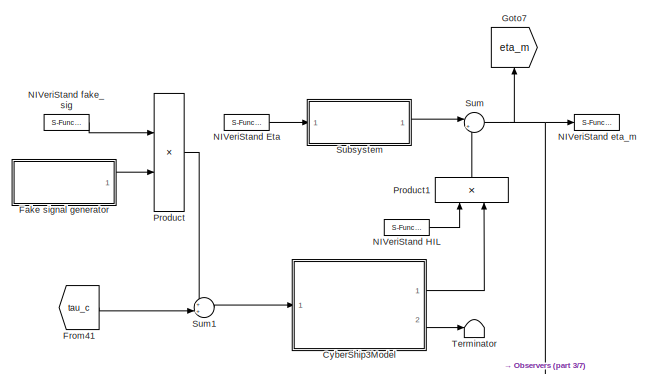
[diagram: root canvas - part 1/7, top left region]
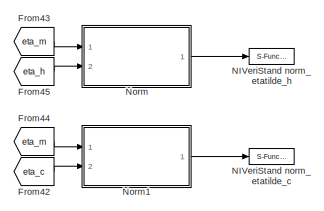
[diagram: root canvas - part 2/7, top right region]
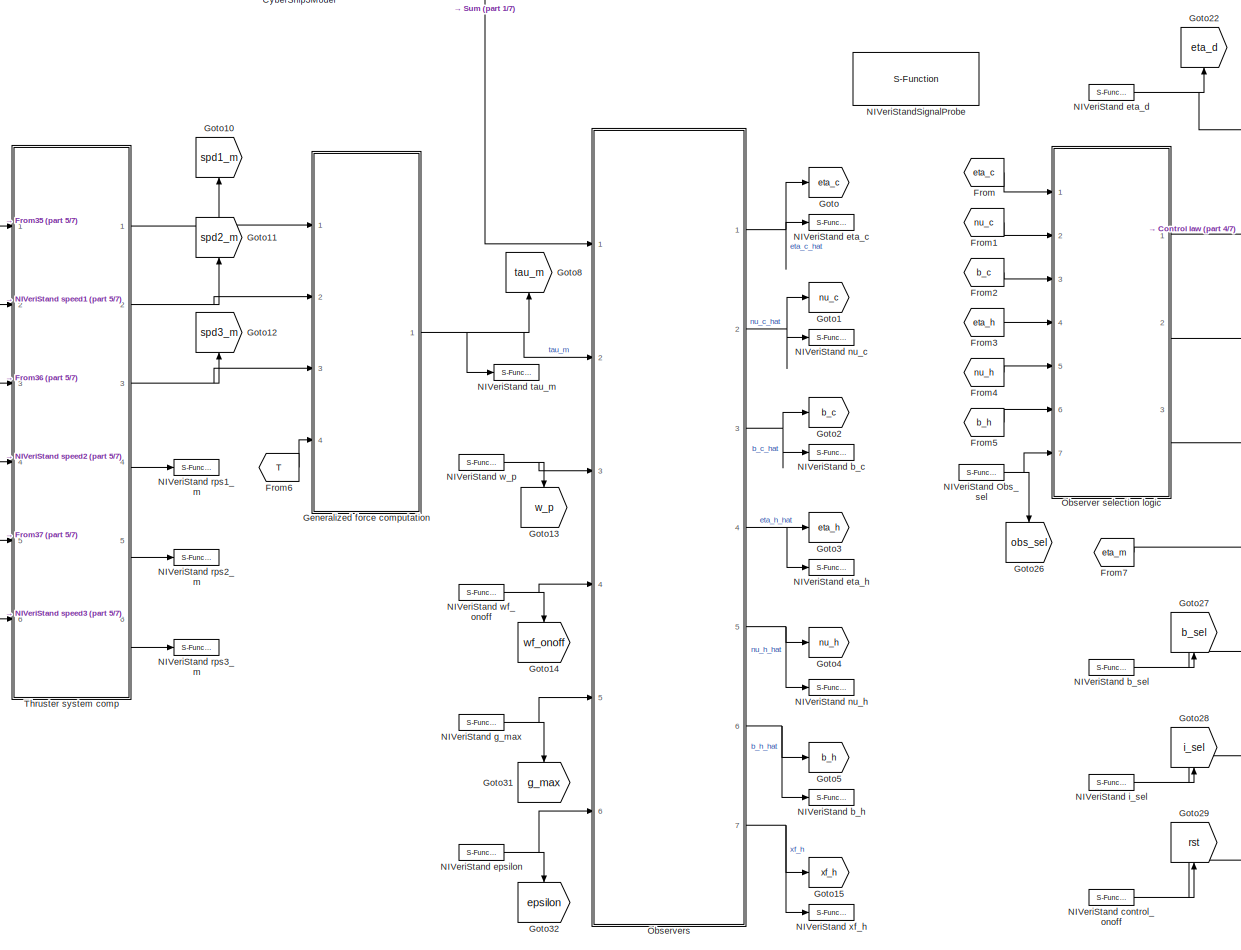
[diagram: root canvas - part 3/7, middle left region]
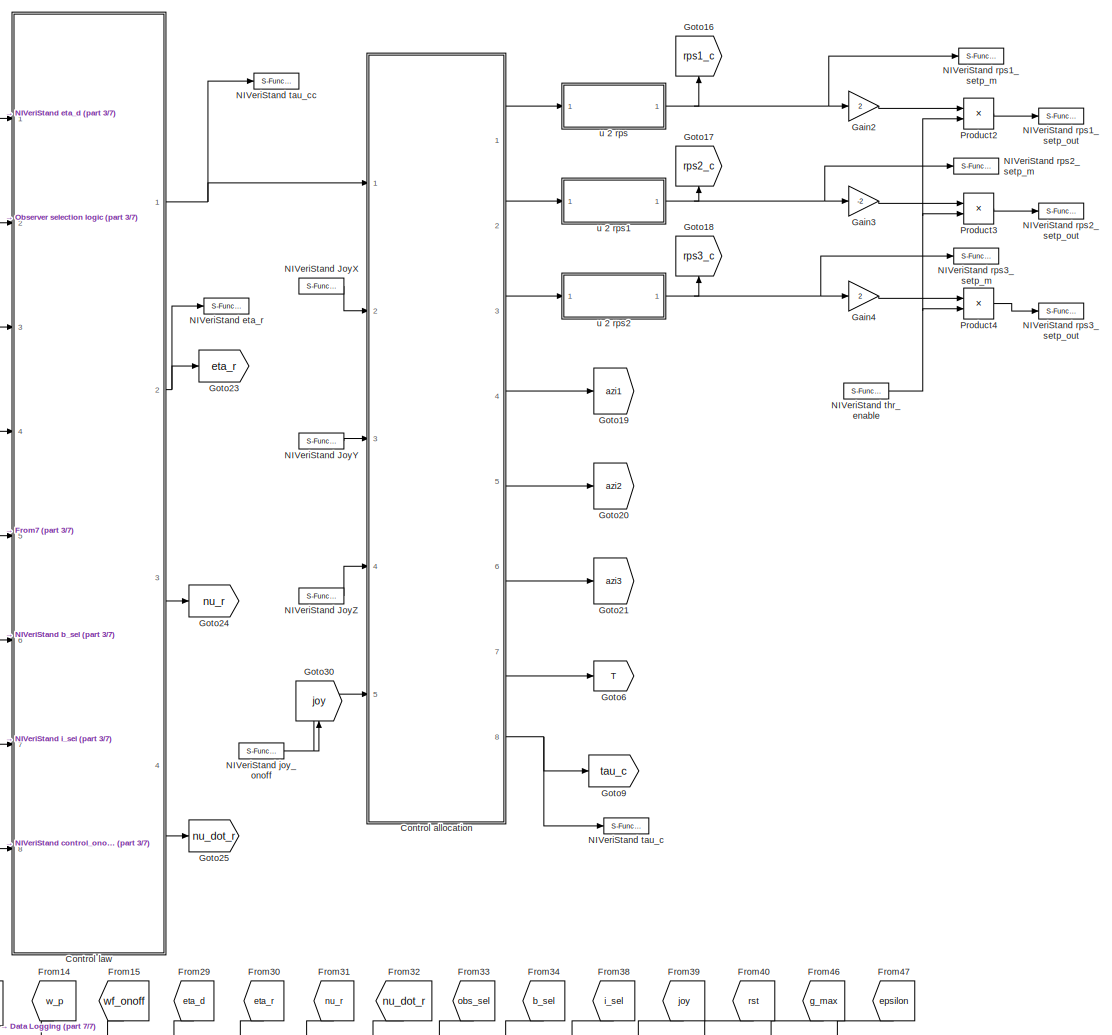
[diagram: root canvas - part 4/7, middle right region]
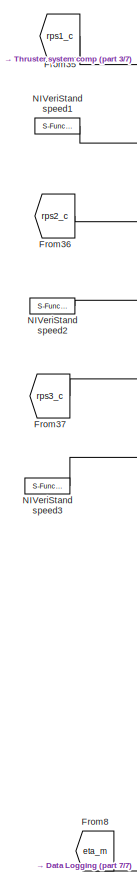
[diagram: root canvas - part 5/7, middle left region]
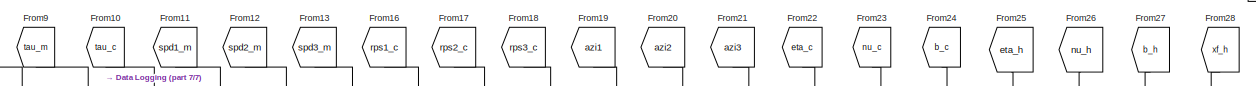
[diagram: root canvas - part 6/7, bottom left region]
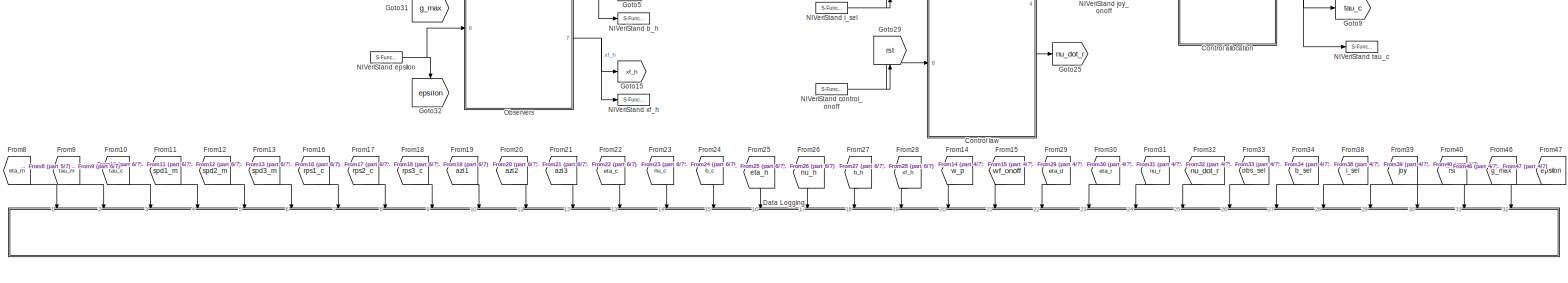
[diagram: root canvas - part 7/7, full width, bottom band]
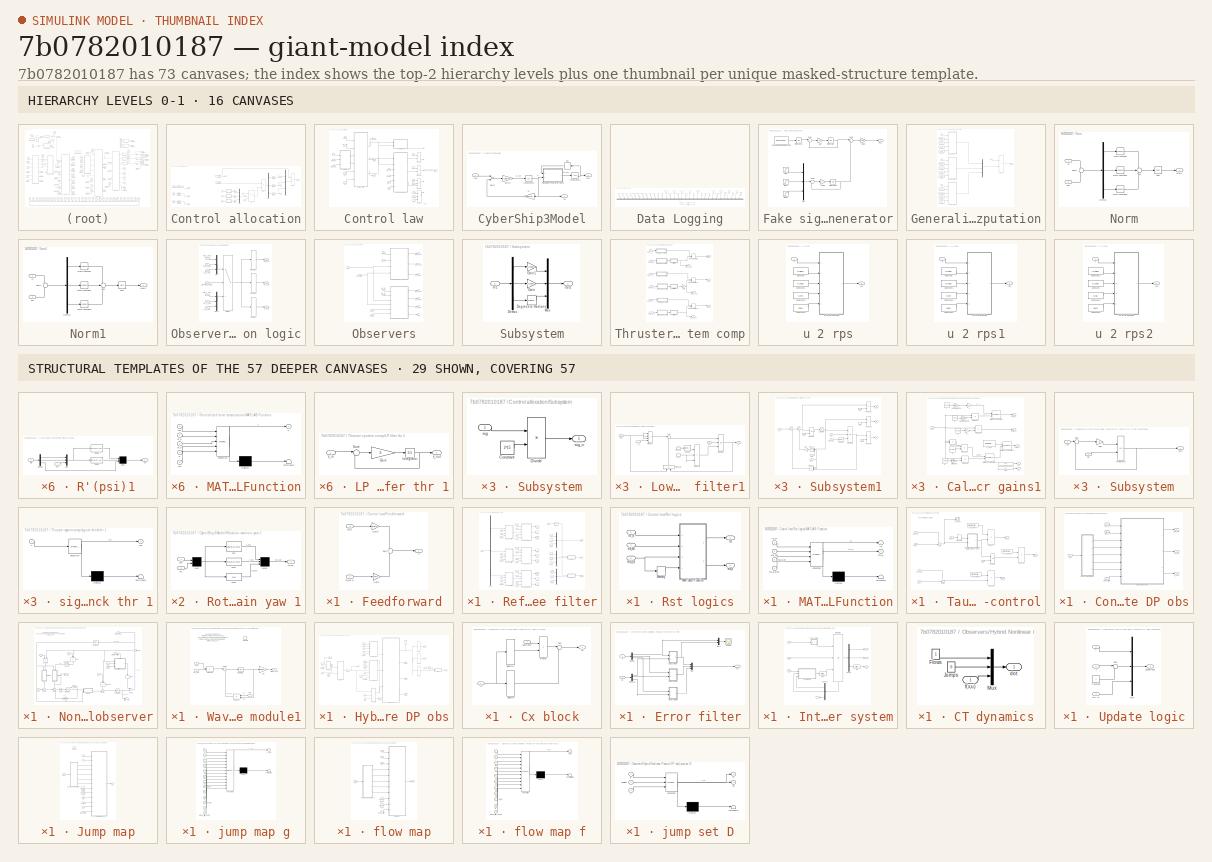
[diagram: thumbnail index - top-2 hierarchy levels (16 canvases) + 29 structural-template representatives of the remaining 57 canvases]
MODEL slx_7b0782010187
KIND model
BLOCK [SubSystem] Control allocation
  Ports = [5, 8]
  RequestExecContextInheritance = off
BLOCK [Reference] Control allocation/Degrees to Radians  REF=simulink_extras/Transformations/Degrees to
Radians
  Ports = [1, 1]
  SourceBlock = simulink_extras/Transformations/Degrees to\nRadians
  SourceType = DegreesToRadians
BLOCK [Reference] Control allocation/Degrees to Radians1  REF=simulink_extras/Transformations/Degrees to
Radians
  Ports = [1, 1]
  SourceBlock = simulink_extras/Transformations/Degrees to\nRadians
  SourceType = DegreesToRadians
BLOCK [Reference] Control allocation/Degrees to Radians2  REF=simulink_extras/Transformations/Degrees to
Radians
  Ports = [1, 1]
  SourceBlock = simulink_extras/Transformations/Degrees to\nRadians
  SourceType = DegreesToRadians
BLOCK [Demux] Control allocation/Demux
  DisplayOption = bar
  Outputs = 3
  Ports = [1, 3]
BLOCK [Gain] Control allocation/Gain
  Gain = 5
  OutDataTypeStr = Inherit: Inherit via internal rule
  ParamDataTypeStr = Inherit: Inherit via internal rule
  SaturateOnIntegerOverflow = off
BLOCK [Gain] Control allocation/Gain1
  Gain = 5
  OutDataTypeStr = Inherit: Inherit via internal rule
  ParamDataTypeStr = Inherit: Inherit via internal rule
  SaturateOnIntegerOverflow = off
BLOCK [Gain] Control allocation/Gain2
  Gain = 5
  OutDataTypeStr = Inherit: Inherit via internal rule
  ParamDataTypeStr = Inherit: Inherit via internal rule
  SaturateOnIntegerOverflow = off
BLOCK [Inport] Control allocation/JoyX
  IconDisplay = Port number
  Port = 2
  PortDimensions = 1
BLOCK [Inport] Control allocation/JoyY
  IconDisplay = Port number
  Port = 3
  PortDimensions = 1
BLOCK [Inport] Control allocation/JoyZ
  IconDisplay = Port number
  Port = 4
  PortDimensions = 1
BLOCK [Mux] Control allocation/Mux
  DisplayOption = bar
  Inputs = 3
  Ports = [3, 1]
BLOCK [Mux] Control allocation/Mux1
  DisplayOption = bar
  Inputs = 3
  Ports = [3, 1]
BLOCK [Product] Control allocation/Product
  InputSameDT = off
  Multiplication = Matrix(*)
  OutDataTypeStr = Inherit: Inherit via internal rule
  Ports = [2, 1]
  RndMeth = Floor
  SaturateOnIntegerOverflow = off
BLOCK [Product] Control allocation/Product1
  InputSameDT = off
  Multiplication = Matrix(*)
  OutDataTypeStr = Inherit: Inherit via internal rule
  Ports = [2, 1]
  RndMeth = Floor
  SaturateOnIntegerOverflow = off
BLOCK [Saturate] Control allocation/Saturation
  InputPortMap = u0
  LowerLimit = -13
  Ports = [1, 1]
  UpperLimit = 13
BLOCK [Saturate] Control allocation/Saturation1
  InputPortMap = u0
  LowerLimit = -13
  Ports = [1, 1]
  UpperLimit = 13
BLOCK [Saturate] Control allocation/Saturation2
  InputPortMap = u0
  LowerLimit = -8
  Ports = [1, 1]
  UpperLimit = 8
BLOCK [SubSystem] Control allocation/Subsystem
  Ports = [1, 1]
  RequestExecContextInheritance = off
BLOCK [Constant] Control allocation/Subsystem/Constant
  Value = 2^15
BLOCK [Product] Control allocation/Subsystem/Divide
  InputSameDT = off
  Inputs = */
  OutDataTypeStr = Inherit: Inherit via internal rule
  Ports = [2, 1]
  RndMeth = Floor
  SaturateOnIntegerOverflow = off
BLOCK [Inport] Control allocation/Subsystem/sig
  IconDisplay = Port number
BLOCK [Outport] Control allocation/Subsystem/sig_n
  IconDisplay = Port number
BLOCK [SubSystem] Control allocation/Subsystem1
  Ports = [1, 1]
  RequestExecContextInheritance = off
BLOCK [Constant] Control allocation/Subsystem1/Constant
  Value = 2^15
BLOCK [Product] Control allocation/Subsystem1/Divide
  InputSameDT = off
  Inputs = */
  OutDataTypeStr = Inherit: Inherit via internal rule
  Ports = [2, 1]
  RndMeth = Floor
  SaturateOnIntegerOverflow = off
BLOCK [Inport] Control allocation/Subsystem1/sig
  IconDisplay = Port number
BLOCK [Outport] Control allocation/Subsystem1/sig_n
  IconDisplay = Port number
BLOCK [SubSystem] Control allocation/Subsystem2
  Ports = [1, 1]
  RequestExecContextInheritance = off
BLOCK [Constant] Control allocation/Subsystem2/Constant
  Value = 2^15
BLOCK [Product] Control allocation/Subsystem2/Divide
  InputSameDT = off
  Inputs = */
  OutDataTypeStr = Inherit: Inherit via internal rule
  Ports = [2, 1]
  RndMeth = Floor
  SaturateOnIntegerOverflow = off
BLOCK [Inport] Control allocation/Subsystem2/sig
  IconDisplay = Port number
BLOCK [Outport] Control allocation/Subsystem2/sig_n
  IconDisplay = Port number
BLOCK [Switch] Control allocation/Switch
  Criteria = u2 > Threshold
  InputSameDT = off
  SaturateOnIntegerOverflow = off
BLOCK [Outport] Control allocation/T
  IconDisplay = Port number
  Port = 7
BLOCK [Constant] Control allocation/T_matrix
  Value = T_matrix
  VectorParams1D = off
BLOCK [Constant] Control allocation/T_matrix1
  Value = T_m_inv
  VectorParams1D = off
BLOCK [Outport] Control allocation/a_1
  IconDisplay = Port number
  Port = 4
BLOCK [Outport] Control allocation/a_2
  IconDisplay = Port number
  Port = 5
BLOCK [Outport] Control allocation/a_3
  IconDisplay = Port number
  Port = 6
BLOCK [Constant] Control allocation/azi thr 1
  Value = 30
BLOCK [Constant] Control allocation/azi thr 2
  Value = -30
BLOCK [Constant] Control allocation/azi thr 3
  Value = 90
BLOCK [Inport] Control allocation/joyC
  IconDisplay = Port number
  Port = 5
  PortDimensions = 1
BLOCK [Inport] Control allocation/tau_c
  IconDisplay = Port number
  PortDimensions = 3
BLOCK [Outport] Control allocation/tau_ca
  IconDisplay = Port number
  Port = 8
BLOCK [Outport] Control allocation/u_1
  IconDisplay = Port number
  PortDimensions = 1
BLOCK [Outport] Control allocation/u_2
  IconDisplay = Port number
  Port = 2
  PortDimensions = 1
BLOCK [Outport] Control allocation/u_3
  IconDisplay = Port number
  Port = 3
  PortDimensions = 1
BLOCK [SubSystem] Control law
  Ports = [8, 4]
  RequestExecContextInheritance = off
BLOCK [SubSystem] Control law/Feedforward
  Ports = [2, 1]
  RequestExecContextInheritance = off
BLOCK [Gain] Control law/Feedforward/Gain
  Gain = Control.Vessel_3_DOF.M
  Multiplication = Matrix(K*u)
BLOCK [Gain] Control law/Feedforward/Gain1
  Gain = Control.Vessel_3_DOF.D
  Multiplication = Matrix(K*u)
BLOCK [Sum] Control law/Feedforward/Sum
  IconShape = round
  InputSameDT = off
  Inputs = +|+
  OutDataTypeStr = Inherit: Inherit via internal rule
  Ports = [2, 1]
BLOCK [Outport] Control law/Feedforward/ff
  IconDisplay = Port number
BLOCK [Inport] Control law/Feedforward/nu_d
  IconDisplay = Port number
  Port = 2
BLOCK [Inport] Control law/Feedforward/nu_dot_d
  IconDisplay = Port number
BLOCK [Product] Control law/Product
  InputSameDT = off
  Inputs = 3
  OutDataTypeStr = Inherit: Inherit via internal rule
  Ports = [3, 1]
  RndMeth = Floor
  SaturateOnIntegerOverflow = off
BLOCK [Product] Control law/Product1
  InputSameDT = off
  OutDataTypeStr = Inherit: Inherit via internal rule
  Ports = [2, 1]
  RndMeth = Floor
  SaturateOnIntegerOverflow = off
BLOCK [Product] Control law/Product2
  InputSameDT = off
  OutDataTypeStr = Inherit: Inherit via internal rule
  Ports = [2, 1]
  RndMeth = Floor
  SaturateOnIntegerOverflow = off
BLOCK [Product] Control law/Product3
  InputSameDT = off
  Inputs = 3
  OutDataTypeStr = Inherit: Inherit via internal rule
  Ports = [3, 1]
  RndMeth = Floor
  SaturateOnIntegerOverflow = off
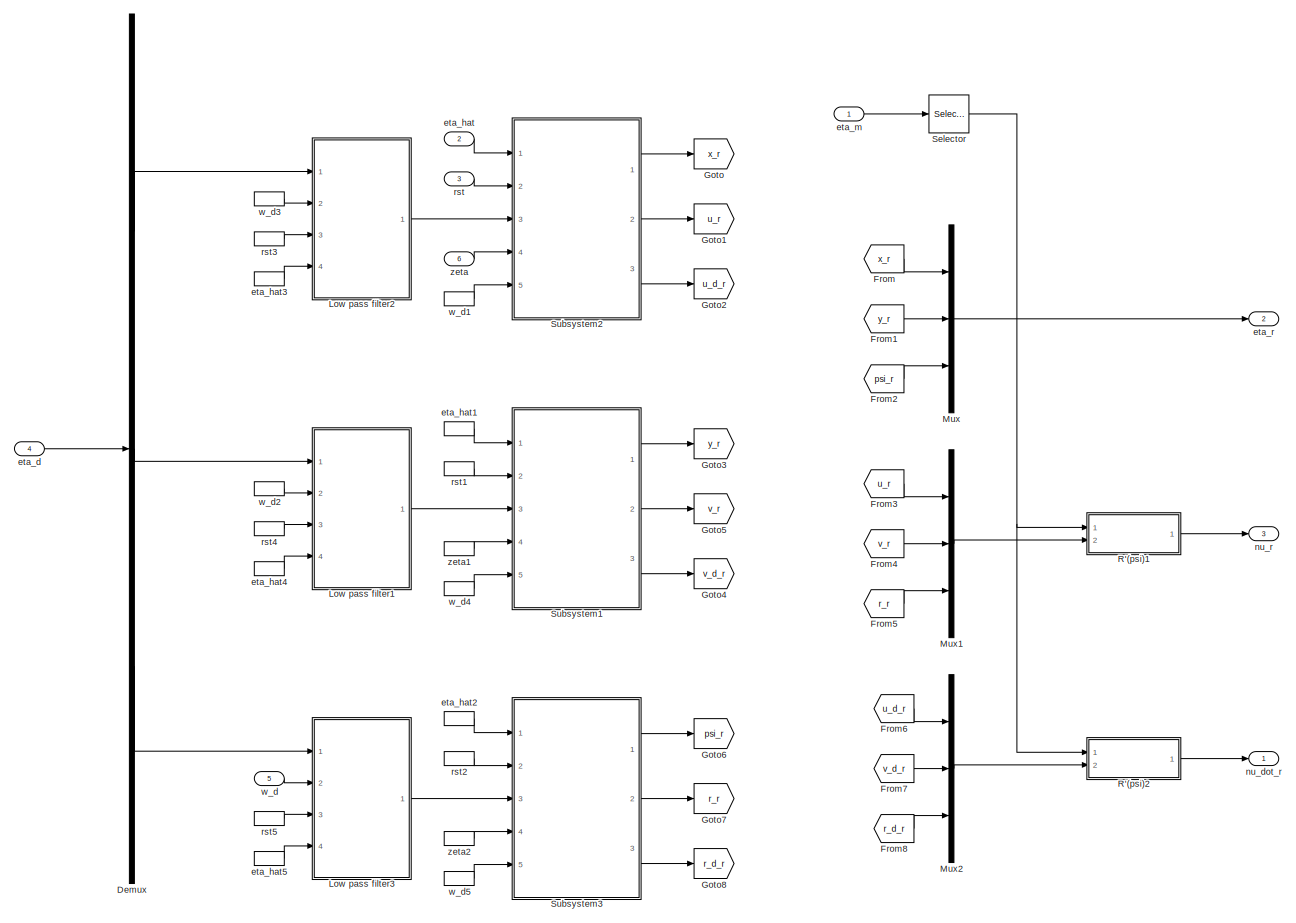
[diagram: Control law/Reference filter - part 1/1, most of the canvas]
BLOCK [SubSystem] Control law/Reference filter
  Ports = [6, 3]
  RequestExecContextInheritance = off
BLOCK [Demux] Control law/Reference filter/Demux
  DisplayOption = bar
  Outputs = 3
  Ports = [1, 3]
BLOCK [From] Control law/Reference filter/From
  GotoTag = x_r
BLOCK [From] Control law/Reference filter/From1
  GotoTag = y_r
BLOCK [From] Control law/Reference filter/From2
  GotoTag = psi_r
BLOCK [From] Control law/Reference filter/From3
  GotoTag = u_r
BLOCK [From] Control law/Reference filter/From4
  GotoTag = v_r
BLOCK [From] Control law/Reference filter/From5
  GotoTag = r_r
BLOCK [From] Control law/Reference filter/From6
  GotoTag = u_d_r
BLOCK [From] Control law/Reference filter/From7
  GotoTag = v_d_r
BLOCK [From] Control law/Reference filter/From8
  GotoTag = r_d_r
BLOCK [Goto] Control law/Reference filter/Goto
  GotoTag = x_r
BLOCK [Goto] Control law/Reference filter/Goto1
  GotoTag = u_r
BLOCK [Goto] Control law/Reference filter/Goto2
  GotoTag = u_d_r
BLOCK [Goto] Control law/Reference filter/Goto3
  GotoTag = y_r
BLOCK [Goto] Control law/Reference filter/Goto4
  GotoTag = v_d_r
BLOCK [Goto] Control law/Reference filter/Goto5
  GotoTag = v_r
BLOCK [Goto] Control law/Reference filter/Goto6
  GotoTag = psi_r
BLOCK [Goto] Control law/Reference filter/Goto7
  GotoTag = r_r
BLOCK [Goto] Control law/Reference filter/Goto8
  GotoTag = r_d_r
BLOCK [SubSystem] Control law/Reference filter/Low pass filter1
  Ports = [4, 1]
  RequestExecContextInheritance = off
BLOCK [Integrator] Control law/Reference filter/Low pass filter1/Integrator
  ExternalReset = rising
  InitialConditionSource = external
  Ports = [3, 1]
BLOCK [Product] Control law/Reference filter/Low pass filter1/Product
  InputSameDT = off
  Inputs = 4
  OutDataTypeStr = Inherit: Inherit via internal rule
  Ports = [4, 1]
  RndMeth = Floor
  SaturateOnIntegerOverflow = off
BLOCK [Product] Control law/Reference filter/Low pass filter1/Product1
  InputSameDT = off
  OutDataTypeStr = Inherit: Inherit via internal rule
  Ports = [2, 1]
  RndMeth = Floor
  SaturateOnIntegerOverflow = off
BLOCK [Product] Control law/Reference filter/Low pass filter1/Product2
  InputSameDT = off
  Inputs = 3
  OutDataTypeStr = Inherit: Inherit via internal rule
  Ports = [3, 1]
  RndMeth = Floor
  SaturateOnIntegerOverflow = off
BLOCK [Selector] Control law/Reference filter/Low pass filter1/Selector
  Indices = [2]
  InputPortWidth = 3
  Ports = [1, 1]
BLOCK [Sum] Control law/Reference filter/Low pass filter1/Sum
  IconShape = round
  InputSameDT = off
  Inputs = |+-
  OutDataTypeStr = Inherit: Inherit via internal rule
  Ports = [2, 1]
  SaturateOnIntegerOverflow = off
BLOCK [Inport] Control law/Reference filter/Low pass filter1/eta_hat
  IconDisplay = Port number
  Port = 4
BLOCK [Inport] Control law/Reference filter/Low pass filter1/rst
  IconDisplay = Port number
  Port = 3
BLOCK [Outport] Control law/Reference filter/Low pass filter1/uf
  IconDisplay = Port number
BLOCK [Inport] Control law/Reference filter/Low pass filter1/w_d
  IconDisplay = Port number
  Port = 2
BLOCK [InportShadow] Control law/Reference filter/Low pass filter1/w_d1
  IconDisplay = Port number
  Port = 2
BLOCK [Inport] Control law/Reference filter/Low pass filter1/y_d
  IconDisplay = Port number
BLOCK [SubSystem] Control law/Reference filter/Low pass filter2
  Ports = [4, 1]
  RequestExecContextInheritance = off
BLOCK [Integrator] Control law/Reference filter/Low pass filter2/Integrator
  ExternalReset = rising
  InitialConditionSource = external
  Ports = [3, 1]
BLOCK [Product] Control law/Reference filter/Low pass filter2/Product
  InputSameDT = off
  Inputs = 4
  OutDataTypeStr = Inherit: Inherit via internal rule
  Ports = [4, 1]
  RndMeth = Floor
  SaturateOnIntegerOverflow = off
BLOCK [Product] Control law/Reference filter/Low pass filter2/Product1
  InputSameDT = off
  OutDataTypeStr = Inherit: Inherit via internal rule
  Ports = [2, 1]
  RndMeth = Floor
  SaturateOnIntegerOverflow = off
BLOCK [Product] Control law/Reference filter/Low pass filter2/Product2
  InputSameDT = off
  Inputs = 3
  OutDataTypeStr = Inherit: Inherit via internal rule
  Ports = [3, 1]
  RndMeth = Floor
  SaturateOnIntegerOverflow = off
BLOCK [Selector] Control law/Reference filter/Low pass filter2/Selector
  Indices = [1]
  InputPortWidth = 3
  Ports = [1, 1]
BLOCK [Sum] Control law/Reference filter/Low pass filter2/Sum
  IconShape = round
  InputSameDT = off
  Inputs = |+-
  OutDataTypeStr = Inherit: Inherit via internal rule
  Ports = [2, 1]
  SaturateOnIntegerOverflow = off
BLOCK [Inport] Control law/Reference filter/Low pass filter2/eta_hat
  IconDisplay = Port number
  Port = 4
BLOCK [Inport] Control law/Reference filter/Low pass filter2/rst
  IconDisplay = Port number
  Port = 3
BLOCK [Outport] Control law/Reference filter/Low pass filter2/uf
  IconDisplay = Port number
BLOCK [Inport] Control law/Reference filter/Low pass filter2/w_d
  IconDisplay = Port number
  Port = 2
BLOCK [InportShadow] Control law/Reference filter/Low pass filter2/w_d1
  IconDisplay = Port number
  Port = 2
BLOCK [Inport] Control law/Reference filter/Low pass filter2/x_d
  IconDisplay = Port number
BLOCK [SubSystem] Control law/Reference filter/Low pass filter3
  Ports = [4, 1]
  RequestExecContextInheritance = off
BLOCK [Integrator] Control law/Reference filter/Low pass filter3/Integrator
  ExternalReset = rising
  InitialConditionSource = external
  Ports = [3, 1]
BLOCK [Product] Control law/Reference filter/Low pass filter3/Product
  InputSameDT = off
  Inputs = 4
  OutDataTypeStr = Inherit: Inherit via internal rule
  Ports = [4, 1]
  RndMeth = Floor
  SaturateOnIntegerOverflow = off
BLOCK [Product] Control law/Reference filter/Low pass filter3/Product1
  InputSameDT = off
  OutDataTypeStr = Inherit: Inherit via internal rule
  Ports = [2, 1]
  RndMeth = Floor
  SaturateOnIntegerOverflow = off
BLOCK [Product] Control law/Reference filter/Low pass filter3/Product2
  InputSameDT = off
  Inputs = 3
  OutDataTypeStr = Inherit: Inherit via internal rule
  Ports = [3, 1]
  RndMeth = Floor
  SaturateOnIntegerOverflow = off
BLOCK [Selector] Control law/Reference filter/Low pass filter3/Selector
  Indices = 3
  InputPortWidth = 3
  Ports = [1, 1]
BLOCK [Sum] Control law/Reference filter/Low pass filter3/Sum
  IconShape = round
  InputSameDT = off
  Inputs = |+-
  OutDataTypeStr = Inherit: Inherit via internal rule
  Ports = [2, 1]
  SaturateOnIntegerOverflow = off
BLOCK [Inport] Control law/Reference filter/Low pass filter3/eta_hat
  IconDisplay = Port number
  Port = 4
BLOCK [Inport] Control law/Reference filter/Low pass filter3/psi_d
  IconDisplay = Port number
BLOCK [Inport] Control law/Reference filter/Low pass filter3/rst
  IconDisplay = Port number
  Port = 3
BLOCK [Outport] Control law/Reference filter/Low pass filter3/uf
  IconDisplay = Port number
BLOCK [Inport] Control law/Reference filter/Low pass filter3/w_d
  IconDisplay = Port number
  Port = 2
BLOCK [InportShadow] Control law/Reference filter/Low pass filter3/w_d1
  IconDisplay = Port number
  Port = 2
BLOCK [Mux] Control law/Reference filter/Mux
  DisplayOption = bar
  Inputs = 3
  Ports = [3, 1]
BLOCK [Mux] Control law/Reference filter/Mux1
  DisplayOption = bar
  Inputs = 3
  Ports = [3, 1]
BLOCK [Mux] Control law/Reference filter/Mux2
  DisplayOption = bar
  Inputs = 3
  Ports = [3, 1]
BLOCK [SubSystem] Control law/Reference filter/R'(psi)1
  Ports = [2, 1]
  RequestExecContextInheritance = off
BLOCK [Demux] Control law/Reference filter/R'(psi)1/Demux
  Outputs = 3
  Ports = [1, 3]
BLOCK [Mux] Control law/Reference filter/R'(psi)1/Mux
  DisplayOption = bar
  Inputs = 3
  Ports = [3, 1]
BLOCK [Mux] Control law/Reference filter/R'(psi)1/Mux1
  Inputs = 3
  Ports = [3, 1]
BLOCK [Fcn] Control law/Reference filter/R'(psi)1/Row1
  Expr = cos(u(3))*u(1)+sin(u(3))*u(2)
BLOCK [Fcn] Control law/Reference filter/R'(psi)1/Row2
  Expr = -sin(u(3))*u(1)+cos(u(3))*u(2)
BLOCK [Inport] Control law/Reference filter/R'(psi)1/eta
  IconDisplay = Port number
  Port = 2
BLOCK [Outport] Control law/Reference filter/R'(psi)1/nu
  IconDisplay = Port number
BLOCK [Inport] Control law/Reference filter/R'(psi)1/psi
  IconDisplay = Port number
BLOCK [SubSystem] Control law/Reference filter/R'(psi)2
  Ports = [2, 1]
  RequestExecContextInheritance = off
BLOCK [Demux] Control law/Reference filter/R'(psi)2/Demux
  Outputs = 3
  Ports = [1, 3]
BLOCK [Mux] Control law/Reference filter/R'(psi)2/Mux
  DisplayOption = bar
  Inputs = 3
  Ports = [3, 1]
BLOCK [Mux] Control law/Reference filter/R'(psi)2/Mux1
  Inputs = 3
  Ports = [3, 1]
BLOCK [Fcn] Control law/Reference filter/R'(psi)2/Row1
  Expr = cos(u(3))*u(1)+sin(u(3))*u(2)
BLOCK [Fcn] Control law/Reference filter/R'(psi)2/Row2
  Expr = -sin(u(3))*u(1)+cos(u(3))*u(2)
BLOCK [Inport] Control law/Reference filter/R'(psi)2/eta
  IconDisplay = Port number
  Port = 2
BLOCK [Outport] Control law/Reference filter/R'(psi)2/nu
  IconDisplay = Port number
BLOCK [Inport] Control law/Reference filter/R'(psi)2/psi
  IconDisplay = Port number
BLOCK [Selector] Control law/Reference filter/Selector
  Indices = [3]
  InputPortWidth = 3
  Ports = [1, 1]
BLOCK [SubSystem] Control law/Reference filter/Subsystem1
  Ports = [5, 3]
  RequestExecContextInheritance = off
BLOCK [Gain] Control law/Reference filter/Subsystem1/Gain
  Gain = 2
  OutDataTypeStr = Inherit: Inherit via internal rule
  ParamDataTypeStr = Inherit: Inherit via internal rule
  SaturateOnIntegerOverflow = off
BLOCK [Integrator] Control law/Reference filter/Subsystem1/Integrator
  ExternalReset = rising
  Ports = [2, 1]
BLOCK [Integrator] Control law/Reference filter/Subsystem1/Integrator1
  ExternalReset = either
  InitialConditionSource = external
  Ports = [3, 1]
BLOCK [Product] Control law/Reference filter/Subsystem1/Product
  InputSameDT = off
  Inputs = 3
  OutDataTypeStr = Inherit: Inherit via internal rule
  Ports = [3, 1]
  RndMeth = Floor
  SaturateOnIntegerOverflow = off
BLOCK [Product] Control law/Reference filter/Subsystem1/Product1
  InputSameDT = off
  Inputs = 3
  OutDataTypeStr = Inherit: Inherit via internal rule
  Ports = [3, 1]
  RndMeth = Floor
  SaturateOnIntegerOverflow = off
BLOCK [Product] Control law/Reference filter/Subsystem1/Product2
  InputSameDT = off
  OutDataTypeStr = Inherit: Inherit via internal rule
  Ports = [2, 1]
  RndMeth = Floor
  SaturateOnIntegerOverflow = off
BLOCK [Product] Control law/Reference filter/Subsystem1/Product3
  InputSameDT = off
  OutDataTypeStr = Inherit: Inherit via internal rule
  Ports = [2, 1]
  RndMeth = Floor
  SaturateOnIntegerOverflow = off
BLOCK [Product] Control law/Reference filter/Subsystem1/Product4
  InputSameDT = off
  OutDataTypeStr = Inherit: Inherit via internal rule
  Ports = [2, 1]
  RndMeth = Floor
  SaturateOnIntegerOverflow = off
BLOCK [Saturate] Control law/Reference filter/Subsystem1/Saturation
  InputPortMap = u0
  LowerLimit = -0.05
  Ports = [1, 1]
  UpperLimit = 0.05
BLOCK [Selector] Control law/Reference filter/Subsystem1/Selector
  Indices = 2
  InputPortWidth = 3
  Ports = [1, 1]
BLOCK [Sum] Control law/Reference filter/Subsystem1/Sum
  IconShape = round
  InputSameDT = off
  Inputs = |+-
  OutDataTypeStr = Inherit: Inherit via internal rule
  Ports = [2, 1]
  SaturateOnIntegerOverflow = off
BLOCK [Sum] Control law/Reference filter/Subsystem1/Sum1
  IconShape = round
  InputSameDT = off
  Inputs = |+-
  OutDataTypeStr = Inherit: Inherit via internal rule
  Ports = [2, 1]
  SaturateOnIntegerOverflow = off
BLOCK [Inport] Control law/Reference filter/Subsystem1/eta_hat
  IconDisplay = Port number
BLOCK [Inport] Control law/Reference filter/Subsystem1/rst
  IconDisplay = Port number
  Port = 2
BLOCK [InportShadow] Control law/Reference filter/Subsystem1/rst1
  IconDisplay = Port number
  Port = 2
BLOCK [InportShadow] Control law/Reference filter/Subsystem1/rst2
  IconDisplay = Port number
  Port = 2
BLOCK [InportShadow] Control law/Reference filter/Subsystem1/rst3
  IconDisplay = Port number
  Port = 2
BLOCK [InportShadow] Control law/Reference filter/Subsystem1/rst4
  IconDisplay = Port number
  Port = 2
BLOCK [Inport] Control law/Reference filter/Subsystem1/uf
  IconDisplay = Port number
  Port = 3
BLOCK [Outport] Control law/Reference filter/Subsystem1/v_d_r
  IconDisplay = Port number
  Port = 3
BLOCK [Outport] Control law/Reference filter/Subsystem1/v_r
  IconDisplay = Port number
  Port = 2
BLOCK [Inport] Control law/Reference filter/Subsystem1/w_d
  IconDisplay = Port number
  Port = 5
BLOCK [Outport] Control law/Reference filter/Subsystem1/y_r
  IconDisplay = Port number
BLOCK [Inport] Control law/Reference filter/Subsystem1/zeta
  IconDisplay = Port number
  Port = 4
BLOCK [SubSystem] Control law/Reference filter/Subsystem2
  Ports = [5, 3]
  RequestExecContextInheritance = off
BLOCK [Gain] Control law/Reference filter/Subsystem2/Gain
  Gain = 2
  OutDataTypeStr = Inherit: Inherit via internal rule
  ParamDataTypeStr = Inherit: Inherit via internal rule
  SaturateOnIntegerOverflow = off
BLOCK [Integrator] Control law/Reference filter/Subsystem2/Integrator
  ExternalReset = rising
  Ports = [2, 1]
BLOCK [Integrator] Control law/Reference filter/Subsystem2/Integrator1
  ExternalReset = either
  InitialConditionSource = external
  Ports = [3, 1]
BLOCK [Product] Control law/Reference filter/Subsystem2/Product
  InputSameDT = off
  Inputs = 3
  OutDataTypeStr = Inherit: Inherit via internal rule
  Ports = [3, 1]
  RndMeth = Floor
  SaturateOnIntegerOverflow = off
BLOCK [Product] Control law/Reference filter/Subsystem2/Product1
  InputSameDT = off
  Inputs = 3
  OutDataTypeStr = Inherit: Inherit via internal rule
  Ports = [3, 1]
  RndMeth = Floor
  SaturateOnIntegerOverflow = off
BLOCK [Product] Control law/Reference filter/Subsystem2/Product2
  InputSameDT = off
  OutDataTypeStr = Inherit: Inherit via internal rule
  Ports = [2, 1]
  RndMeth = Floor
  SaturateOnIntegerOverflow = off
BLOCK [Product] Control law/Reference filter/Subsystem2/Product3
  InputSameDT = off
  OutDataTypeStr = Inherit: Inherit via internal rule
  Ports = [2, 1]
  RndMeth = Floor
  SaturateOnIntegerOverflow = off
BLOCK [Product] Control law/Reference filter/Subsystem2/Product4
  InputSameDT = off
  OutDataTypeStr = Inherit: Inherit via internal rule
  Ports = [2, 1]
  RndMeth = Floor
  SaturateOnIntegerOverflow = off
BLOCK [Saturate] Control law/Reference filter/Subsystem2/Saturation
  InputPortMap = u0
  LowerLimit = -0.05
  Ports = [1, 1]
  UpperLimit = 0.05
BLOCK [Selector] Control law/Reference filter/Subsystem2/Selector
  Indices = [1]
  InputPortWidth = 3
  Ports = [1, 1]
BLOCK [Sum] Control law/Reference filter/Subsystem2/Sum
  IconShape = round
  InputSameDT = off
  Inputs = |+-
  OutDataTypeStr = Inherit: Inherit via internal rule
  Ports = [2, 1]
  SaturateOnIntegerOverflow = off
BLOCK [Sum] Control law/Reference filter/Subsystem2/Sum1
  IconShape = round
  InputSameDT = off
  Inputs = |+-
  OutDataTypeStr = Inherit: Inherit via internal rule
  Ports = [2, 1]
  SaturateOnIntegerOverflow = off
BLOCK [Inport] Control law/Reference filter/Subsystem2/eta_hat
  IconDisplay = Port number
BLOCK [Inport] Control law/Reference filter/Subsystem2/rst
  IconDisplay = Port number
  Port = 2
BLOCK [InportShadow] Control law/Reference filter/Subsystem2/rst1
  IconDisplay = Port number
  Port = 2
BLOCK [InportShadow] Control law/Reference filter/Subsystem2/rst2
  IconDisplay = Port number
  Port = 2
BLOCK [InportShadow] Control law/Reference filter/Subsystem2/rst3
  IconDisplay = Port number
  Port = 2
BLOCK [InportShadow] Control law/Reference filter/Subsystem2/rst4
  IconDisplay = Port number
  Port = 2
BLOCK [Outport] Control law/Reference filter/Subsystem2/u_d_r
  IconDisplay = Port number
  Port = 3
BLOCK [Outport] Control law/Reference filter/Subsystem2/u_r
  IconDisplay = Port number
  Port = 2
BLOCK [Inport] Control law/Reference filter/Subsystem2/uf
  IconDisplay = Port number
  Port = 3
BLOCK [Inport] Control law/Reference filter/Subsystem2/w_d
  IconDisplay = Port number
  Port = 5
BLOCK [Outport] Control law/Reference filter/Subsystem2/x_r
  IconDisplay = Port number
BLOCK [Inport] Control law/Reference filter/Subsystem2/zeta
  IconDisplay = Port number
  Port = 4
BLOCK [SubSystem] Control law/Reference filter/Subsystem3
  Ports = [5, 3]
  RequestExecContextInheritance = off
BLOCK [Gain] Control law/Reference filter/Subsystem3/Gain
  Gain = 2
  OutDataTypeStr = Inherit: Inherit via internal rule
  ParamDataTypeStr = Inherit: Inherit via internal rule
  SaturateOnIntegerOverflow = off
BLOCK [Integrator] Control law/Reference filter/Subsystem3/Integrator
  ExternalReset = rising
  Ports = [2, 1]
BLOCK [Integrator] Control law/Reference filter/Subsystem3/Integrator1
  ExternalReset = either
  InitialConditionSource = external
  Ports = [3, 1]
BLOCK [Product] Control law/Reference filter/Subsystem3/Product
  InputSameDT = off
  Inputs = 3
  OutDataTypeStr = Inherit: Inherit via internal rule
  Ports = [3, 1]
  RndMeth = Floor
  SaturateOnIntegerOverflow = off
BLOCK [Product] Control law/Reference filter/Subsystem3/Product1
  InputSameDT = off
  Inputs = 3
  OutDataTypeStr = Inherit: Inherit via internal rule
  Ports = [3, 1]
  RndMeth = Floor
  SaturateOnIntegerOverflow = off
BLOCK [Product] Control law/Reference filter/Subsystem3/Product2
  InputSameDT = off
  OutDataTypeStr = Inherit: Inherit via internal rule
  Ports = [2, 1]
  RndMeth = Floor
  SaturateOnIntegerOverflow = off
BLOCK [Product] Control law/Reference filter/Subsystem3/Product3
  InputSameDT = off
  OutDataTypeStr = Inherit: Inherit via internal rule
  Ports = [2, 1]
  RndMeth = Floor
  SaturateOnIntegerOverflow = off
BLOCK [Product] Control law/Reference filter/Subsystem3/Product4
  InputSameDT = off
  OutDataTypeStr = Inherit: Inherit via internal rule
  Ports = [2, 1]
  RndMeth = Floor
  SaturateOnIntegerOverflow = off
BLOCK [Saturate] Control law/Reference filter/Subsystem3/Saturation
  InputPortMap = u0
  LowerLimit = -5*pi/180
  Ports = [1, 1]
  UpperLimit = 5*pi/180
BLOCK [Selector] Control law/Reference filter/Subsystem3/Selector
  Indices = 3
  InputPortWidth = 3
  Ports = [1, 1]
BLOCK [Sum] Control law/Reference filter/Subsystem3/Sum
  IconShape = round
  InputSameDT = off
  Inputs = |+-
  OutDataTypeStr = Inherit: Inherit via internal rule
  Ports = [2, 1]
  SaturateOnIntegerOverflow = off
BLOCK [Sum] Control law/Reference filter/Subsystem3/Sum1
  IconShape = round
  InputSameDT = off
  Inputs = |+-
  OutDataTypeStr = Inherit: Inherit via internal rule
  Ports = [2, 1]
  SaturateOnIntegerOverflow = off
BLOCK [Inport] Control law/Reference filter/Subsystem3/eta_hat
  IconDisplay = Port number
BLOCK [Outport] Control law/Reference filter/Subsystem3/psi_r
  IconDisplay = Port number
BLOCK [Outport] Control law/Reference filter/Subsystem3/r_d_r
  IconDisplay = Port number
  Port = 3
BLOCK [Outport] Control law/Reference filter/Subsystem3/r_r
  IconDisplay = Port number
  Port = 2
BLOCK [Inport] Control law/Reference filter/Subsystem3/rst
  IconDisplay = Port number
  Port = 2
BLOCK [InportShadow] Control law/Reference filter/Subsystem3/rst1
  IconDisplay = Port number
  Port = 2
BLOCK [InportShadow] Control law/Reference filter/Subsystem3/rst2
  IconDisplay = Port number
  Port = 2
BLOCK [InportShadow] Control law/Reference filter/Subsystem3/rst3
  IconDisplay = Port number
  Port = 2
BLOCK [InportShadow] Control law/Reference filter/Subsystem3/rst4
  IconDisplay = Port number
  Port = 2
BLOCK [Inport] Control law/Reference filter/Subsystem3/uf
  IconDisplay = Port number
  Port = 3
BLOCK [Inport] Control law/Reference filter/Subsystem3/w_d
  IconDisplay = Port number
  Port = 5
BLOCK [Inport] Control law/Reference filter/Subsystem3/zeta
  IconDisplay = Port number
  Port = 4
BLOCK [Inport] Control law/Reference filter/eta_d
  IconDisplay = Port number
  Port = 4
BLOCK [Inport] Control law/Reference filter/eta_hat
  IconDisplay = Port number
  Port = 2
BLOCK [InportShadow] Control law/Reference filter/eta_hat1
  IconDisplay = Port number
  Port = 2
BLOCK [InportShadow] Control law/Reference filter/eta_hat2
  IconDisplay = Port number
  Port = 2
BLOCK [InportShadow] Control law/Reference filter/eta_hat3
  IconDisplay = Port number
  Port = 2
BLOCK [InportShadow] Control law/Reference filter/eta_hat4
  IconDisplay = Port number
  Port = 2
BLOCK [InportShadow] Control law/Reference filter/eta_hat5
  IconDisplay = Port number
  Port = 2
BLOCK [Inport] Control law/Reference filter/eta_m
  IconDisplay = Port number
BLOCK [Outport] Control law/Reference filter/eta_r
  IconDisplay = Port number
  Port = 2
  PortDimensions = 3
BLOCK [Outport] Control law/Reference filter/nu_dot_r
  IconDisplay = Port number
  PortDimensions = 3
BLOCK [Outport] Control law/Reference filter/nu_r
  IconDisplay = Port number
  Port = 3
  PortDimensions = 3
BLOCK [Inport] Control law/Reference filter/rst
  IconDisplay = Port number
  Port = 3
BLOCK [InportShadow] Control law/Reference filter/rst1
  IconDisplay = Port number
  Port = 3
BLOCK [InportShadow] Control law/Reference filter/rst2
  IconDisplay = Port number
  Port = 3
BLOCK [InportShadow] Control law/Reference filter/rst3
  IconDisplay = Port number
  Port = 3
BLOCK [InportShadow] Control law/Reference filter/rst4
  IconDisplay = Port number
  Port = 3
BLOCK [InportShadow] Control law/Reference filter/rst5
  IconDisplay = Port number
  Port = 3
BLOCK [Inport] Control law/Reference filter/w_d
  IconDisplay = Port number
  Port = 5
BLOCK [InportShadow] Control law/Reference filter/w_d1
  IconDisplay = Port number
  Port = 5
BLOCK [InportShadow] Control law/Reference filter/w_d2
  IconDisplay = Port number
  Port = 5
BLOCK [InportShadow] Control law/Reference filter/w_d3
  IconDisplay = Port number
  Port = 5
BLOCK [InportShadow] Control law/Reference filter/w_d4
  IconDisplay = Port number
  Port = 5
BLOCK [InportShadow] Control law/Reference filter/w_d5
  IconDisplay = Port number
  Port = 5
BLOCK [Inport] Control law/Reference filter/zeta
  IconDisplay = Port number
  Port = 6
BLOCK [InportShadow] Control law/Reference filter/zeta1
  IconDisplay = Port number
  Port = 6
BLOCK [InportShadow] Control law/Reference filter/zeta2
  IconDisplay = Port number
  Port = 6
BLOCK [SubSystem] Control law/Rst logics
  Ports = [3, 2]
  RequestExecContextInheritance = off
BLOCK [SubSystem] Control law/Rst logics/MATLAB Function
  ErrorFcn = Stateflow.Translate.translate
  PermitHierarchicalResolution = ExplicitOnly
  Ports = [4, 2]
  RequestExecContextInheritance = off
  SFBlockType = MATLAB Function
  TreatAsAtomicUnit = on
BLOCK [Demux] Control law/Rst logics/MATLAB Function/ Demux 
  Outputs = 1
  Ports = [1, 1]
BLOCK [S-Function] Control law/Rst logics/MATLAB Function/ SFunction 
  EnableBusSupport = on
  FunctionName = sf_sfun
  PortCounts = [4 3]
  Ports = [4, 3]
  Tag = Stateflow S-Function Controller_CS3 7
BLOCK [Terminator] Control law/Rst logics/MATLAB Function/ Terminator 
BLOCK [Outport] Control law/Rst logics/MATLAB Function/eta_d
  IconDisplay = Port number
  Port = 2
BLOCK [Inport] Control law/Rst logics/MATLAB Function/eta_d_in
  IconDisplay = Port number
  Port = 3
BLOCK [Inport] Control law/Rst logics/MATLAB Function/eta_d_prev
  IconDisplay = Port number
  Port = 4
BLOCK [Inport] Control law/Rst logics/MATLAB Function/eta_hat
  IconDisplay = Port number
  Port = 2
BLOCK [Outport] Control law/Rst logics/MATLAB Function/rst
  IconDisplay = Port number
BLOCK [Inport] Control law/Rst logics/MATLAB Function/rst_in
  IconDisplay = Port number
BLOCK [Memory] Control law/Rst logics/Memory
BLOCK [Outport] Control law/Rst logics/eta_d
  IconDisplay = Port number
  Port = 2
  PortDimensions = 3
BLOCK [Inport] Control law/Rst logics/eta_d_st
  IconDisplay = Port number
  Port = 3
BLOCK [Inport] Control law/Rst logics/eta_hat
  IconDisplay = Port number
  Port = 2
BLOCK [Outport] Control law/Rst logics/rst
  IconDisplay = Port number
  PortDimensions = 1
BLOCK [Inport] Control law/Rst logics/rst_st
  IconDisplay = Port number
BLOCK [Sum] Control law/Sum
  InputSameDT = off
  Inputs = +----
  OutDataTypeStr = Inherit: Inherit via internal rule
  Ports = [5, 1]
BLOCK [SubSystem] Control law/Tau PD-control
  Ports = [6, 3]
  RequestExecContextInheritance = off
BLOCK [Constant] Control law/Tau PD-control/Constant
  Value = diag(Control.PID.Kp)
BLOCK [Constant] Control law/Tau PD-control/Constant1
  Value = diag(Control.PID.Kd)
BLOCK [Constant] Control law/Tau PD-control/Constant2
  Value = diag(Control.PID.Ki)
BLOCK [SubSystem] Control law/Tau PD-control/GNC: "Transposed rotation matrix yaw: RTz_psi"
  Ports = [2, 1]
  RequestExecContextInheritance = off
BLOCK [Fcn] Control law/Tau PD-control/GNC: "Transposed rotation matrix yaw: RTz_psi"/Fcn
  Expr = cos(u(1))*u(2)+sin(u(1))*u(3)
BLOCK [Fcn] Control law/Tau PD-control/GNC: "Transposed rotation matrix yaw: RTz_psi"/Fcn1
  Expr = -sin(u(1))*u(2)+cos(u(1))*u(3)
BLOCK [Fcn] Control law/Tau PD-control/GNC: "Transposed rotation matrix yaw: RTz_psi"/Fcn2
  Expr = u(4)
BLOCK [Mux] Control law/Tau PD-control/GNC: "Transposed rotation matrix yaw: RTz_psi"/Mux2
  Inputs = 2
  Ports = [2, 1]
BLOCK [Mux] Control law/Tau PD-control/GNC: "Transposed rotation matrix yaw: RTz_psi"/Mux3
  Inputs = 3
  Ports = [3, 1]
BLOCK [Outport] Control law/Tau PD-control/GNC: "Transposed rotation matrix yaw: RTz_psi"/R_T*nu
  IconDisplay = Port number
BLOCK [Inport] Control law/Tau PD-control/GNC: "Transposed rotation matrix yaw: RTz_psi"/nu
  IconDisplay = Port number
  Port = 2
  PortDimensions = 3
BLOCK [Inport] Control law/Tau PD-control/GNC: "Transposed rotation matrix yaw: RTz_psi"/psi
  IconDisplay = Port number
BLOCK [Integrator] Control law/Tau PD-control/Integrator
  ExternalReset = rising
  LimitOutput = on
  LowerSaturationLimit = -inv(diag(Control.PID.Ki))*[4 4 4]'
  Ports = [2, 1]
  UpperSaturationLimit = inv(diag(Control.PID.Ki))*[4 4 4]'
BLOCK [Product] Control law/Tau PD-control/Product
  InputSameDT = off
  Multiplication = Matrix(*)
  OutDataTypeStr = Inherit: Inherit via internal rule
  Ports = [2, 1]
  RndMeth = Floor
  SaturateOnIntegerOverflow = off
BLOCK [Product] Control law/Tau PD-control/Product1
  InputSameDT = off
  Multiplication = Matrix(*)
  OutDataTypeStr = Inherit: Inherit via internal rule
  Ports = [2, 1]
  RndMeth = Floor
  SaturateOnIntegerOverflow = off
BLOCK [Product] Control law/Tau PD-control/Product2
  InputSameDT = off
  Multiplication = Matrix(*)
  OutDataTypeStr = Inherit: Inherit via internal rule
  Ports = [2, 1]
  RndMeth = Floor
  SaturateOnIntegerOverflow = off
BLOCK [Scope] Control law/Tau PD-control/Scope7
  Floating = off
  LimitDataPoints = off
  NumInputPorts = 1
  Ports = [1]
  SaveName = ScopeData27
  ShowLegends = off
  YMax = 0.009
  YMin = -0.012
  ZoomMode = xonly
BLOCK [Selector] Control law/Tau PD-control/Selector2
  Indices = [3]
  InputPortWidth = 3
  Ports = [1, 1]
BLOCK [Sum] Control law/Tau PD-control/Sum
  IconShape = round
  InputSameDT = off
  Inputs = +-|
  OutDataTypeStr = Inherit: Inherit via internal rule
  Ports = [2, 1]
BLOCK [Sum] Control law/Tau PD-control/Sum1
  IconShape = round
  InputSameDT = off
  Inputs = +-|
  OutDataTypeStr = Inherit: Inherit via internal rule
  Ports = [2, 1]
BLOCK [Inport] Control law/Tau PD-control/eta_hat
  IconDisplay = Port number
  Port = 3
BLOCK [Inport] Control law/Tau PD-control/eta_m
  IconDisplay = Port number
  Port = 5
BLOCK [Inport] Control law/Tau PD-control/eta_r
  IconDisplay = Port number
BLOCK [Inport] Control law/Tau PD-control/nu_hat
  IconDisplay = Port number
  Port = 4
BLOCK [Inport] Control law/Tau PD-control/nu_r
  IconDisplay = Port number
  Port = 2
BLOCK [Inport] Control law/Tau PD-control/rst
  IconDisplay = Port number
  Port = 6
BLOCK [Outport] Control law/Tau PD-control/tau_d
  IconDisplay = Port number
  Port = 2
  PortDimensions = 3
BLOCK [Outport] Control law/Tau PD-control/tau_i
  IconDisplay = Port number
  Port = 3
  PortDimensions = 3
BLOCK [Outport] Control law/Tau PD-control/tau_p
  IconDisplay = Port number
  PortDimensions = 3
BLOCK [Inport] Control law/b_hat
  IconDisplay = Port number
  Port = 4
BLOCK [Inport] Control law/b_select
  IconDisplay = Port number
  Port = 6
BLOCK [Inport] Control law/eta_desired
  IconDisplay = Port number
BLOCK [Inport] Control law/eta_hat
  IconDisplay = Port number
  Port = 2
BLOCK [InportShadow] Control law/eta_hat1
  IconDisplay = Port number
  Port = 2
BLOCK [InportShadow] Control law/eta_hat2
  IconDisplay = Port number
  Port = 2
BLOCK [Inport] Control law/eta_m
  IconDisplay = Port number
  Port = 5
BLOCK [InportShadow] Control law/eta_m1
  IconDisplay = Port number
  Port = 5
BLOCK [Outport] Control law/eta_r
  IconDisplay = Port number
  Port = 2
BLOCK [Inport] Control law/i_select
  IconDisplay = Port number
  Port = 7
BLOCK [Outport] Control law/nu_dot_r
  IconDisplay = Port number
  Port = 4
BLOCK [Inport] Control law/nu_hat
  IconDisplay = Port number
  Port = 3
BLOCK [Outport] Control law/nu_r
  IconDisplay = Port number
  Port = 3
BLOCK [Inport] Control law/rst
  IconDisplay = Port number
  Port = 8
BLOCK [InportShadow] Control law/rst1
  IconDisplay = Port number
  Port = 8
BLOCK [InportShadow] Control law/rst2
  IconDisplay = Port number
  Port = 8
BLOCK [InportShadow] Control law/rst3
  IconDisplay = Port number
  Port = 8
BLOCK [InportShadow] Control law/rst4
  IconDisplay = Port number
  Port = 8
BLOCK [InportShadow] Control law/rst5
  IconDisplay = Port number
  Port = 8
BLOCK [Outport] Control law/tau_c
  IconDisplay = Port number
BLOCK [Constant] Control law/w_d
  Value = 0.05
BLOCK [Constant] Control law/zeta
  Value = 2
BLOCK [SubSystem] CyberShip3Model
  AncestorBlock = marine_gnc/Examples/Vessels/CyberShipII
  LoadFcn = initCS2
  Ports = [1, 2]
  RequestExecContextInheritance = off
BLOCK [Gain] CyberShip3Model/D
  Gain = Control.VessObs.D
  Multiplication = Matrix(K*u)
BLOCK [Integrator] CyberShip3Model/Integrator1
  Ports = [1, 1]
BLOCK [Integrator] CyberShip3Model/Integrator2
  Ports = [1, 1]
BLOCK [SubSystem] CyberShip3Model/Rotation matrix in yaw 1
  AncestorBlock = marine_gnc/Models/ Kinematics/Rotation matrix\nin yaw
  Ports = [2, 1]
  RequestExecContextInheritance = off
BLOCK [Fcn] CyberShip3Model/Rotation matrix in yaw 1/Fcn
  Expr = cos(u(1))*u(2)-sin(u(1))*u(3)
BLOCK [Fcn] CyberShip3Model/Rotation matrix in yaw 1/Fcn1
  Expr = sin(u(1))*u(2)+cos(u(1))*u(3)
BLOCK [Fcn] CyberShip3Model/Rotation matrix in yaw 1/Fcn2
  Expr = u(4)
BLOCK [Mux] CyberShip3Model/Rotation matrix in yaw 1/Mux
  Inputs = 2
  Ports = [2, 1]
BLOCK [Mux] CyberShip3Model/Rotation matrix in yaw 1/Mux1
  Inputs = 3
  Ports = [3, 1]
BLOCK [Outport] CyberShip3Model/Rotation matrix in yaw 1/R*nu
  IconDisplay = Port number
BLOCK [Inport] CyberShip3Model/Rotation matrix in yaw 1/nu
  IconDisplay = Port number
  Port = 2
BLOCK [Inport] CyberShip3Model/Rotation matrix in yaw 1/psi
  IconDisplay = Port number
BLOCK [Sum] CyberShip3Model/Sum3
  Inputs = +-
  Ports = [2, 1]
BLOCK [Outport] CyberShip3Model/eta
  IconDisplay = Port number
BLOCK [Gain] CyberShip3Model/inv(M)
  Gain = Control.VessObs.M_inv
  Multiplication = Matrix(K*u)
BLOCK [Outport] CyberShip3Model/nu
  IconDisplay = Port number
  Port = 2
BLOCK [Selector] CyberShip3Model/psi
  Indices = [3]
  InputPortWidth = 3
  Ports = [1, 1]
BLOCK [Inport] CyberShip3Model/tau
  IconDisplay = Port number
BLOCK [SubSystem] Data Logging
  Ports = [32]
  RequestExecContextInheritance = off
BLOCK [Mux] Data Logging/Mux
  DisplayOption = bar
  Inputs = 32
  Ports = [32, 1]
BLOCK [ToFile] Data Logging/To File
  Filename = Hybrid_obs_exp_CS3.mat
  MatrixName = data
  Ports = [1]
  SampleTime = 0.01
BLOCK [Inport] Data Logging/azi1
  IconDisplay = Port number
  Port = 10
BLOCK [Inport] Data Logging/azi2
  IconDisplay = Port number
  Port = 11
BLOCK [Inport] Data Logging/azi3
  IconDisplay = Port number
  Port = 12
BLOCK [Inport] Data Logging/b_c_hat
  IconDisplay = Port number
  Port = 15
BLOCK [Inport] Data Logging/b_h_hat
  IconDisplay = Port number
  Port = 18
BLOCK [Inport] Data Logging/b_select
  IconDisplay = Port number
  Port = 27
BLOCK [Inport] Data Logging/epsilon
  IconDisplay = Port number
  Port = 32
BLOCK [Inport] Data Logging/eta_c_hat
  IconDisplay = Port number
  Port = 13
BLOCK [Inport] Data Logging/eta_d
  IconDisplay = Port number
  Port = 22
BLOCK [Inport] Data Logging/eta_h_hat
  IconDisplay = Port number
  Port = 16
BLOCK [Inport] Data Logging/eta_m
  IconDisplay = Port number
BLOCK [Inport] Data Logging/eta_r
  IconDisplay = Port number
  Port = 23
BLOCK [Inport] Data Logging/g_max
  IconDisplay = Port number
  Port = 31
BLOCK [Inport] Data Logging/i_select
  IconDisplay = Port number
  Port = 28
BLOCK [Inport] Data Logging/joystick
  IconDisplay = Port number
  Port = 29
BLOCK [Inport] Data Logging/nu_c_hat
  IconDisplay = Port number
  Port = 14
BLOCK [Inport] Data Logging/nu_dot_r
  IconDisplay = Port number
  Port = 25
BLOCK [Inport] Data Logging/nu_h_hat
  IconDisplay = Port number
  Port = 17
BLOCK [Inport] Data Logging/nu_r
  IconDisplay = Port number
  Port = 24
BLOCK [Inport] Data Logging/obs_select
  IconDisplay = Port number
  Port = 26
BLOCK [Inport] Data Logging/rps1_c
  IconDisplay = Port number
  Port = 7
BLOCK [Inport] Data Logging/rps2_c
  IconDisplay = Port number
  Port = 8
BLOCK [Inport] Data Logging/rps3_c
  IconDisplay = Port number
  Port = 9
BLOCK [Inport] Data Logging/rst
  IconDisplay = Port number
  Port = 30
BLOCK [Inport] Data Logging/spd1_m
  IconDisplay = Port number
  Port = 4
BLOCK [Inport] Data Logging/spd2_m
  IconDisplay = Port number
  Port = 5
BLOCK [Inport] Data Logging/spd3_m
  IconDisplay = Port number
  Port = 6
BLOCK [Inport] Data Logging/tau_c
  IconDisplay = Port number
  Port = 3
BLOCK [Inport] Data Logging/tau_m
  IconDisplay = Port number
  Port = 2
BLOCK [Inport] Data Logging/w_p
  IconDisplay = Port number
  Port = 20
BLOCK [Inport] Data Logging/wave_filter
  IconDisplay = Port number
  Port = 21
BLOCK [Inport] Data Logging/xf_h
  IconDisplay = Port number
  Port = 19
BLOCK [SubSystem] Fake signal generator
  Ports = [0, 1]
  RequestExecContextInheritance = off
BLOCK [Gain] Fake signal generator/Gain
  Gain = 0.5
  OutDataTypeStr = Inherit: Inherit via internal rule
  ParamDataTypeStr = Inherit: Inherit via internal rule
  SaturateOnIntegerOverflow = off
BLOCK [Gain] Fake signal generator/Gain1
  Gain = diag([1 1 0.1])
  Multiplication = Matrix(K*u)
  OutDataTypeStr = Inherit: Inherit via internal rule
  ParamDataTypeStr = Inherit: Inherit via internal rule
  SaturateOnIntegerOverflow = off
BLOCK [Gain] Fake signal generator/Gain2
  Gain = 0
  OutDataTypeStr = Inherit: Inherit via internal rule
  ParamDataTypeStr = Inherit: Inherit via internal rule
  SaturateOnIntegerOverflow = off
BLOCK [Reference] Fake signal generator/Gaussian Noise Generator  REF=commnoisgen2/Gaussian Noise
Generator
  Ports = [0, 1]
  SourceBlock = commnoisgen2/Gaussian Noise\nGenerator
  SourceType = Gaussian Noise Generator
  Ts = 0.01
  d = [1 1 0.25]'
  frameBased = off
  m = [0 0 0]'
  orient = off
  outDataType = double
  s = [41 42 45]'
  sampPerFrame = 1
BLOCK [Integrator] Fake signal generator/Integrator
  Ports = [1, 1]
BLOCK [Integrator] Fake signal generator/Integrator1
  Ports = [1, 1]
BLOCK [Integrator] Fake signal generator/Integrator2
  Ports = [1, 1]
BLOCK [Mux] Fake signal generator/Mux
  DisplayOption = bar
  Inputs = 3
  Ports = [3, 1]
BLOCK [Step] Fake signal generator/Step
  SampleTime = 0
  Time = 20
BLOCK [Step] Fake signal generator/Step1
  SampleTime = 0
  Time = 30
BLOCK [Step] Fake signal generator/Step2
  After = 25*pi/180
  SampleTime = 0
  Time = 30
BLOCK [Sum] Fake signal generator/Sum
  IconShape = round
  InputSameDT = off
  Inputs = |+-
  OutDataTypeStr = Inherit: Inherit via internal rule
  Ports = [2, 1]
  SaturateOnIntegerOverflow = off
BLOCK [Sum] Fake signal generator/Sum1
  IconShape = round
  InputSameDT = off
  Inputs = |++
  OutDataTypeStr = Inherit: Inherit via internal rule
  Ports = [2, 1]
  SaturateOnIntegerOverflow = off
BLOCK [Sum] Fake signal generator/Sum2
  IconShape = round
  InputSameDT = off
  Inputs = |+-
  OutDataTypeStr = Inherit: Inherit via internal rule
  Ports = [2, 1]
  SaturateOnIntegerOverflow = off
BLOCK [Outport] Fake signal generator/eta_f
  IconDisplay = Port number
BLOCK [From] From
  GotoTag = eta_c
BLOCK [From] From1
  GotoTag = nu_c
BLOCK [From] From10
  GotoTag = tau_c
BLOCK [From] From11
  GotoTag = spd1_m
BLOCK [From] From12
  GotoTag = spd2_m
BLOCK [From] From13
  GotoTag = spd3_m
BLOCK [From] From14
  GotoTag = w_p
BLOCK [From] From15
  GotoTag = wf_onoff
BLOCK [From] From16
  GotoTag = rps1_c
BLOCK [From] From17
  GotoTag = rps2_c
BLOCK [From] From18
  GotoTag = rps3_c
BLOCK [From] From19
  GotoTag = azi1
BLOCK [From] From2
  GotoTag = b_c
BLOCK [From] From20
  GotoTag = azi2
BLOCK [From] From21
  GotoTag = azi3
BLOCK [From] From22
  GotoTag = eta_c
BLOCK [From] From23
  GotoTag = nu_c
BLOCK [From] From24
  GotoTag = b_c
BLOCK [From] From25
  GotoTag = eta_h
BLOCK [From] From26
  GotoTag = nu_h
BLOCK [From] From27
  GotoTag = b_h
BLOCK [From] From28
  GotoTag = xf_h
BLOCK [From] From29
  GotoTag = eta_d
BLOCK [From] From3
  GotoTag = eta_h
BLOCK [From] From30
  GotoTag = eta_r
BLOCK [From] From31
  GotoTag = nu_r
BLOCK [From] From32
  GotoTag = nu_dot_r
BLOCK [From] From33
  GotoTag = obs_sel
BLOCK [From] From34
  GotoTag = b_sel
BLOCK [From] From35
  GotoTag = rps1_c
BLOCK [From] From36
  GotoTag = rps2_c
BLOCK [From] From37
  GotoTag = rps3_c
BLOCK [From] From38
  GotoTag = i_sel
BLOCK [From] From39
  GotoTag = joy
BLOCK [From] From4
  GotoTag = nu_h
BLOCK [From] From40
  GotoTag = rst
BLOCK [From] From41
  GotoTag = tau_c
BLOCK [From] From42
  GotoTag = eta_c
BLOCK [From] From43
  GotoTag = eta_m
BLOCK [From] From44
  GotoTag = eta_m
BLOCK [From] From45
  GotoTag = eta_h
BLOCK [From] From46
  GotoTag = g_max
BLOCK [From] From47
  GotoTag = epsilon
BLOCK [From] From5
  GotoTag = b_h
BLOCK [From] From6
  GotoTag = T
BLOCK [From] From7
  GotoTag = eta_m
BLOCK [From] From8
  GotoTag = eta_m
BLOCK [From] From9
  GotoTag = tau_m
BLOCK [Gain] Gain2
  Gain = 2
  OutDataTypeStr = Inherit: Inherit via internal rule
  ParamDataTypeStr = Inherit: Inherit via internal rule
  SaturateOnIntegerOverflow = off
BLOCK [Gain] Gain3
  Gain = -2
  OutDataTypeStr = Inherit: Inherit via internal rule
  ParamDataTypeStr = Inherit: Inherit via internal rule
  SaturateOnIntegerOverflow = off
BLOCK [Gain] Gain4
  Gain = 2
  OutDataTypeStr = Inherit: Inherit via internal rule
  ParamDataTypeStr = Inherit: Inherit via internal rule
  SaturateOnIntegerOverflow = off
BLOCK [SubSystem] Generalized force computation
  Ports = [4, 1]
  RequestExecContextInheritance = off
BLOCK [Constant] Generalized force computation/Constant
  Value = 0.3507
BLOCK [Constant] Generalized force computation/Constant1
  Value = 0.2423
BLOCK [Constant] Generalized force computation/Constant10
  Value = 0.05
BLOCK [Constant] Generalized force computation/Constant11
  Value = 1024
BLOCK [Constant] Generalized force computation/Constant2
  Value = 0.09
BLOCK [Constant] Generalized force computation/Constant3
  Value = 1024
BLOCK [Constant] Generalized force computation/Constant4
  Value = 0.3464
BLOCK [Constant] Generalized force computation/Constant5
  Value = 0.2402
BLOCK [Constant] Generalized force computation/Constant6
  Value = 0.09
BLOCK [Constant] Generalized force computation/Constant7
  Value = 1024
BLOCK [Constant] Generalized force computation/Constant8
  Value = 0.1790
BLOCK [Constant] Generalized force computation/Constant9
  Value = 0.2383
BLOCK [SubSystem] Generalized force computation/MATLAB Function
  ErrorFcn = Stateflow.Translate.translate
  PermitHierarchicalResolution = ExplicitOnly
  Ports = [5, 1]
  RequestExecContextInheritance = off
  SFBlockType = MATLAB Function
  TreatAsAtomicUnit = on
BLOCK [Demux] Generalized force computation/MATLAB Function/ Demux 
  Outputs = 1
  Ports = [1, 1]
BLOCK [S-Function] Generalized force computation/MATLAB Function/ SFunction 
  EnableBusSupport = on
  FunctionName = sf_sfun
  PortCounts = [5 2]
  Ports = [5, 2]
  Tag = Stateflow S-Function Controller_CS3 11
BLOCK [Terminator] Generalized force computation/MATLAB Function/ Terminator 
BLOCK [Inport] Generalized force computation/MATLAB Function/Kt_n
  IconDisplay = Port number
  Port = 3
BLOCK [Inport] Generalized force computation/MATLAB Function/Kt_p
  IconDisplay = Port number
  Port = 2
BLOCK [Inport] Generalized force computation/MATLAB Function/d
  IconDisplay = Port number
  Port = 4
BLOCK [Inport] Generalized force computation/MATLAB Function/rho
  IconDisplay = Port number
  Port = 5
BLOCK [Inport] Generalized force computation/MATLAB Function/rps
  IconDisplay = Port number
BLOCK [Outport] Generalized force computation/MATLAB Function/u
  IconDisplay = Port number
BLOCK [SubSystem] Generalized force computation/MATLAB Function1
  ErrorFcn = Stateflow.Translate.translate
  PermitHierarchicalResolution = ExplicitOnly
  Ports = [5, 1]
  RequestExecContextInheritance = off
  SFBlockType = MATLAB Function
  TreatAsAtomicUnit = on
BLOCK [Demux] Generalized force computation/MATLAB Function1/ Demux 
  Outputs = 1
  Ports = [1, 1]
BLOCK [S-Function] Generalized force computation/MATLAB Function1/ SFunction 
  EnableBusSupport = on
  FunctionName = sf_sfun
  PortCounts = [5 2]
  Ports = [5, 2]
  Tag = Stateflow S-Function Controller_CS3 12
BLOCK [Terminator] Generalized force computation/MATLAB Function1/ Terminator 
BLOCK [Inport] Generalized force computation/MATLAB Function1/Kt_n
  IconDisplay = Port number
  Port = 3
BLOCK [Inport] Generalized force computation/MATLAB Function1/Kt_p
  IconDisplay = Port number
  Port = 2
BLOCK [Inport] Generalized force computation/MATLAB Function1/d
  IconDisplay = Port number
  Port = 4
BLOCK [Inport] Generalized force computation/MATLAB Function1/rho
  IconDisplay = Port number
  Port = 5
BLOCK [Inport] Generalized force computation/MATLAB Function1/rps
  IconDisplay = Port number
BLOCK [Outport] Generalized force computation/MATLAB Function1/u
  IconDisplay = Port number
BLOCK [SubSystem] Generalized force computation/MATLAB Function2
  ErrorFcn = Stateflow.Translate.translate
  PermitHierarchicalResolution = ExplicitOnly
  Ports = [5, 1]
  RequestExecContextInheritance = off
  SFBlockType = MATLAB Function
  TreatAsAtomicUnit = on
BLOCK [Demux] Generalized force computation/MATLAB Function2/ Demux 
  Outputs = 1
  Ports = [1, 1]
BLOCK [S-Function] Generalized force computation/MATLAB Function2/ SFunction 
  EnableBusSupport = on
  FunctionName = sf_sfun
  PortCounts = [5 2]
  Ports = [5, 2]
  Tag = Stateflow S-Function Controller_CS3 13
BLOCK [Terminator] Generalized force computation/MATLAB Function2/ Terminator 
BLOCK [Inport] Generalized force computation/MATLAB Function2/Kt_n
  IconDisplay = Port number
  Port = 3
BLOCK [Inport] Generalized force computation/MATLAB Function2/Kt_p
  IconDisplay = Port number
  Port = 2
BLOCK [Inport] Generalized force computation/MATLAB Function2/d
  IconDisplay = Port number
  Port = 4
BLOCK [Inport] Generalized force computation/MATLAB Function2/rho
  IconDisplay = Port number
  Port = 5
BLOCK [Inport] Generalized force computation/MATLAB Function2/rps
  IconDisplay = Port number
BLOCK [Outport] Generalized force computation/MATLAB Function2/u
  IconDisplay = Port number
BLOCK [Mux] Generalized force computation/Mux
  DisplayOption = bar
  Inputs = 3
  Ports = [3, 1]
BLOCK [Product] Generalized force computation/Product
  InputSameDT = off
  Multiplication = Matrix(*)
  OutDataTypeStr = Inherit: Inherit via internal rule
  Ports = [2, 1]
  RndMeth = Floor
  SaturateOnIntegerOverflow = off
BLOCK [Inport] Generalized force computation/T
  IconDisplay = Port number
  Port = 4
BLOCK [Inport] Generalized force computation/rps1
  IconDisplay = Port number
  PortDimensions = 1
BLOCK [Inport] Generalized force computation/rps2
  IconDisplay = Port number
  Port = 2
  PortDimensions = 1
BLOCK [Inport] Generalized force computation/rps3
  IconDisplay = Port number
  Port = 3
  PortDimensions = 1
BLOCK [Outport] Generalized force computation/tau_m
  IconDisplay = Port number
BLOCK [Goto] Goto
  GotoTag = eta_c
BLOCK [Goto] Goto1
  GotoTag = nu_c
BLOCK [Goto] Goto10
  GotoTag = spd1_m
BLOCK [Goto] Goto11
  GotoTag = spd2_m
BLOCK [Goto] Goto12
  GotoTag = spd3_m
BLOCK [Goto] Goto13
  GotoTag = w_p
BLOCK [Goto] Goto14
  GotoTag = wf_onoff
BLOCK [Goto] Goto15
  GotoTag = xf_h
BLOCK [Goto] Goto16
  GotoTag = rps1_c
BLOCK [Goto] Goto17
  GotoTag = rps2_c
BLOCK [Goto] Goto18
  GotoTag = rps3_c
BLOCK [Goto] Goto19
  GotoTag = azi1
BLOCK [Goto] Goto2
  GotoTag = b_c
BLOCK [Goto] Goto20
  GotoTag = azi2
BLOCK [Goto] Goto21
  GotoTag = azi3
BLOCK [Goto] Goto22
  GotoTag = eta_d
BLOCK [Goto] Goto23
  GotoTag = eta_r
BLOCK [Goto] Goto24
  GotoTag = nu_r
BLOCK [Goto] Goto25
  GotoTag = nu_dot_r
BLOCK [Goto] Goto26
  GotoTag = obs_sel
BLOCK [Goto] Goto27
  GotoTag = b_sel
BLOCK [Goto] Goto28
  GotoTag = i_sel
BLOCK [Goto] Goto29
  GotoTag = rst
BLOCK [Goto] Goto3
  GotoTag = eta_h
BLOCK [Goto] Goto30
  GotoTag = joy
BLOCK [Goto] Goto31
  GotoTag = g_max
BLOCK [Goto] Goto32
  GotoTag = epsilon
BLOCK [Goto] Goto4
  GotoTag = nu_h
BLOCK [Goto] Goto5
  GotoTag = b_h
BLOCK [Goto] Goto6
  GotoTag = T
BLOCK [Goto] Goto7
  GotoTag = eta_m
BLOCK [Goto] Goto8
  GotoTag = tau_m
BLOCK [Goto] Goto9
  GotoTag = tau_c
BLOCK [S-Function] NIVeriStand Eta
  CopyFcn = NIVeriStand_MDL_functions('', 'IO_copy');
  DeleteFcn = NIVeriStand_MDL_functions('', 'IO_delete');
  EnableBusSupport = off
  FunctionName = NIVeriStandIO
  MoveFcn = set_param(gcb, 'Mask', 'on');
  Parameters = width dtype portnum stime stype btype
  Ports = [0, 1]
  Priority = 1
BLOCK [S-Function] NIVeriStand HIL
  CopyFcn = NIVeriStand_MDL_functions('', 'IO_copy');
  DeleteFcn = NIVeriStand_MDL_functions('', 'IO_delete');
  EnableBusSupport = off
  FunctionName = NIVeriStandIO
  MoveFcn = set_param(gcb, 'Mask', 'on');
  Parameters = width dtype portnum stime stype btype
  Ports = [0, 1]
  Priority = 12
BLOCK [S-Function] NIVeriStand JoyX
  CopyFcn = NIVeriStand_MDL_functions('', 'IO_copy');
  DeleteFcn = NIVeriStand_MDL_functions('', 'IO_delete');
  EnableBusSupport = off
  FunctionName = NIVeriStandIO
  MoveFcn = set_param(gcb, 'Mask', 'on');
  Parameters = width dtype portnum stime stype btype
  Ports = [0, 1]
  Priority = 2
BLOCK [S-Function] NIVeriStand JoyY
  CopyFcn = NIVeriStand_MDL_functions('', 'IO_copy');
  DeleteFcn = NIVeriStand_MDL_functions('', 'IO_delete');
  EnableBusSupport = off
  FunctionName = NIVeriStandIO
  MoveFcn = set_param(gcb, 'Mask', 'on');
  Parameters = width dtype portnum stime stype btype
  Ports = [0, 1]
  Priority = 3
BLOCK [S-Function] NIVeriStand JoyZ
  CopyFcn = NIVeriStand_MDL_functions('', 'IO_copy');
  DeleteFcn = NIVeriStand_MDL_functions('', 'IO_delete');
  EnableBusSupport = off
  FunctionName = NIVeriStandIO
  MoveFcn = set_param(gcb, 'Mask', 'on');
  Parameters = width dtype portnum stime stype btype
  Ports = [0, 1]
  Priority = 4
BLOCK [S-Function] NIVeriStand Obs_sel
  CopyFcn = NIVeriStand_MDL_functions('', 'IO_copy');
  DeleteFcn = NIVeriStand_MDL_functions('', 'IO_delete');
  EnableBusSupport = off
  FunctionName = NIVeriStandIO
  MoveFcn = set_param(gcb, 'Mask', 'on');
  Parameters = width dtype portnum stime stype btype
  Ports = [0, 1]
  Priority = 5
BLOCK [S-Function] NIVeriStand b_c
  CopyFcn = NIVeriStand_MDL_functions('', 'IO_copy');
  DeleteFcn = NIVeriStand_MDL_functions('', 'IO_delete');
  EnableBusSupport = off
  FunctionName = NIVeriStandIO
  MoveFcn = set_param(gcb, 'Mask', 'on');
  Parameters = width dtype portnum stime stype btype
  Ports = [1]
  Priority = 6
BLOCK [S-Function] NIVeriStand b_h
  CopyFcn = NIVeriStand_MDL_functions('', 'IO_copy');
  DeleteFcn = NIVeriStand_MDL_functions('', 'IO_delete');
  EnableBusSupport = off
  FunctionName = NIVeriStandIO
  MoveFcn = set_param(gcb, 'Mask', 'on');
  Parameters = width dtype portnum stime stype btype
  Ports = [1]
  Priority = 9
BLOCK [S-Function] NIVeriStand b_sel
  CopyFcn = NIVeriStand_MDL_functions('', 'IO_copy');
  DeleteFcn = NIVeriStand_MDL_functions('', 'IO_delete');
  EnableBusSupport = off
  FunctionName = NIVeriStandIO
  MoveFcn = set_param(gcb, 'Mask', 'on');
  Parameters = width dtype portnum stime stype btype
  Ports = [0, 1]
  Priority = 6
BLOCK [S-Function] NIVeriStand control_onoff
  CopyFcn = NIVeriStand_MDL_functions('', 'IO_copy');
  DeleteFcn = NIVeriStand_MDL_functions('', 'IO_delete');
  EnableBusSupport = off
  FunctionName = NIVeriStandIO
  MoveFcn = set_param(gcb, 'Mask', 'on');
  Parameters = width dtype portnum stime stype btype
  Ports = [0, 1]
  Priority = 8
BLOCK [S-Function] NIVeriStand epsilon
  CopyFcn = NIVeriStand_MDL_functions('', 'IO_copy');
  DeleteFcn = NIVeriStand_MDL_functions('', 'IO_delete');
  EnableBusSupport = off
  FunctionName = NIVeriStandIO
  MoveFcn = set_param(gcb, 'Mask', 'on');
  Parameters = width dtype portnum stime stype btype
  Ports = [0, 1]
  Priority = 19
BLOCK [S-Function] NIVeriStand eta_c
  CopyFcn = NIVeriStand_MDL_functions('', 'IO_copy');
  DeleteFcn = NIVeriStand_MDL_functions('', 'IO_delete');
  EnableBusSupport = off
  FunctionName = NIVeriStandIO
  MoveFcn = set_param(gcb, 'Mask', 'on');
  Parameters = width dtype portnum stime stype btype
  Ports = [1]
  Priority = 4
BLOCK [S-Function] NIVeriStand eta_d
  CopyFcn = NIVeriStand_MDL_functions('', 'IO_copy');
  DeleteFcn = NIVeriStand_MDL_functions('', 'IO_delete');
  EnableBusSupport = off
  FunctionName = NIVeriStandIO
  MoveFcn = set_param(gcb, 'Mask', 'on');
  Parameters = width dtype portnum stime stype btype
  Ports = [0, 1]
  Priority = 13
BLOCK [S-Function] NIVeriStand eta_h
  CopyFcn = NIVeriStand_MDL_functions('', 'IO_copy');
  DeleteFcn = NIVeriStand_MDL_functions('', 'IO_delete');
  EnableBusSupport = off
  FunctionName = NIVeriStandIO
  MoveFcn = set_param(gcb, 'Mask', 'on');
  Parameters = width dtype portnum stime stype btype
  Ports = [1]
  Priority = 7
BLOCK [S-Function] NIVeriStand eta_m
  CopyFcn = NIVeriStand_MDL_functions('', 'IO_copy');
  DeleteFcn = NIVeriStand_MDL_functions('', 'IO_delete');
  EnableBusSupport = off
  FunctionName = NIVeriStandIO
  MoveFcn = set_param(gcb, 'Mask', 'on');
  Parameters = width dtype portnum stime stype btype
  Ports = [1]
  Priority = 12
BLOCK [S-Function] NIVeriStand eta_r
  CopyFcn = NIVeriStand_MDL_functions('', 'IO_copy');
  DeleteFcn = NIVeriStand_MDL_functions('', 'IO_delete');
  EnableBusSupport = off
  FunctionName = NIVeriStandIO
  MoveFcn = set_param(gcb, 'Mask', 'on');
  Parameters = width dtype portnum stime stype btype
  Ports = [1]
  Priority = 13
BLOCK [S-Function] NIVeriStand fake_sig
  CopyFcn = NIVeriStand_MDL_functions('', 'IO_copy');
  DeleteFcn = NIVeriStand_MDL_functions('', 'IO_delete');
  EnableBusSupport = off
  FunctionName = NIVeriStandIO
  MoveFcn = set_param(gcb, 'Mask', 'on');
  Parameters = width dtype portnum stime stype btype
  Ports = [0, 1]
  Priority = 10
BLOCK [S-Function] NIVeriStand g_max
  CopyFcn = NIVeriStand_MDL_functions('', 'IO_copy');
  DeleteFcn = NIVeriStand_MDL_functions('', 'IO_delete');
  EnableBusSupport = off
  FunctionName = NIVeriStandIO
  MoveFcn = set_param(gcb, 'Mask', 'on');
  Parameters = width dtype portnum stime stype btype
  Ports = [0, 1]
  Priority = 18
BLOCK [S-Function] NIVeriStand i_sel
  CopyFcn = NIVeriStand_MDL_functions('', 'IO_copy');
  DeleteFcn = NIVeriStand_MDL_functions('', 'IO_delete');
  EnableBusSupport = off
  FunctionName = NIVeriStandIO
  MoveFcn = set_param(gcb, 'Mask', 'on');
  Parameters = width dtype portnum stime stype btype
  Ports = [0, 1]
  Priority = 7
BLOCK [S-Function] NIVeriStand joy_onoff
  CopyFcn = NIVeriStand_MDL_functions('', 'IO_copy');
  DeleteFcn = NIVeriStand_MDL_functions('', 'IO_delete');
  EnableBusSupport = off
  FunctionName = NIVeriStandIO
  MoveFcn = set_param(gcb, 'Mask', 'on');
  Parameters = width dtype portnum stime stype btype
  Ports = [0, 1]
  Priority = 9
BLOCK [S-Function] NIVeriStand norm_etatilde_c
  CopyFcn = NIVeriStand_MDL_functions('', 'IO_copy');
  DeleteFcn = NIVeriStand_MDL_functions('', 'IO_delete');
  EnableBusSupport = off
  FunctionName = NIVeriStandIO
  MoveFcn = set_param(gcb, 'Mask', 'on');
  Parameters = width dtype portnum stime stype btype
  Ports = [1]
  Priority = 15
BLOCK [S-Function] NIVeriStand norm_etatilde_h
  CopyFcn = NIVeriStand_MDL_functions('', 'IO_copy');
  DeleteFcn = NIVeriStand_MDL_functions('', 'IO_delete');
  EnableBusSupport = off
  FunctionName = NIVeriStandIO
  MoveFcn = set_param(gcb, 'Mask', 'on');
  Parameters = width dtype portnum stime stype btype
  Ports = [1]
  Priority = 14
BLOCK [S-Function] NIVeriStand nu_c
  CopyFcn = NIVeriStand_MDL_functions('', 'IO_copy');
  DeleteFcn = NIVeriStand_MDL_functions('', 'IO_delete');
  EnableBusSupport = off
  FunctionName = NIVeriStandIO
  MoveFcn = set_param(gcb, 'Mask', 'on');
  Parameters = width dtype portnum stime stype btype
  Ports = [1]
  Priority = 5
BLOCK [S-Function] NIVeriStand nu_h
  CopyFcn = NIVeriStand_MDL_functions('', 'IO_copy');
  DeleteFcn = NIVeriStand_MDL_functions('', 'IO_delete');
  EnableBusSupport = off
  FunctionName = NIVeriStandIO
  MoveFcn = set_param(gcb, 'Mask', 'on');
  Parameters = width dtype portnum stime stype btype
  Ports = [1]
  Priority = 8
BLOCK [S-Function] NIVeriStand rps1_m
  CopyFcn = NIVeriStand_MDL_functions('', 'IO_copy');
  DeleteFcn = NIVeriStand_MDL_functions('', 'IO_delete');
  EnableBusSupport = off
  FunctionName = NIVeriStandIO
  MoveFcn = set_param(gcb, 'Mask', 'on');
  Parameters = width dtype portnum stime stype btype
  Ports = [1]
  Priority = 16
BLOCK [S-Function] NIVeriStand rps1_setp_m
  CopyFcn = NIVeriStand_MDL_functions('', 'IO_copy');
  DeleteFcn = NIVeriStand_MDL_functions('', 'IO_delete');
  EnableBusSupport = off
  FunctionName = NIVeriStandIO
  MoveFcn = set_param(gcb, 'Mask', 'on');
  Parameters = width dtype portnum stime stype btype
  Ports = [1]
  Priority = 19
BLOCK [S-Function] NIVeriStand rps1_setp_out
  CopyFcn = NIVeriStand_MDL_functions('', 'IO_copy');
  DeleteFcn = NIVeriStand_MDL_functions('', 'IO_delete');
  EnableBusSupport = off
  FunctionName = NIVeriStandIO
  MoveFcn = set_param(gcb, 'Mask', 'on');
  Parameters = width dtype portnum stime stype btype
  Ports = [1]
  Priority = 1
BLOCK [S-Function] NIVeriStand rps2_m
  CopyFcn = NIVeriStand_MDL_functions('', 'IO_copy');
  DeleteFcn = NIVeriStand_MDL_functions('', 'IO_delete');
  EnableBusSupport = off
  FunctionName = NIVeriStandIO
  MoveFcn = set_param(gcb, 'Mask', 'on');
  Parameters = width dtype portnum stime stype btype
  Ports = [1]
  Priority = 17
BLOCK [S-Function] NIVeriStand rps2_setp_m
  CopyFcn = NIVeriStand_MDL_functions('', 'IO_copy');
  DeleteFcn = NIVeriStand_MDL_functions('', 'IO_delete');
  EnableBusSupport = off
  FunctionName = NIVeriStandIO
  MoveFcn = set_param(gcb, 'Mask', 'on');
  Parameters = width dtype portnum stime stype btype
  Ports = [1]
  Priority = 20
BLOCK [S-Function] NIVeriStand rps2_setp_out
  CopyFcn = NIVeriStand_MDL_functions('', 'IO_copy');
  DeleteFcn = NIVeriStand_MDL_functions('', 'IO_delete');
  EnableBusSupport = off
  FunctionName = NIVeriStandIO
  MoveFcn = set_param(gcb, 'Mask', 'on');
  Parameters = width dtype portnum stime stype btype
  Ports = [1]
  Priority = 2
BLOCK [S-Function] NIVeriStand rps3_m
  CopyFcn = NIVeriStand_MDL_functions('', 'IO_copy');
  DeleteFcn = NIVeriStand_MDL_functions('', 'IO_delete');
  EnableBusSupport = off
  FunctionName = NIVeriStandIO
  MoveFcn = set_param(gcb, 'Mask', 'on');
  Parameters = width dtype portnum stime stype btype
  Ports = [1]
  Priority = 18
BLOCK [S-Function] NIVeriStand rps3_setp_m
  CopyFcn = NIVeriStand_MDL_functions('', 'IO_copy');
  DeleteFcn = NIVeriStand_MDL_functions('', 'IO_delete');
  EnableBusSupport = off
  FunctionName = NIVeriStandIO
  MoveFcn = set_param(gcb, 'Mask', 'on');
  Parameters = width dtype portnum stime stype btype
  Ports = [1]
  Priority = 21
BLOCK [S-Function] NIVeriStand rps3_setp_out
  CopyFcn = NIVeriStand_MDL_functions('', 'IO_copy');
  DeleteFcn = NIVeriStand_MDL_functions('', 'IO_delete');
  EnableBusSupport = off
  FunctionName = NIVeriStandIO
  MoveFcn = set_param(gcb, 'Mask', 'on');
  Parameters = width dtype portnum stime stype btype
  Ports = [1]
  Priority = 3
BLOCK [S-Function] NIVeriStand speed1
  CopyFcn = NIVeriStand_MDL_functions('', 'IO_copy');
  DeleteFcn = NIVeriStand_MDL_functions('', 'IO_delete');
  EnableBusSupport = off
  FunctionName = NIVeriStandIO
  MoveFcn = set_param(gcb, 'Mask', 'on');
  Parameters = width dtype portnum stime stype btype
  Ports = [0, 1]
  Priority = 14
BLOCK [S-Function] NIVeriStand speed2
  CopyFcn = NIVeriStand_MDL_functions('', 'IO_copy');
  DeleteFcn = NIVeriStand_MDL_functions('', 'IO_delete');
  EnableBusSupport = off
  FunctionName = NIVeriStandIO
  MoveFcn = set_param(gcb, 'Mask', 'on');
  Parameters = width dtype portnum stime stype btype
  Ports = [0, 1]
  Priority = 15
BLOCK [S-Function] NIVeriStand speed3
  CopyFcn = NIVeriStand_MDL_functions('', 'IO_copy');
  DeleteFcn = NIVeriStand_MDL_functions('', 'IO_delete');
  EnableBusSupport = off
  FunctionName = NIVeriStandIO
  MoveFcn = set_param(gcb, 'Mask', 'on');
  Parameters = width dtype portnum stime stype btype
  Ports = [0, 1]
  Priority = 16
BLOCK [S-Function] NIVeriStand tau_c
  CopyFcn = NIVeriStand_MDL_functions('', 'IO_copy');
  DeleteFcn = NIVeriStand_MDL_functions('', 'IO_delete');
  EnableBusSupport = off
  FunctionName = NIVeriStandIO
  MoveFcn = set_param(gcb, 'Mask', 'on');
  Parameters = width dtype portnum stime stype btype
  Ports = [1]
  Priority = 10
BLOCK [S-Function] NIVeriStand tau_cc
  CopyFcn = NIVeriStand_MDL_functions('', 'IO_copy');
  DeleteFcn = NIVeriStand_MDL_functions('', 'IO_delete');
  EnableBusSupport = off
  FunctionName = NIVeriStandIO
  MoveFcn = set_param(gcb, 'Mask', 'on');
  Parameters = width dtype portnum stime stype btype
  Ports = [1]
  Priority = 22
BLOCK [S-Function] NIVeriStand tau_m
  CopyFcn = NIVeriStand_MDL_functions('', 'IO_copy');
  DeleteFcn = NIVeriStand_MDL_functions('', 'IO_delete');
  EnableBusSupport = off
  FunctionName = NIVeriStandIO
  MoveFcn = set_param(gcb, 'Mask', 'on');
  Parameters = width dtype portnum stime stype btype
  Ports = [1]
  Priority = 23
BLOCK [S-Function] NIVeriStand thr_enable
  CopyFcn = NIVeriStand_MDL_functions('', 'IO_copy');
  DeleteFcn = NIVeriStand_MDL_functions('', 'IO_delete');
  EnableBusSupport = off
  FunctionName = NIVeriStandIO
  MoveFcn = set_param(gcb, 'Mask', 'on');
  Parameters = width dtype portnum stime stype btype
  Ports = [0, 1]
  Priority = 20
BLOCK [S-Function] NIVeriStand w_p
  CopyFcn = NIVeriStand_MDL_functions('', 'IO_copy');
  DeleteFcn = NIVeriStand_MDL_functions('', 'IO_delete');
  EnableBusSupport = off
  FunctionName = NIVeriStandIO
  MoveFcn = set_param(gcb, 'Mask', 'on');
  Parameters = width dtype portnum stime stype btype
  Ports = [0, 1]
  Priority = 17
BLOCK [S-Function] NIVeriStand wf_onoff
  CopyFcn = NIVeriStand_MDL_functions('', 'IO_copy');
  DeleteFcn = NIVeriStand_MDL_functions('', 'IO_delete');
  EnableBusSupport = off
  FunctionName = NIVeriStandIO
  MoveFcn = set_param(gcb, 'Mask', 'on');
  Parameters = width dtype portnum stime stype btype
  Ports = [0, 1]
  Priority = 11
BLOCK [S-Function] NIVeriStand xf_h
  CopyFcn = NIVeriStand_MDL_functions('', 'IO_copy');
  DeleteFcn = NIVeriStand_MDL_functions('', 'IO_delete');
  EnableBusSupport = off
  FunctionName = NIVeriStandIO
  MoveFcn = set_param(gcb, 'Mask', 'on');
  Parameters = width dtype portnum stime stype btype
  Ports = [1]
  Priority = 11
BLOCK [S-Function] NIVeriStandSignalProbe
  EnableBusSupport = off
  FunctionName = NIVeriStandSignalProbe
  Parameters = 1
  Ports = []
BLOCK [SubSystem] Norm
  Ports = [2, 1]
  RequestExecContextInheritance = off
BLOCK [Demux] Norm/Demux
  DisplayOption = bar
  Outputs = 3
  Ports = [1, 3]
BLOCK [Math] Norm/Math Function
  Operator = square
  Ports = [1, 1]
BLOCK [Math] Norm/Math Function1
  Operator = square
  Ports = [1, 1]
BLOCK [Math] Norm/Math Function2
  Operator = square
  Ports = [1, 1]
BLOCK [Outport] Norm/Out1
  IconDisplay = Port number
BLOCK [Sqrt] Norm/Sqrt
BLOCK [Sum] Norm/Sum
  IconShape = round
  InputSameDT = off
  Inputs = +++
  OutDataTypeStr = Inherit: Inherit via internal rule
  Ports = [3, 1]
  SaturateOnIntegerOverflow = off
BLOCK [Sum] Norm/Sum1
  IconShape = round
  InputSameDT = off
  Inputs = +-
  OutDataTypeStr = Inherit: Inherit via internal rule
  Ports = [2, 1]
  SaturateOnIntegerOverflow = off
BLOCK [Inport] Norm/est
  IconDisplay = Port number
  Port = 2
BLOCK [Inport] Norm/m
  IconDisplay = Port number
BLOCK [SubSystem] Norm1
  Ports = [2, 1]
  RequestExecContextInheritance = off
BLOCK [Demux] Norm1/Demux
  DisplayOption = bar
  Outputs = 3
  Ports = [1, 3]
BLOCK [Math] Norm1/Math Function
  Operator = square
  Ports = [1, 1]
BLOCK [Math] Norm1/Math Function1
  Operator = square
  Ports = [1, 1]
BLOCK [Math] Norm1/Math Function2
  Operator = square
  Ports = [1, 1]
BLOCK [Outport] Norm1/Out1
  IconDisplay = Port number
BLOCK [Sqrt] Norm1/Sqrt
BLOCK [Sum] Norm1/Sum
  IconShape = round
  InputSameDT = off
  Inputs = +++
  OutDataTypeStr = Inherit: Inherit via internal rule
  Ports = [3, 1]
  SaturateOnIntegerOverflow = off
BLOCK [Sum] Norm1/Sum1
  IconShape = round
  InputSameDT = off
  Inputs = +-
  OutDataTypeStr = Inherit: Inherit via internal rule
  Ports = [2, 1]
  SaturateOnIntegerOverflow = off
BLOCK [Inport] Norm1/est
  IconDisplay = Port number
  Port = 2
BLOCK [Inport] Norm1/m
  IconDisplay = Port number
BLOCK [SubSystem] Observer selection logic
  Ports = [7, 3]
  RequestExecContextInheritance = off
BLOCK [Mux] Observer selection logic/Mux
  DisplayOption = bar
  Inputs = 3
  Ports = [3, 1]
BLOCK [Mux] Observer selection logic/Mux1
  DisplayOption = bar
  Inputs = 3
  Ports = [3, 1]
BLOCK [Inport] Observer selection logic/Observer_select
  IconDisplay = Port number
  Port = 7
BLOCK [Switch] Observer selection logic/Switch1
  Criteria = u2 > Threshold
  InputSameDT = off
  SaturateOnIntegerOverflow = off
BLOCK [Selector] Observer selection logic/b select
  Indices = [7 8 9]
  InputPortWidth = 9
  Ports = [1, 1]
BLOCK [Inport] Observer selection logic/b_c_hat
  IconDisplay = Port number
  Port = 3
BLOCK [Inport] Observer selection logic/b_h_hat
  IconDisplay = Port number
  Port = 6
BLOCK [Outport] Observer selection logic/b_hat
  IconDisplay = Port number
  Port = 3
BLOCK [Selector] Observer selection logic/eta select
  Indices = [1 2 3]
  InputPortWidth = 9
  Ports = [1, 1]
BLOCK [Inport] Observer selection logic/eta_c_hat
  IconDisplay = Port number
BLOCK [Inport] Observer selection logic/eta_h_hat
  IconDisplay = Port number
  Port = 4
BLOCK [Outport] Observer selection logic/eta_hat
  IconDisplay = Port number
BLOCK [Selector] Observer selection logic/nu select
  Indices = [4 5 6]
  InputPortWidth = 9
  Ports = [1, 1]
BLOCK [Inport] Observer selection logic/nu_c_hat
  IconDisplay = Port number
  Port = 2
BLOCK [Inport] Observer selection logic/nu_h_hat
  IconDisplay = Port number
  Port = 5
BLOCK [Outport] Observer selection logic/nu_hat
  IconDisplay = Port number
  Port = 2
BLOCK [SubSystem] Observers
  Ports = [6, 7]
  RequestExecContextInheritance = off
BLOCK [SubSystem] Observers/Cont. Nonlinear Passive DP obs
  Ports = [4, 3]
  RequestExecContextInheritance = off
BLOCK [SubSystem] Observers/Cont. Nonlinear Passive DP obs/Calc observer gains1
  Ports = [1, 5]
  RequestExecContextInheritance = off
BLOCK [Gain] Observers/Cont. Nonlinear Passive DP obs/Calc observer gains1/-2(zeta-lambda)
  Gain = -2*(zeta-lmb)
BLOCK [Gain] Observers/Cont. Nonlinear Passive DP obs/Calc observer gains1/-2*lambda
  Gain = -2*lmb
BLOCK [Constant] Observers/Cont. Nonlinear Passive DP obs/Calc observer gains1/0_3x3
  Value = [zeros(3) eye(3)]
BLOCK [Gain] Observers/Cont. Nonlinear Passive DP obs/Calc observer gains1/2(zeta-lambda)1
  Gain = 2*(zeta-lmb)
BLOCK [Outport] Observers/Cont. Nonlinear Passive DP obs/Calc observer gains1/Aw(w_p)
  IconDisplay = Port number
  Port = 3
BLOCK [Constant] Observers/Cont. Nonlinear Passive DP obs/Calc observer gains1/I
  Value = eye(3)
BLOCK [Constant] Observers/Cont. Nonlinear Passive DP obs/Calc observer gains1/I1
  Value = eye(3)
BLOCK [Constant] Observers/Cont. Nonlinear Passive DP obs/Calc observer gains1/I2
  Value = eye(3)
BLOCK [Constant] Observers/Cont. Nonlinear Passive DP obs/Calc observer gains1/I5
  Value = -eye(3)
BLOCK [Constant] Observers/Cont. Nonlinear Passive DP obs/Calc observer gains1/I6
  Value = eye(3)
BLOCK [Outport] Observers/Cont. Nonlinear Passive DP obs/Calc observer gains1/K1(w_p)
  IconDisplay = Port number
BLOCK [Outport] Observers/Cont. Nonlinear Passive DP obs/Calc observer gains1/K2(w_1)
  IconDisplay = Port number
  Port = 2
BLOCK [Outport] Observers/Cont. Nonlinear Passive DP obs/Calc observer gains1/K3
  IconDisplay = Port number
  Port = 4
BLOCK [Constant] Observers/Cont. Nonlinear Passive DP obs/Calc observer gains1/K31
  Value = K3
BLOCK [Outport] Observers/Cont. Nonlinear Passive DP obs/Calc observer gains1/K5
  IconDisplay = Port number
  Port = 5
BLOCK [Constant] Observers/Cont. Nonlinear Passive DP obs/Calc observer gains1/K51
  Value = K4
BLOCK [Concatenate] Observers/Cont. Nonlinear Passive DP obs/Calc observer gains1/Matrix Concatenation
  Mode = Multidimensional array
  Ports = [2, 1]
BLOCK [Concatenate] Observers/Cont. Nonlinear Passive DP obs/Calc observer gains1/Matrix Concatenation1
  ConcatenateDimension = 2
  Mode = Multidimensional array
  Ports = [2, 1]
BLOCK [Concatenate] Observers/Cont. Nonlinear Passive DP obs/Calc observer gains1/Matrix Concatenation2
  Mode = Multidimensional array
  Ports = [2, 1]
BLOCK [Product] Observers/Cont. Nonlinear Passive DP obs/Calc observer gains1/Product1
  InputSameDT = off
  Ports = [2, 1]
  RndMeth = Floor
BLOCK [Product] Observers/Cont. Nonlinear Passive DP obs/Calc observer gains1/Product2
  InputSameDT = off
  Ports = [2, 1]
  RndMeth = Floor
BLOCK [Product] Observers/Cont. Nonlinear Passive DP obs/Calc observer gains1/Product4
  InputSameDT = off
  Ports = [2, 1]
  RndMeth = Floor
BLOCK [Product] Observers/Cont. Nonlinear Passive DP obs/Calc observer gains1/Product5
  InputSameDT = off
  Ports = [2, 1]
  RndMeth = Floor
BLOCK [Product] Observers/Cont. Nonlinear Passive DP obs/Calc observer gains1/Product6
  InputSameDT = off
  Ports = [2, 1]
  RndMeth = Floor
BLOCK [Gain] Observers/Cont. Nonlinear Passive DP obs/Calc observer gains1/k
  Gain = k
BLOCK [Gain] Observers/Cont. Nonlinear Passive DP obs/Calc observer gains1/k1
  Gain = k
BLOCK [Inport] Observers/Cont. Nonlinear Passive DP obs/Calc observer gains1/w_p
  IconDisplay = Port number
BLOCK [SubSystem] Observers/Cont. Nonlinear Passive DP obs/Nonlinear observer
  Ports = [8, 3]
  RequestExecContextInheritance = off
BLOCK [Inport] Observers/Cont. Nonlinear Passive DP obs/Nonlinear observer/Aw
  IconDisplay = Port number
  Port = 5
BLOCK [Gain] Observers/Cont. Nonlinear Passive DP obs/Nonlinear observer/D
  Gain = Control.VessObs.D
  Multiplication = Matrix(K*u)
BLOCK [Outport] Observers/Cont. Nonlinear Passive DP obs/Nonlinear observer/Eta_hat
  IconDisplay = Port number
  InitialOutput = 0
BLOCK [Inport] Observers/Cont. Nonlinear Passive DP obs/Nonlinear observer/Eta_meas
  IconDisplay = Port number
BLOCK [Integrator] Observers/Cont. Nonlinear Passive DP obs/Nonlinear observer/Integrator
  Ports = [1, 1]
BLOCK [Integrator] Observers/Cont. Nonlinear Passive DP obs/Nonlinear observer/Integrator1
  Ports = [1, 1]
BLOCK [Integrator] Observers/Cont. Nonlinear Passive DP obs/Nonlinear observer/Integrator3
  Ports = [1, 1]
BLOCK [Inport] Observers/Cont. Nonlinear Passive DP obs/Nonlinear observer/K1
  IconDisplay = Port number
  Port = 3
BLOCK [Inport] Observers/Cont. Nonlinear Passive DP obs/Nonlinear observer/K2
  IconDisplay = Port number
  Port = 4
BLOCK [Inport] Observers/Cont. Nonlinear Passive DP obs/Nonlinear observer/K3
  IconDisplay = Port number
  Port = 6
BLOCK [Inport] Observers/Cont. Nonlinear Passive DP obs/Nonlinear observer/K5
  IconDisplay = Port number
  Port = 7
BLOCK [Gain] Observers/Cont. Nonlinear Passive DP obs/Nonlinear observer/M_inv
  Gain = Control.VessObs.M_inv
  Multiplication = Matrix(K*u)
BLOCK [Memory] Observers/Cont. Nonlinear Passive DP obs/Nonlinear observer/Mem
BLOCK [Outport] Observers/Cont. Nonlinear Passive DP obs/Nonlinear observer/Nu_hat
  IconDisplay = Port number
  InitialOutput = 0
  Port = 2
BLOCK [Product] Observers/Cont. Nonlinear Passive DP obs/Nonlinear observer/Pro1
  InputSameDT = off
  Multiplication = Matrix(*)
  Ports = [2, 1]
  RndMeth = Floor
BLOCK [Product] Observers/Cont. Nonlinear Passive DP obs/Nonlinear observer/Pro2
  InputSameDT = off
  Multiplication = Matrix(*)
  Ports = [2, 1]
  RndMeth = Floor
BLOCK [Product] Observers/Cont. Nonlinear Passive DP obs/Nonlinear observer/Product
  InputSameDT = off
  Multiplication = Matrix(*)
  Ports = [2, 1]
  RndMeth = Floor
BLOCK [SubSystem] Observers/Cont. Nonlinear Passive DP obs/Nonlinear observer/R'(psi)1
  Ports = [2, 1]
  RequestExecContextInheritance = off
BLOCK [Demux] Observers/Cont. Nonlinear Passive DP obs/Nonlinear observer/R'(psi)1/Demux
  Outputs = 3
  Ports = [1, 3]
BLOCK [Mux] Observers/Cont. Nonlinear Passive DP obs/Nonlinear observer/R'(psi)1/Mux
  DisplayOption = bar
  Inputs = 3
  Ports = [3, 1]
BLOCK [Mux] Observers/Cont. Nonlinear Passive DP obs/Nonlinear observer/R'(psi)1/Mux1
  Inputs = 3
  Ports = [3, 1]
BLOCK [Fcn] Observers/Cont. Nonlinear Passive DP obs/Nonlinear observer/R'(psi)1/Row1
  Expr = cos(u(3))*u(1)+sin(u(3))*u(2)
BLOCK [Fcn] Observers/Cont. Nonlinear Passive DP obs/Nonlinear observer/R'(psi)1/Row2
  Expr = -sin(u(3))*u(1)+cos(u(3))*u(2)
BLOCK [Inport] Observers/Cont. Nonlinear Passive DP obs/Nonlinear observer/R'(psi)1/eta
  IconDisplay = Port number
  Port = 2
BLOCK [Outport] Observers/Cont. Nonlinear Passive DP obs/Nonlinear observer/R'(psi)1/nu
  IconDisplay = Port number
BLOCK [Inport] Observers/Cont. Nonlinear Passive DP obs/Nonlinear observer/R'(psi)1/psi
  IconDisplay = Port number
BLOCK [SubSystem] Observers/Cont. Nonlinear Passive DP obs/Nonlinear observer/R'(psi)2
  Ports = [2, 1]
  RequestExecContextInheritance = off
BLOCK [Demux] Observers/Cont. Nonlinear Passive DP obs/Nonlinear observer/R'(psi)2/Demux
  Outputs = 3
  Ports = [1, 3]
BLOCK [Mux] Observers/Cont. Nonlinear Passive DP obs/Nonlinear observer/R'(psi)2/Mux
  DisplayOption = bar
  Inputs = 3
  Ports = [3, 1]
BLOCK [Mux] Observers/Cont. Nonlinear Passive DP obs/Nonlinear observer/R'(psi)2/Mux1
  Inputs = 3
  Ports = [3, 1]
BLOCK [Fcn] Observers/Cont. Nonlinear Passive DP obs/Nonlinear observer/R'(psi)2/Row1
  Expr = cos(u(3))*u(1)+sin(u(3))*u(2)
BLOCK [Fcn] Observers/Cont. Nonlinear Passive DP obs/Nonlinear observer/R'(psi)2/Row2
  Expr = -sin(u(3))*u(1)+cos(u(3))*u(2)
BLOCK [Inport] Observers/Cont. Nonlinear Passive DP obs/Nonlinear observer/R'(psi)2/eta
  IconDisplay = Port number
  Port = 2
BLOCK [Outport] Observers/Cont. Nonlinear Passive DP obs/Nonlinear observer/R'(psi)2/nu
  IconDisplay = Port number
BLOCK [Inport] Observers/Cont. Nonlinear Passive DP obs/Nonlinear observer/R'(psi)2/psi
  IconDisplay = Port number
BLOCK [SubSystem] Observers/Cont. Nonlinear Passive DP obs/Nonlinear observer/R(psi)1
  Ports = [2, 1]
  RequestExecContextInheritance = off
BLOCK [Demux] Observers/Cont. Nonlinear Passive DP obs/Nonlinear observer/R(psi)1/Demux
  Outputs = 3
  Ports = [1, 3]
BLOCK [Outport] Observers/Cont. Nonlinear Passive DP obs/Nonlinear observer/R(psi)1/Eta
  IconDisplay = Port number
BLOCK [Mux] Observers/Cont. Nonlinear Passive DP obs/Nonlinear observer/R(psi)1/Mux
  DisplayOption = bar
  Inputs = 3
  Ports = [3, 1]
BLOCK [Mux] Observers/Cont. Nonlinear Passive DP obs/Nonlinear observer/R(psi)1/Mux1
  Inputs = 3
  Ports = [3, 1]
BLOCK [Inport] Observers/Cont. Nonlinear Passive DP obs/Nonlinear observer/R(psi)1/Nu
  IconDisplay = Port number
BLOCK [Fcn] Observers/Cont. Nonlinear Passive DP obs/Nonlinear observer/R(psi)1/Row1
  Expr = cos(u(3))*u(1)-sin(u(3))*u(2)
BLOCK [Fcn] Observers/Cont. Nonlinear Passive DP obs/Nonlinear observer/R(psi)1/Row2
  Expr = sin(u(3))*u(1)+cos(u(3))*u(2)
BLOCK [Inport] Observers/Cont. Nonlinear Passive DP obs/Nonlinear observer/R(psi)1/psi
  IconDisplay = Port number
  Port = 2
BLOCK [Selector] Observers/Cont. Nonlinear Passive DP obs/Nonlinear observer/Selector
  Indices = 3
  InputPortWidth = 3
  Ports = [1, 1]
BLOCK [Inport] Observers/Cont. Nonlinear Passive DP obs/Nonlinear observer/Sim Wavefilter
  IconDisplay = Port number
  Port = 8
BLOCK [Sum] Observers/Cont. Nonlinear Passive DP obs/Nonlinear observer/Sum
  IconShape = round
  InputSameDT = off
  Inputs = +-
  OutDataTypeStr = Inherit: Inherit via internal rule
  Ports = [2, 1]
BLOCK [Sum] Observers/Cont. Nonlinear Passive DP obs/Nonlinear observer/Sum1
  InputSameDT = off
  OutDataTypeStr = Inherit: Inherit via internal rule
  Ports = [2, 1]
BLOCK [Sum] Observers/Cont. Nonlinear Passive DP obs/Nonlinear observer/Sum2
  IconShape = round
  InputSameDT = off
  Inputs = ++|
  OutDataTypeStr = Inherit: Inherit via internal rule
  Ports = [2, 1]
BLOCK [Sum] Observers/Cont. Nonlinear Passive DP obs/Nonlinear observer/Sum5
  IconShape = round
  InputSameDT = off
  Inputs = ++-
  OutDataTypeStr = Inherit: Inherit via internal rule
  Ports = [3, 1]
BLOCK [Sum] Observers/Cont. Nonlinear Passive DP obs/Nonlinear observer/Sum6
  IconShape = round
  InputSameDT = off
  Inputs = ++|
  OutDataTypeStr = Inherit: Inherit via internal rule
  Ports = [2, 1]
BLOCK [Inport] Observers/Cont. Nonlinear Passive DP obs/Nonlinear observer/Tau
  IconDisplay = Port number
  Port = 2
BLOCK [SubSystem] Observers/Cont. Nonlinear Passive DP obs/Nonlinear observer/Wavefilter module1
  Ports = [3, 1, 1]
  RequestExecContextInheritance = off
BLOCK [Inport] Observers/Cont. Nonlinear Passive DP obs/Nonlinear observer/Wavefilter module1/A(w)
  IconDisplay = Port number
  Port = 2
BLOCK [Gain] Observers/Cont. Nonlinear Passive DP obs/Nonlinear observer/Wavefilter module1/Cw
  Gain = Control.VessObs.Cw
  Multiplication = Matrix(K*u)
BLOCK [EnablePort] Observers/Cont. Nonlinear Passive DP obs/Nonlinear observer/Wavefilter module1/Enable
  Ports = []
BLOCK [Integrator] Observers/Cont. Nonlinear Passive DP obs/Nonlinear observer/Wavefilter module1/Integrator
  Ports = [1, 1]
BLOCK [Inport] Observers/Cont. Nonlinear Passive DP obs/Nonlinear observer/Wavefilter module1/K1(w)
  IconDisplay = Port number
  Port = 3
BLOCK [Product] Observers/Cont. Nonlinear Passive DP obs/Nonlinear observer/Wavefilter module1/Product
  InputSameDT = off
  Multiplication = Matrix(*)
  Ports = [2, 1]
  RndMeth = Floor
BLOCK [Product] Observers/Cont. Nonlinear Passive DP obs/Nonlinear observer/Wavefilter module1/Product1
  InputSameDT = off
  Multiplication = Matrix(*)
  Ports = [2, 1]
  RndMeth = Floor
BLOCK [Sum] Observers/Cont. Nonlinear Passive DP obs/Nonlinear observer/Wavefilter module1/Sum3
  IconShape = round
  InputSameDT = off
  Inputs = |++
  OutDataTypeStr = Inherit: Inherit via internal rule
  Ports = [2, 1]
BLOCK [Outport] Observers/Cont. Nonlinear Passive DP obs/Nonlinear observer/Wavefilter module1/Wave_est
  IconDisplay = Port number
BLOCK [Inport] Observers/Cont. Nonlinear Passive DP obs/Nonlinear observer/Wavefilter module1/eta_error
  IconDisplay = Port number
BLOCK [Outport] Observers/Cont. Nonlinear Passive DP obs/Nonlinear observer/b_hat
  IconDisplay = Port number
  InitialOutput = 0
  Port = 3
BLOCK [Outport] Observers/Cont. Nonlinear Passive DP obs/b_hat
  IconDisplay = Port number
  Port = 3
BLOCK [Outport] Observers/Cont. Nonlinear Passive DP obs/eta_hat
  IconDisplay = Port number
BLOCK [Inport] Observers/Cont. Nonlinear Passive DP obs/eta_m
  IconDisplay = Port number
BLOCK [Outport] Observers/Cont. Nonlinear Passive DP obs/nu_hat
  IconDisplay = Port number
  Port = 2
BLOCK [Inport] Observers/Cont. Nonlinear Passive DP obs/tau_c
  IconDisplay = Port number
  Port = 2
BLOCK [Inport] Observers/Cont. Nonlinear Passive DP obs/w_p
  IconDisplay = Port number
  Port = 3
BLOCK [Inport] Observers/Cont. Nonlinear Passive DP obs/wave_filter
  IconDisplay = Port number
  Port = 4
  PortDimensions = 1
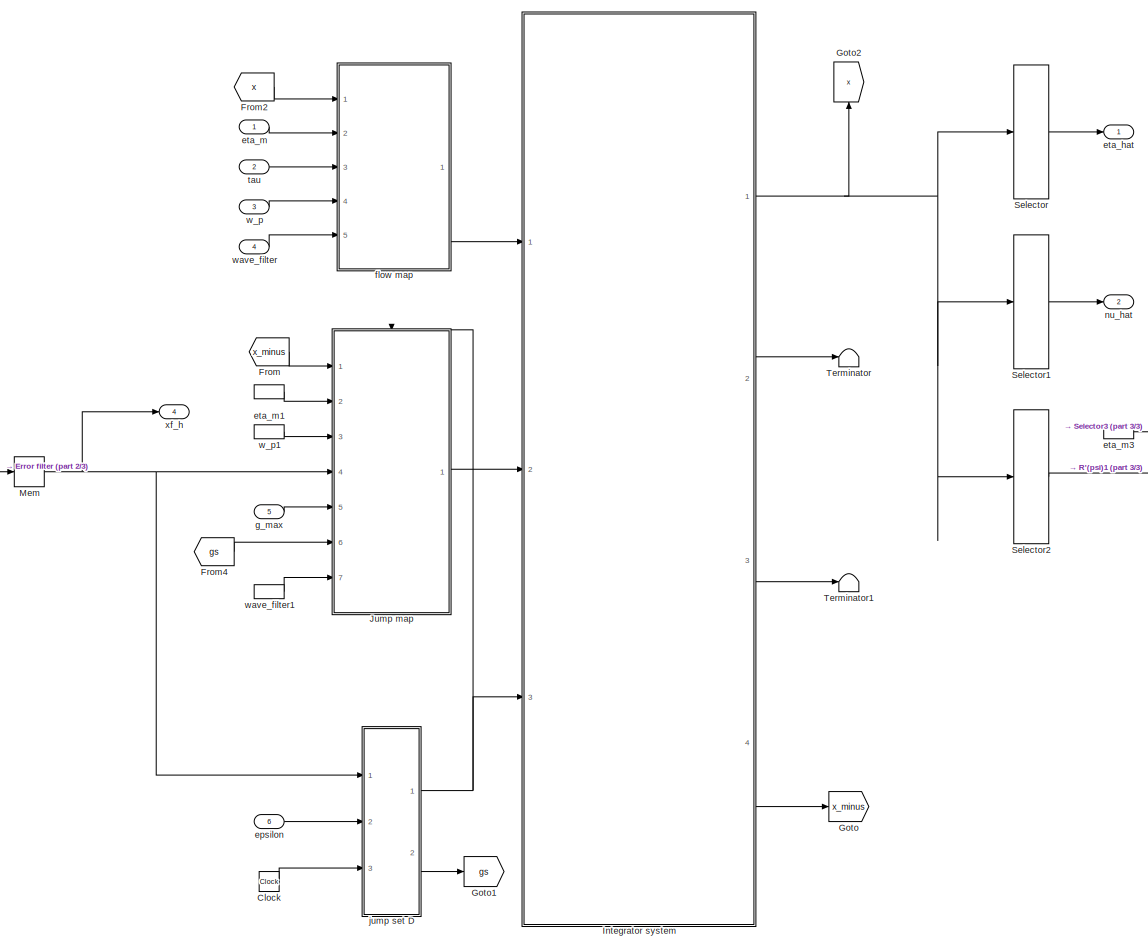
[diagram: Observers/Hybrid Nonlinear Passive DP obs - part 1/3, center side, full height]
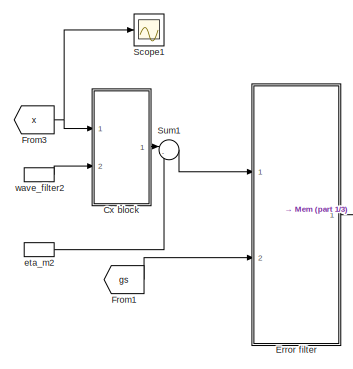
[diagram: Observers/Hybrid Nonlinear Passive DP obs - part 2/3, middle left region]
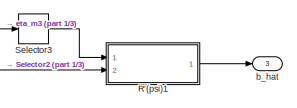
[diagram: Observers/Hybrid Nonlinear Passive DP obs - part 3/3, middle right region]
BLOCK [SubSystem] Observers/Hybrid Nonlinear Passive DP obs
  Ports = [6, 4]
  RequestExecContextInheritance = off
BLOCK [Clock] Observers/Hybrid Nonlinear Passive DP obs/Clock
BLOCK [SubSystem] Observers/Hybrid Nonlinear Passive DP obs/Cx block
  Ports = [2, 1]
  RequestExecContextInheritance = off
BLOCK [Outport] Observers/Hybrid Nonlinear Passive DP obs/Cx block/Cx
  IconDisplay = Port number
BLOCK [Product] Observers/Hybrid Nonlinear Passive DP obs/Cx block/Product
  InputSameDT = off
  OutDataTypeStr = Inherit: Inherit via internal rule
  Ports = [2, 1]
  RndMeth = Floor
  SaturateOnIntegerOverflow = off
BLOCK [Selector] Observers/Hybrid Nonlinear Passive DP obs/Cx block/Selector
  Indices = [7 8 9]
  InputPortWidth = 15
  Ports = [1, 1]
BLOCK [Selector] Observers/Hybrid Nonlinear Passive DP obs/Cx block/Selector1
  Indices = [4 5 6]
  InputPortWidth = 15
  Ports = [1, 1]
BLOCK [Sum] Observers/Hybrid Nonlinear Passive DP obs/Cx block/Sum
  IconShape = round
  InputSameDT = off
  Inputs = |++
  OutDataTypeStr = Inherit: Inherit via internal rule
  Ports = [2, 1]
  SaturateOnIntegerOverflow = off
BLOCK [Inport] Observers/Hybrid Nonlinear Passive DP obs/Cx block/wave_filter
  IconDisplay = Port number
  Port = 2
BLOCK [Inport] Observers/Hybrid Nonlinear Passive DP obs/Cx block/x
  IconDisplay = Port number
BLOCK [SubSystem] Observers/Hybrid Nonlinear Passive DP obs/Error filter
  Ports = [2, 1]
  RequestExecContextInheritance = off
BLOCK [Demux] Observers/Hybrid Nonlinear Passive DP obs/Error filter/Demux
  DisplayOption = bar
  Outputs = 3
  Ports = [1, 3]
BLOCK [Demux] Observers/Hybrid Nonlinear Passive DP obs/Error filter/Demux1
  DisplayOption = bar
  Outputs = 3
  Ports = [1, 3]
BLOCK [Mux] Observers/Hybrid Nonlinear Passive DP obs/Error filter/Mux
  DisplayOption = bar
  Inputs = 3
  Ports = [3, 1]
BLOCK [Mux] Observers/Hybrid Nonlinear Passive DP obs/Error filter/Mux1
  DisplayOption = bar
  Inputs = 2
  Ports = [2, 1]
BLOCK [Scope] Observers/Hybrid Nonlinear Passive DP obs/Error filter/Scope
  Floating = off
  LimitDataPoints = off
  NumInputPorts = 1
  Ports = [1]
  SaveName = ScopeData1
  ShowLegends = off
  ZoomMode = xonly
BLOCK [SubSystem] Observers/Hybrid Nonlinear Passive DP obs/Error filter/Subsystem
  Ports = [2, 1]
  RequestExecContextInheritance = off
BLOCK [Gain] Observers/Hybrid Nonlinear Passive DP obs/Error filter/Subsystem/Gain
  Gain = 10
  OutDataTypeStr = Inherit: Inherit via internal rule
  ParamDataTypeStr = Inherit: Inherit via internal rule
  SaturateOnIntegerOverflow = off
BLOCK [Inport] Observers/Hybrid Nonlinear Passive DP obs/Error filter/Subsystem/In1
  IconDisplay = Port number
BLOCK [Integrator] Observers/Hybrid Nonlinear Passive DP obs/Error filter/Subsystem/Integrator
  ExternalReset = level hold
  Ports = [2, 1]
BLOCK [Outport] Observers/Hybrid Nonlinear Passive DP obs/Error filter/Subsystem/Out1
  IconDisplay = Port number
BLOCK [Sum] Observers/Hybrid Nonlinear Passive DP obs/Error filter/Subsystem/Sum
  IconShape = round
  InputSameDT = off
  Inputs = |+-
  OutDataTypeStr = Inherit: Inherit via internal rule
  Ports = [2, 1]
  SaturateOnIntegerOverflow = off
BLOCK [Inport] Observers/Hybrid Nonlinear Passive DP obs/Error filter/Subsystem/gs
  IconDisplay = Port number
  Port = 2
BLOCK [SubSystem] Observers/Hybrid Nonlinear Passive DP obs/Error filter/Subsystem1
  Ports = [2, 1]
  RequestExecContextInheritance = off
BLOCK [Gain] Observers/Hybrid Nonlinear Passive DP obs/Error filter/Subsystem1/Gain
  Gain = 10
  OutDataTypeStr = Inherit: Inherit via internal rule
  ParamDataTypeStr = Inherit: Inherit via internal rule
  SaturateOnIntegerOverflow = off
BLOCK [Inport] Observers/Hybrid Nonlinear Passive DP obs/Error filter/Subsystem1/In1
  IconDisplay = Port number
BLOCK [Integrator] Observers/Hybrid Nonlinear Passive DP obs/Error filter/Subsystem1/Integrator
  AbsoluteTolerance = 1e-8
  ExternalReset = level hold
  Ports = [2, 1]
BLOCK [Outport] Observers/Hybrid Nonlinear Passive DP obs/Error filter/Subsystem1/Out1
  IconDisplay = Port number
BLOCK [Sum] Observers/Hybrid Nonlinear Passive DP obs/Error filter/Subsystem1/Sum
  IconShape = round
  InputSameDT = off
  Inputs = |+-
  OutDataTypeStr = Inherit: Inherit via internal rule
  Ports = [2, 1]
  SaturateOnIntegerOverflow = off
BLOCK [Inport] Observers/Hybrid Nonlinear Passive DP obs/Error filter/Subsystem1/gs
  IconDisplay = Port number
  Port = 2
BLOCK [SubSystem] Observers/Hybrid Nonlinear Passive DP obs/Error filter/Subsystem2
  Ports = [2, 1]
  RequestExecContextInheritance = off
BLOCK [Gain] Observers/Hybrid Nonlinear Passive DP obs/Error filter/Subsystem2/Gain
  Gain = 10
  OutDataTypeStr = Inherit: Inherit via internal rule
  ParamDataTypeStr = Inherit: Inherit via internal rule
  SaturateOnIntegerOverflow = off
BLOCK [Inport] Observers/Hybrid Nonlinear Passive DP obs/Error filter/Subsystem2/In1
  IconDisplay = Port number
BLOCK [Integrator] Observers/Hybrid Nonlinear Passive DP obs/Error filter/Subsystem2/Integrator
  ExternalReset = level hold
  Ports = [2, 1]
BLOCK [Outport] Observers/Hybrid Nonlinear Passive DP obs/Error filter/Subsystem2/Out1
  IconDisplay = Port number
BLOCK [Sum] Observers/Hybrid Nonlinear Passive DP obs/Error filter/Subsystem2/Sum
  IconShape = round
  InputSameDT = off
  Inputs = |+-
  OutDataTypeStr = Inherit: Inherit via internal rule
  Ports = [2, 1]
  SaturateOnIntegerOverflow = off
BLOCK [Inport] Observers/Hybrid Nonlinear Passive DP obs/Error filter/Subsystem2/gs
  IconDisplay = Port number
  Port = 2
BLOCK [Inport] Observers/Hybrid Nonlinear Passive DP obs/Error filter/e
  IconDisplay = Port number
BLOCK [Outport] Observers/Hybrid Nonlinear Passive DP obs/Error filter/e_f
  IconDisplay = Port number
  PortDimensions = 3
BLOCK [Inport] Observers/Hybrid Nonlinear Passive DP obs/Error filter/gs
  IconDisplay = Port number
  Port = 2
BLOCK [From] Observers/Hybrid Nonlinear Passive DP obs/From
  GotoTag = x_minus
BLOCK [From] Observers/Hybrid Nonlinear Passive DP obs/From1
  GotoTag = gs
BLOCK [From] Observers/Hybrid Nonlinear Passive DP obs/From2
  GotoTag = x
BLOCK [From] Observers/Hybrid Nonlinear Passive DP obs/From3
  GotoTag = x
BLOCK [From] Observers/Hybrid Nonlinear Passive DP obs/From4
  GotoTag = gs
BLOCK [Goto] Observers/Hybrid Nonlinear Passive DP obs/Goto
  GotoTag = x_minus
BLOCK [Goto] Observers/Hybrid Nonlinear Passive DP obs/Goto1
  GotoTag = gs
BLOCK [Goto] Observers/Hybrid Nonlinear Passive DP obs/Goto2
  GotoTag = x
BLOCK [SubSystem] Observers/Hybrid Nonlinear Passive DP obs/Integrator system
  Ports = [3, 4]
  RequestExecContextInheritance = off
BLOCK [SubSystem] Observers/Hybrid Nonlinear Passive DP obs/Integrator system/CT dynamics
  Ports = [1, 1]
  RequestExecContextInheritance = off
BLOCK [Constant] Observers/Hybrid Nonlinear Passive DP obs/Integrator system/CT dynamics/Flows
BLOCK [Constant] Observers/Hybrid Nonlinear Passive DP obs/Integrator system/CT dynamics/Jumps
  Value = 0
BLOCK [Mux] Observers/Hybrid Nonlinear Passive DP obs/Integrator system/CT dynamics/Mux
  DisplayOption = bar
  Inputs = [1 1 -1]
  Ports = [3, 1]
BLOCK [Outport] Observers/Hybrid Nonlinear Passive DP obs/Integrator system/CT dynamics/dot
  IconDisplay = Port number
BLOCK [Inport] Observers/Hybrid Nonlinear Passive DP obs/Integrator system/CT dynamics/f(x,u)
  IconDisplay = Port number
BLOCK [Inport] Observers/Hybrid Nonlinear Passive DP obs/Integrator system/D
  IconDisplay = Port number
  Port = 3
BLOCK [Demux] Observers/Hybrid Nonlinear Passive DP obs/Integrator system/Demux
  DisplayOption = bar
  Outputs = 3
  Ports = [1, 3]
BLOCK [Demux] Observers/Hybrid Nonlinear Passive DP obs/Integrator system/Demux1
  DisplayOption = bar
  Outputs = 3
  Ports = [1, 3]
BLOCK [InitialCondition] Observers/Hybrid Nonlinear Passive DP obs/Integrator system/ICx
  Value = zeros(15,1)
BLOCK [InitialCondition] Observers/Hybrid Nonlinear Passive DP obs/Integrator system/ICx0
  Value = [0; 0; zeros(15,1)]
BLOCK [Integrator] Observers/Hybrid Nonlinear Passive DP obs/Integrator system/Integrator
  ExternalReset = level hold
  InitialConditionSource = external
  Ports = [3, 1, 0, 0, 1]
  ShowStatePort = on
  ZeroCross = off
BLOCK [SubSystem] Observers/Hybrid Nonlinear Passive DP obs/Integrator system/Update logic
  Ports = [3, 1]
  RequestExecContextInheritance = off
BLOCK [Constant] Observers/Hybrid Nonlinear Passive DP obs/Integrator system/Update logic/Constant
BLOCK [Mux] Observers/Hybrid Nonlinear Passive DP obs/Integrator system/Update logic/Mux
  DisplayOption = bar
  Inputs = [1 1 -1]
  Ports = [3, 1]
BLOCK [Sum] Observers/Hybrid Nonlinear Passive DP obs/Integrator system/Update logic/Sum
  IconShape = round
  InputSameDT = off
  Inputs = |++
  OutDataTypeStr = Inherit: Inherit via internal rule
  Ports = [2, 1]
  SaturateOnIntegerOverflow = off
BLOCK [Inport] Observers/Hybrid Nonlinear Passive DP obs/Integrator system/Update logic/g(x-,u)
  IconDisplay = Port number
BLOCK [Inport] Observers/Hybrid Nonlinear Passive DP obs/Integrator system/Update logic/j-
  IconDisplay = Port number
  Port = 2
BLOCK [Inport] Observers/Hybrid Nonlinear Passive DP obs/Integrator system/Update logic/t-
  IconDisplay = Port number
  Port = 3
BLOCK [Outport] Observers/Hybrid Nonlinear Passive DP obs/Integrator system/Update logic/update law
  IconDisplay = Port number
BLOCK [Inport] Observers/Hybrid Nonlinear Passive DP obs/Integrator system/f
  IconDisplay = Port number
BLOCK [Inport] Observers/Hybrid Nonlinear Passive DP obs/Integrator system/g
  IconDisplay = Port number
  Port = 2
BLOCK [Outport] Observers/Hybrid Nonlinear Passive DP obs/Integrator system/j
  IconDisplay = Port number
  Port = 3
BLOCK [Outport] Observers/Hybrid Nonlinear Passive DP obs/Integrator system/t
  IconDisplay = Port number
  Port = 2
BLOCK [Outport] Observers/Hybrid Nonlinear Passive DP obs/Integrator system/x
  IconDisplay = Port number
BLOCK [Outport] Observers/Hybrid Nonlinear Passive DP obs/Integrator system/x-
  IconDisplay = Port number
  Port = 4
  PortDimensions = 15
BLOCK [SubSystem] Observers/Hybrid Nonlinear Passive DP obs/Jump map
  Ports = [7, 1, 1]
  RequestExecContextInheritance = off
BLOCK [SubSystem] Observers/Hybrid Nonlinear Passive DP obs/Jump map/Calc observer gains1
  Ports = [1, 5]
  RequestExecContextInheritance = off
BLOCK [Gain] Observers/Hybrid Nonlinear Passive DP obs/Jump map/Calc observer gains1/-2(zeta-lambda)
  Gain = -2*(zeta-lmb)
BLOCK [Gain] Observers/Hybrid Nonlinear Passive DP obs/Jump map/Calc observer gains1/-2*lambda
  Gain = -2*lmb
BLOCK [Constant] Observers/Hybrid Nonlinear Passive DP obs/Jump map/Calc observer gains1/0_3x3
  Value = [zeros(3) eye(3)]
BLOCK [Gain] Observers/Hybrid Nonlinear Passive DP obs/Jump map/Calc observer gains1/2(zeta-lambda)1
  Gain = 2*(zeta-lmb)
BLOCK [Outport] Observers/Hybrid Nonlinear Passive DP obs/Jump map/Calc observer gains1/Aw(w_p)
  IconDisplay = Port number
  Port = 3
BLOCK [Constant] Observers/Hybrid Nonlinear Passive DP obs/Jump map/Calc observer gains1/I
  Value = eye(3)
BLOCK [Constant] Observers/Hybrid Nonlinear Passive DP obs/Jump map/Calc observer gains1/I1
  Value = eye(3)
BLOCK [Constant] Observers/Hybrid Nonlinear Passive DP obs/Jump map/Calc observer gains1/I2
  Value = eye(3)
BLOCK [Constant] Observers/Hybrid Nonlinear Passive DP obs/Jump map/Calc observer gains1/I5
  Value = -eye(3)
BLOCK [Constant] Observers/Hybrid Nonlinear Passive DP obs/Jump map/Calc observer gains1/I6
  Value = eye(3)
BLOCK [Outport] Observers/Hybrid Nonlinear Passive DP obs/Jump map/Calc observer gains1/K1(w_p)
  IconDisplay = Port number
BLOCK [Outport] Observers/Hybrid Nonlinear Passive DP obs/Jump map/Calc observer gains1/K2(w_1)
  IconDisplay = Port number
  Port = 2
BLOCK [Outport] Observers/Hybrid Nonlinear Passive DP obs/Jump map/Calc observer gains1/K3
  IconDisplay = Port number
  Port = 4
BLOCK [Constant] Observers/Hybrid Nonlinear Passive DP obs/Jump map/Calc observer gains1/K31
  Value = K3
BLOCK [Outport] Observers/Hybrid Nonlinear Passive DP obs/Jump map/Calc observer gains1/K5
  IconDisplay = Port number
  Port = 5
BLOCK [Constant] Observers/Hybrid Nonlinear Passive DP obs/Jump map/Calc observer gains1/K51
  Value = K4
BLOCK [Concatenate] Observers/Hybrid Nonlinear Passive DP obs/Jump map/Calc observer gains1/Matrix Concatenation
  Mode = Multidimensional array
  Ports = [2, 1]
BLOCK [Concatenate] Observers/Hybrid Nonlinear Passive DP obs/Jump map/Calc observer gains1/Matrix Concatenation1
  ConcatenateDimension = 2
  Mode = Multidimensional array
  Ports = [2, 1]
BLOCK [Concatenate] Observers/Hybrid Nonlinear Passive DP obs/Jump map/Calc observer gains1/Matrix Concatenation2
  Mode = Multidimensional array
  Ports = [2, 1]
BLOCK [Product] Observers/Hybrid Nonlinear Passive DP obs/Jump map/Calc observer gains1/Product1
  InputSameDT = off
  Ports = [2, 1]
  RndMeth = Floor
BLOCK [Product] Observers/Hybrid Nonlinear Passive DP obs/Jump map/Calc observer gains1/Product2
  InputSameDT = off
  Ports = [2, 1]
  RndMeth = Floor
BLOCK [Product] Observers/Hybrid Nonlinear Passive DP obs/Jump map/Calc observer gains1/Product4
  InputSameDT = off
  Ports = [2, 1]
  RndMeth = Floor
BLOCK [Product] Observers/Hybrid Nonlinear Passive DP obs/Jump map/Calc observer gains1/Product5
  InputSameDT = off
  Ports = [2, 1]
  RndMeth = Floor
BLOCK [Product] Observers/Hybrid Nonlinear Passive DP obs/Jump map/Calc observer gains1/Product6
  InputSameDT = off
  Ports = [2, 1]
  RndMeth = Floor
BLOCK [Gain] Observers/Hybrid Nonlinear Passive DP obs/Jump map/Calc observer gains1/k
  Gain = k
BLOCK [Gain] Observers/Hybrid Nonlinear Passive DP obs/Jump map/Calc observer gains1/k1
  Gain = k
BLOCK [Inport] Observers/Hybrid Nonlinear Passive DP obs/Jump map/Calc observer gains1/w_p
  IconDisplay = Port number
BLOCK [Constant] Observers/Hybrid Nonlinear Passive DP obs/Jump map/D
  Value = Control.VessObs.D
BLOCK [EnablePort] Observers/Hybrid Nonlinear Passive DP obs/Jump map/Enable
  Ports = []
BLOCK [Constant] Observers/Hybrid Nonlinear Passive DP obs/Jump map/M_inv
  Value = Control.VessObs.M_inv
BLOCK [Inport] Observers/Hybrid Nonlinear Passive DP obs/Jump map/e
  IconDisplay = Port number
  Port = 4
BLOCK [Outport] Observers/Hybrid Nonlinear Passive DP obs/Jump map/g
  IconDisplay = Port number
BLOCK [Inport] Observers/Hybrid Nonlinear Passive DP obs/Jump map/g_max
  IconDisplay = Port number
  Port = 5
BLOCK [Inport] Observers/Hybrid Nonlinear Passive DP obs/Jump map/gs
  IconDisplay = Port number
  Port = 6
BLOCK [SubSystem] Observers/Hybrid Nonlinear Passive DP obs/Jump map/jump map g
  ErrorFcn = Stateflow.Translate.translate
  PermitHierarchicalResolution = ExplicitOnly
  Ports = [13, 1]
  RequestExecContextInheritance = off
  SFBlockType = MATLAB Function
  TreatAsAtomicUnit = on
BLOCK [Demux] Observers/Hybrid Nonlinear Passive DP obs/Jump map/jump map g/ Demux 
  Outputs = 1
  Ports = [1, 1]
BLOCK [S-Function] Observers/Hybrid Nonlinear Passive DP obs/Jump map/jump map g/ SFunction 
  EnableBusSupport = on
  FunctionName = sf_sfun
  PortCounts = [13 2]
  Ports = [13, 2]
  Tag = Stateflow S-Function Controller_CS3 3
BLOCK [Terminator] Observers/Hybrid Nonlinear Passive DP obs/Jump map/jump map g/ Terminator 
BLOCK [Inport] Observers/Hybrid Nonlinear Passive DP obs/Jump map/jump map g/Aw
  IconDisplay = Port number
  Port = 5
BLOCK [Inport] Observers/Hybrid Nonlinear Passive DP obs/Jump map/jump map g/D
  IconDisplay = Port number
  Port = 9
BLOCK [Inport] Observers/Hybrid Nonlinear Passive DP obs/Jump map/jump map g/K1
  IconDisplay = Port number
  Port = 3
BLOCK [Inport] Observers/Hybrid Nonlinear Passive DP obs/Jump map/jump map g/K2
  IconDisplay = Port number
  Port = 4
BLOCK [Inport] Observers/Hybrid Nonlinear Passive DP obs/Jump map/jump map g/K3
  IconDisplay = Port number
  Port = 6
BLOCK [Inport] Observers/Hybrid Nonlinear Passive DP obs/Jump map/jump map g/K5
  IconDisplay = Port number
  Port = 7
BLOCK [Inport] Observers/Hybrid Nonlinear Passive DP obs/Jump map/jump map g/M_inv
  IconDisplay = Port number
  Port = 8
BLOCK [Inport] Observers/Hybrid Nonlinear Passive DP obs/Jump map/jump map g/e
  IconDisplay = Port number
  Port = 10
BLOCK [Inport] Observers/Hybrid Nonlinear Passive DP obs/Jump map/jump map g/g_max
  IconDisplay = Port number
  Port = 11
BLOCK [Inport] Observers/Hybrid Nonlinear Passive DP obs/Jump map/jump map g/gs
  IconDisplay = Port number
  Port = 12
BLOCK [Inport] Observers/Hybrid Nonlinear Passive DP obs/Jump map/jump map g/wave_filter_onoff
  IconDisplay = Port number
  Port = 13
BLOCK [Inport] Observers/Hybrid Nonlinear Passive DP obs/Jump map/jump map g/x
  IconDisplay = Port number
BLOCK [Outport] Observers/Hybrid Nonlinear Passive DP obs/Jump map/jump map g/x_plus
  IconDisplay = Port number
BLOCK [Inport] Observers/Hybrid Nonlinear Passive DP obs/Jump map/jump map g/y
  IconDisplay = Port number
  Port = 2
BLOCK [Inport] Observers/Hybrid Nonlinear Passive DP obs/Jump map/w_p
  IconDisplay = Port number
  Port = 3
BLOCK [Inport] Observers/Hybrid Nonlinear Passive DP obs/Jump map/wave_filter
  IconDisplay = Port number
  Port = 7
BLOCK [Inport] Observers/Hybrid Nonlinear Passive DP obs/Jump map/x
  IconDisplay = Port number
BLOCK [Inport] Observers/Hybrid Nonlinear Passive DP obs/Jump map/y
  IconDisplay = Port number
  Port = 2
BLOCK [Memory] Observers/Hybrid Nonlinear Passive DP obs/Mem
BLOCK [SubSystem] Observers/Hybrid Nonlinear Passive DP obs/R'(psi)1
  Ports = [2, 1]
  RequestExecContextInheritance = off
BLOCK [Demux] Observers/Hybrid Nonlinear Passive DP obs/R'(psi)1/Demux
  Outputs = 3
  Ports = [1, 3]
BLOCK [Mux] Observers/Hybrid Nonlinear Passive DP obs/R'(psi)1/Mux
  DisplayOption = bar
  Inputs = 3
  Ports = [3, 1]
BLOCK [Mux] Observers/Hybrid Nonlinear Passive DP obs/R'(psi)1/Mux1
  Inputs = 3
  Ports = [3, 1]
BLOCK [Fcn] Observers/Hybrid Nonlinear Passive DP obs/R'(psi)1/Row1
  Expr = cos(u(3))*u(1)+sin(u(3))*u(2)
BLOCK [Fcn] Observers/Hybrid Nonlinear Passive DP obs/R'(psi)1/Row2
  Expr = -sin(u(3))*u(1)+cos(u(3))*u(2)
BLOCK [Inport] Observers/Hybrid Nonlinear Passive DP obs/R'(psi)1/eta
  IconDisplay = Port number
  Port = 2
BLOCK [Outport] Observers/Hybrid Nonlinear Passive DP obs/R'(psi)1/nu
  IconDisplay = Port number
BLOCK [Inport] Observers/Hybrid Nonlinear Passive DP obs/R'(psi)1/psi
  IconDisplay = Port number
BLOCK [Scope] Observers/Hybrid Nonlinear Passive DP obs/Scope1
  Floating = off
  NumInputPorts = 1
  Ports = [1]
  SaveName = ScopeData2
  ShowLegends = off
  ZoomMode = yonly
BLOCK [Selector] Observers/Hybrid Nonlinear Passive DP obs/Selector
  Indices = [7 8 9]
  InputPortWidth = 15
  Ports = [1, 1]
BLOCK [Selector] Observers/Hybrid Nonlinear Passive DP obs/Selector1
  Indices = [10 11 12]
  InputPortWidth = 15
  Ports = [1, 1]
BLOCK [Selector] Observers/Hybrid Nonlinear Passive DP obs/Selector2
  Indices = [13 14 15]
  InputPortWidth = 15
  Ports = [1, 1]
BLOCK [Selector] Observers/Hybrid Nonlinear Passive DP obs/Selector3
  Indices = 3
  InputPortWidth = 3
  Ports = [1, 1]
BLOCK [Sum] Observers/Hybrid Nonlinear Passive DP obs/Sum1
  IconShape = round
  InputSameDT = off
  Inputs = |-+
  OutDataTypeStr = Inherit: Inherit via internal rule
  Ports = [2, 1]
  SaturateOnIntegerOverflow = off
BLOCK [Terminator] Observers/Hybrid Nonlinear Passive DP obs/Terminator
BLOCK [Terminator] Observers/Hybrid Nonlinear Passive DP obs/Terminator1
BLOCK [Outport] Observers/Hybrid Nonlinear Passive DP obs/b_hat
  IconDisplay = Port number
  Port = 3
BLOCK [Inport] Observers/Hybrid Nonlinear Passive DP obs/epsilon
  IconDisplay = Port number
  Port = 6
  PortDimensions = 3
BLOCK [Outport] Observers/Hybrid Nonlinear Passive DP obs/eta_hat
  IconDisplay = Port number
BLOCK [Inport] Observers/Hybrid Nonlinear Passive DP obs/eta_m
  IconDisplay = Port number
  PortDimensions = 3
BLOCK [InportShadow] Observers/Hybrid Nonlinear Passive DP obs/eta_m1
  IconDisplay = Port number
  PortDimensions = 3
BLOCK [InportShadow] Observers/Hybrid Nonlinear Passive DP obs/eta_m2
  IconDisplay = Port number
  PortDimensions = 3
BLOCK [InportShadow] Observers/Hybrid Nonlinear Passive DP obs/eta_m3
  IconDisplay = Port number
  PortDimensions = 3
BLOCK [SubSystem] Observers/Hybrid Nonlinear Passive DP obs/flow map
  Ports = [5, 1]
  RequestExecContextInheritance = off
BLOCK [SubSystem] Observers/Hybrid Nonlinear Passive DP obs/flow map/Calc observer gains1
  Ports = [1, 5]
  RequestExecContextInheritance = off
BLOCK [Gain] Observers/Hybrid Nonlinear Passive DP obs/flow map/Calc observer gains1/-2(zeta-lambda)
  Gain = -2*(zeta-lmb)
BLOCK [Gain] Observers/Hybrid Nonlinear Passive DP obs/flow map/Calc observer gains1/-2*lambda
  Gain = -2*lmb
BLOCK [Constant] Observers/Hybrid Nonlinear Passive DP obs/flow map/Calc observer gains1/0_3x3
  Value = [zeros(3) eye(3)]
BLOCK [Gain] Observers/Hybrid Nonlinear Passive DP obs/flow map/Calc observer gains1/2(zeta-lambda)1
  Gain = 2*(zeta-lmb)
BLOCK [Outport] Observers/Hybrid Nonlinear Passive DP obs/flow map/Calc observer gains1/Aw(w_p)
  IconDisplay = Port number
  Port = 3
BLOCK [Constant] Observers/Hybrid Nonlinear Passive DP obs/flow map/Calc observer gains1/I
  Value = eye(3)
BLOCK [Constant] Observers/Hybrid Nonlinear Passive DP obs/flow map/Calc observer gains1/I1
  Value = eye(3)
BLOCK [Constant] Observers/Hybrid Nonlinear Passive DP obs/flow map/Calc observer gains1/I2
  Value = eye(3)
BLOCK [Constant] Observers/Hybrid Nonlinear Passive DP obs/flow map/Calc observer gains1/I5
  Value = -eye(3)
BLOCK [Constant] Observers/Hybrid Nonlinear Passive DP obs/flow map/Calc observer gains1/I6
  Value = eye(3)
BLOCK [Outport] Observers/Hybrid Nonlinear Passive DP obs/flow map/Calc observer gains1/K1(w_p)
  IconDisplay = Port number
BLOCK [Outport] Observers/Hybrid Nonlinear Passive DP obs/flow map/Calc observer gains1/K2(w_1)
  IconDisplay = Port number
  Port = 2
BLOCK [Outport] Observers/Hybrid Nonlinear Passive DP obs/flow map/Calc observer gains1/K3
  IconDisplay = Port number
  Port = 4
BLOCK [Constant] Observers/Hybrid Nonlinear Passive DP obs/flow map/Calc observer gains1/K31
  Value = K3
BLOCK [Outport] Observers/Hybrid Nonlinear Passive DP obs/flow map/Calc observer gains1/K5
  IconDisplay = Port number
  Port = 5
BLOCK [Constant] Observers/Hybrid Nonlinear Passive DP obs/flow map/Calc observer gains1/K51
  Value = K4
BLOCK [Concatenate] Observers/Hybrid Nonlinear Passive DP obs/flow map/Calc observer gains1/Matrix Concatenation
  Mode = Multidimensional array
  Ports = [2, 1]
BLOCK [Concatenate] Observers/Hybrid Nonlinear Passive DP obs/flow map/Calc observer gains1/Matrix Concatenation1
  ConcatenateDimension = 2
  Mode = Multidimensional array
  Ports = [2, 1]
BLOCK [Concatenate] Observers/Hybrid Nonlinear Passive DP obs/flow map/Calc observer gains1/Matrix Concatenation2
  Mode = Multidimensional array
  Ports = [2, 1]
BLOCK [Product] Observers/Hybrid Nonlinear Passive DP obs/flow map/Calc observer gains1/Product1
  InputSameDT = off
  Ports = [2, 1]
  RndMeth = Floor
BLOCK [Product] Observers/Hybrid Nonlinear Passive DP obs/flow map/Calc observer gains1/Product2
  InputSameDT = off
  Ports = [2, 1]
  RndMeth = Floor
BLOCK [Product] Observers/Hybrid Nonlinear Passive DP obs/flow map/Calc observer gains1/Product4
  InputSameDT = off
  Ports = [2, 1]
  RndMeth = Floor
BLOCK [Product] Observers/Hybrid Nonlinear Passive DP obs/flow map/Calc observer gains1/Product5
  InputSameDT = off
  Ports = [2, 1]
  RndMeth = Floor
BLOCK [Product] Observers/Hybrid Nonlinear Passive DP obs/flow map/Calc observer gains1/Product6
  InputSameDT = off
  Ports = [2, 1]
  RndMeth = Floor
BLOCK [Gain] Observers/Hybrid Nonlinear Passive DP obs/flow map/Calc observer gains1/k
  Gain = k
BLOCK [Gain] Observers/Hybrid Nonlinear Passive DP obs/flow map/Calc observer gains1/k1
  Gain = k
BLOCK [Inport] Observers/Hybrid Nonlinear Passive DP obs/flow map/Calc observer gains1/w_p
  IconDisplay = Port number
BLOCK [Constant] Observers/Hybrid Nonlinear Passive DP obs/flow map/D
  Value = Control.VessObs.D
BLOCK [Constant] Observers/Hybrid Nonlinear Passive DP obs/flow map/M_inv
  Value = Control.VessObs.M_inv
BLOCK [Outport] Observers/Hybrid Nonlinear Passive DP obs/flow map/f
  IconDisplay = Port number
BLOCK [SubSystem] Observers/Hybrid Nonlinear Passive DP obs/flow map/flow map f
  ErrorFcn = Stateflow.Translate.translate
  PermitHierarchicalResolution = ExplicitOnly
  Ports = [11, 1]
  RequestExecContextInheritance = off
  SFBlockType = MATLAB Function
  TreatAsAtomicUnit = on
BLOCK [Demux] Observers/Hybrid Nonlinear Passive DP obs/flow map/flow map f/ Demux 
  Outputs = 1
  Ports = [1, 1]
BLOCK [S-Function] Observers/Hybrid Nonlinear Passive DP obs/flow map/flow map f/ SFunction 
  EnableBusSupport = on
  FunctionName = sf_sfun
  PortCounts = [11 2]
  Ports = [11, 2]
  Tag = Stateflow S-Function Controller_CS3 4
BLOCK [Terminator] Observers/Hybrid Nonlinear Passive DP obs/flow map/flow map f/ Terminator 
BLOCK [Inport] Observers/Hybrid Nonlinear Passive DP obs/flow map/flow map f/Aw
  IconDisplay = Port number
  Port = 6
BLOCK [Inport] Observers/Hybrid Nonlinear Passive DP obs/flow map/flow map f/D
  IconDisplay = Port number
  Port = 10
BLOCK [Inport] Observers/Hybrid Nonlinear Passive DP obs/flow map/flow map f/K1
  IconDisplay = Port number
  Port = 4
BLOCK [Inport] Observers/Hybrid Nonlinear Passive DP obs/flow map/flow map f/K2
  IconDisplay = Port number
  Port = 5
BLOCK [Inport] Observers/Hybrid Nonlinear Passive DP obs/flow map/flow map f/K3
  IconDisplay = Port number
  Port = 7
BLOCK [Inport] Observers/Hybrid Nonlinear Passive DP obs/flow map/flow map f/K5
  IconDisplay = Port number
  Port = 8
BLOCK [Inport] Observers/Hybrid Nonlinear Passive DP obs/flow map/flow map f/M_inv
  IconDisplay = Port number
  Port = 9
BLOCK [Inport] Observers/Hybrid Nonlinear Passive DP obs/flow map/flow map f/tau
  IconDisplay = Port number
  Port = 3
BLOCK [Inport] Observers/Hybrid Nonlinear Passive DP obs/flow map/flow map f/wave_filter_onoff
  IconDisplay = Port number
  Port = 11
BLOCK [Inport] Observers/Hybrid Nonlinear Passive DP obs/flow map/flow map f/x
  IconDisplay = Port number
BLOCK [Outport] Observers/Hybrid Nonlinear Passive DP obs/flow map/flow map f/xdot
  IconDisplay = Port number
BLOCK [Inport] Observers/Hybrid Nonlinear Passive DP obs/flow map/flow map f/y
  IconDisplay = Port number
  Port = 2
BLOCK [Inport] Observers/Hybrid Nonlinear Passive DP obs/flow map/tau
  IconDisplay = Port number
  Port = 3
BLOCK [Inport] Observers/Hybrid Nonlinear Passive DP obs/flow map/w_p
  IconDisplay = Port number
  Port = 4
BLOCK [Inport] Observers/Hybrid Nonlinear Passive DP obs/flow map/wave_filter
  IconDisplay = Port number
  Port = 5
BLOCK [Inport] Observers/Hybrid Nonlinear Passive DP obs/flow map/x
  IconDisplay = Port number
BLOCK [Inport] Observers/Hybrid Nonlinear Passive DP obs/flow map/y
  IconDisplay = Port number
  Port = 2
BLOCK [Inport] Observers/Hybrid Nonlinear Passive DP obs/g_max
  IconDisplay = Port number
  Port = 5
  PortDimensions = 3
BLOCK [SubSystem] Observers/Hybrid Nonlinear Passive DP obs/jump set D
  ErrorFcn = Stateflow.Translate.translate
  PermitHierarchicalResolution = ExplicitOnly
  Ports = [3, 2]
  RequestExecContextInheritance = off
  SFBlockType = MATLAB Function
  TreatAsAtomicUnit = on
BLOCK [Demux] Observers/Hybrid Nonlinear Passive DP obs/jump set D/ Demux 
  Outputs = 1
  Ports = [1, 1]
BLOCK [S-Function] Observers/Hybrid Nonlinear Passive DP obs/jump set D/ SFunction 
  EnableBusSupport = on
  FunctionName = sf_sfun
  PortCounts = [3 3]
  Ports = [3, 3]
  Tag = Stateflow S-Function Controller_CS3 5
BLOCK [Terminator] Observers/Hybrid Nonlinear Passive DP obs/jump set D/ Terminator 
BLOCK [Inport] Observers/Hybrid Nonlinear Passive DP obs/jump set D/e
  IconDisplay = Port number
BLOCK [Inport] Observers/Hybrid Nonlinear Passive DP obs/jump set D/epsilon
  IconDisplay = Port number
  Port = 2
BLOCK [Outport] Observers/Hybrid Nonlinear Passive DP obs/jump set D/gs
  IconDisplay = Port number
  Port = 2
BLOCK [Inport] Observers/Hybrid Nonlinear Passive DP obs/jump set D/t
  IconDisplay = Port number
  Port = 3
BLOCK [Outport] Observers/Hybrid Nonlinear Passive DP obs/jump set D/v
  IconDisplay = Port number
BLOCK [Outport] Observers/Hybrid Nonlinear Passive DP obs/nu_hat
  IconDisplay = Port number
  Port = 2
BLOCK [Inport] Observers/Hybrid Nonlinear Passive DP obs/tau
  IconDisplay = Port number
  Port = 2
BLOCK [Inport] Observers/Hybrid Nonlinear Passive DP obs/w_p
  IconDisplay = Port number
  Port = 3
BLOCK [InportShadow] Observers/Hybrid Nonlinear Passive DP obs/w_p1
  IconDisplay = Port number
  Port = 3
BLOCK [Inport] Observers/Hybrid Nonlinear Passive DP obs/wave_filter
  IconDisplay = Port number
  Port = 4
  PortDimensions = 1
BLOCK [InportShadow] Observers/Hybrid Nonlinear Passive DP obs/wave_filter1
  IconDisplay = Port number
  Port = 4
  PortDimensions = 1
BLOCK [InportShadow] Observers/Hybrid Nonlinear Passive DP obs/wave_filter2
  IconDisplay = Port number
  Port = 4
  PortDimensions = 1
BLOCK [Outport] Observers/Hybrid Nonlinear Passive DP obs/xf_h
  IconDisplay = Port number
  Port = 4
BLOCK [Outport] Observers/b_c_hat
  IconDisplay = Port number
  Port = 3
BLOCK [Outport] Observers/b_h_hat
  IconDisplay = Port number
  Port = 6
BLOCK [Inport] Observers/epsilon
  IconDisplay = Port number
  Port = 6
BLOCK [Outport] Observers/eta_c_hat
  IconDisplay = Port number
BLOCK [Outport] Observers/eta_h_hat
  IconDisplay = Port number
  Port = 4
BLOCK [Inport] Observers/eta_m
  IconDisplay = Port number
BLOCK [InportShadow] Observers/eta_m1
  IconDisplay = Port number
BLOCK [Inport] Observers/g_max
  IconDisplay = Port number
  Port = 5
BLOCK [Outport] Observers/nu_c_hat
  IconDisplay = Port number
  Port = 2
BLOCK [Outport] Observers/nu_h_hat
  IconDisplay = Port number
  Port = 5
BLOCK [Inport] Observers/tau_m
  IconDisplay = Port number
  Port = 2
BLOCK [InportShadow] Observers/tau_m1
  IconDisplay = Port number
  Port = 2
BLOCK [Inport] Observers/w_p
  IconDisplay = Port number
  Port = 3
BLOCK [Inport] Observers/wave_filter
  IconDisplay = Port number
  Port = 4
BLOCK [Outport] Observers/xf_h
  IconDisplay = Port number
  Port = 7
BLOCK [Product] Product
  InputSameDT = off
  OutDataTypeStr = Inherit: Inherit via internal rule
  Ports = [2, 1]
  RndMeth = Floor
  SaturateOnIntegerOverflow = off
BLOCK [Product] Product1
  InputSameDT = off
  OutDataTypeStr = Inherit: Inherit via internal rule
  Ports = [2, 1]
  RndMeth = Floor
  SaturateOnIntegerOverflow = off
BLOCK [Product] Product2
  InputSameDT = off
  OutDataTypeStr = Inherit: Inherit via internal rule
  Ports = [2, 1]
  RndMeth = Floor
  SaturateOnIntegerOverflow = off
BLOCK [Product] Product3
  InputSameDT = off
  OutDataTypeStr = Inherit: Inherit via internal rule
  Ports = [2, 1]
  RndMeth = Floor
  SaturateOnIntegerOverflow = off
BLOCK [Product] Product4
  InputSameDT = off
  OutDataTypeStr = Inherit: Inherit via internal rule
  Ports = [2, 1]
  RndMeth = Floor
  SaturateOnIntegerOverflow = off
BLOCK [SubSystem] Subsystem
  Ports = [1, 1]
  RequestExecContextInheritance = off
BLOCK [Reference] Subsystem/Degrees to Radians  REF=simulink_extras/Transformations/Degrees to
Radians
  Ports = [1, 1]
  SourceBlock = simulink_extras/Transformations/Degrees to\nRadians
  SourceType = DegreesToRadians
BLOCK [Demux] Subsystem/Demux
  DisplayOption = bar
  Outputs = 3
  Ports = [1, 3]
BLOCK [Gain] Subsystem/Gain
  Gain = 1/1000
  OutDataTypeStr = Inherit: Inherit via internal rule
  ParamDataTypeStr = Inherit: Inherit via internal rule
  SaturateOnIntegerOverflow = off
BLOCK [Gain] Subsystem/Gain1
  Gain = 1/1000
  OutDataTypeStr = Inherit: Inherit via internal rule
  ParamDataTypeStr = Inherit: Inherit via internal rule
  SaturateOnIntegerOverflow = off
BLOCK [Inport] Subsystem/In1
  IconDisplay = Port number
BLOCK [Mux] Subsystem/Mux
  DisplayOption = bar
  Inputs = 3
  Ports = [3, 1]
BLOCK [Outport] Subsystem/Out1
  IconDisplay = Port number
BLOCK [Sum] Sum
  IconShape = round
  InputSameDT = off
  Inputs = |++
  OutDataTypeStr = Inherit: Inherit via internal rule
  Ports = [2, 1]
  SaturateOnIntegerOverflow = off
BLOCK [Sum] Sum1
  IconShape = round
  InputSameDT = off
  Inputs = ++|
  OutDataTypeStr = Inherit: Inherit via internal rule
  Ports = [2, 1]
  SaturateOnIntegerOverflow = off
BLOCK [Terminator] Terminator
BLOCK [SubSystem] Thruster system comp
  Ports = [6, 6]
  RequestExecContextInheritance = off
BLOCK [Gain] Thruster system comp/Gain
  Gain = -1
  OutDataTypeStr = Inherit: Inherit via internal rule
  ParamDataTypeStr = Inherit: Inherit via internal rule
  SaturateOnIntegerOverflow = off
BLOCK [SubSystem] Thruster system comp/LP filter thr 1
  Ports = [1, 1]
  RequestExecContextInheritance = off
BLOCK [Gain] Thruster system comp/LP filter thr 1/Gain
  Gain = 5
  OutDataTypeStr = Inherit: Inherit via internal rule
  ParamDataTypeStr = Inherit: Inherit via internal rule
  SaturateOnIntegerOverflow = off
BLOCK [Integrator] Thruster system comp/LP filter thr 1/Integrator
  Ports = [1, 1]
BLOCK [Sum] Thruster system comp/LP filter thr 1/Sum
  IconShape = round
  InputSameDT = off
  Inputs = |+-
  OutDataTypeStr = Inherit: Inherit via internal rule
  Ports = [2, 1]
  SaturateOnIntegerOverflow = off
BLOCK [Inport] Thruster system comp/LP filter thr 1/s_in
  IconDisplay = Port number
BLOCK [Outport] Thruster system comp/LP filter thr 1/s_out
  IconDisplay = Port number
BLOCK [SubSystem] Thruster system comp/LP filter thr 2
  Ports = [1, 1]
  RequestExecContextInheritance = off
BLOCK [Gain] Thruster system comp/LP filter thr 2/Gain
  Gain = 5
  OutDataTypeStr = Inherit: Inherit via internal rule
  ParamDataTypeStr = Inherit: Inherit via internal rule
  SaturateOnIntegerOverflow = off
BLOCK [Integrator] Thruster system comp/LP filter thr 2/Integrator
  Ports = [1, 1]
BLOCK [Sum] Thruster system comp/LP filter thr 2/Sum
  IconShape = round
  InputSameDT = off
  Inputs = |+-
  OutDataTypeStr = Inherit: Inherit via internal rule
  Ports = [2, 1]
  SaturateOnIntegerOverflow = off
BLOCK [Inport] Thruster system comp/LP filter thr 2/s_in
  IconDisplay = Port number
BLOCK [Outport] Thruster system comp/LP filter thr 2/s_out
  IconDisplay = Port number
BLOCK [SubSystem] Thruster system comp/LP filter thr 3
  Ports = [1, 1]
  RequestExecContextInheritance = off
BLOCK [Gain] Thruster system comp/LP filter thr 3/Gain
  Gain = 5
  OutDataTypeStr = Inherit: Inherit via internal rule
  ParamDataTypeStr = Inherit: Inherit via internal rule
  SaturateOnIntegerOverflow = off
BLOCK [Integrator] Thruster system comp/LP filter thr 3/Integrator
  Ports = [1, 1]
BLOCK [Sum] Thruster system comp/LP filter thr 3/Sum
  IconShape = round
  InputSameDT = off
  Inputs = |+-
  OutDataTypeStr = Inherit: Inherit via internal rule
  Ports = [2, 1]
  SaturateOnIntegerOverflow = off
BLOCK [Inport] Thruster system comp/LP filter thr 3/s_in
  IconDisplay = Port number
BLOCK [Outport] Thruster system comp/LP filter thr 3/s_out
  IconDisplay = Port number
BLOCK [ManualSwitch] Thruster system comp/Manual Switch
  CurrentSetting = 0
BLOCK [ManualSwitch] Thruster system comp/Manual Switch1
  CurrentSetting = 0
BLOCK [ManualSwitch] Thruster system comp/Manual Switch2
  CurrentSetting = 0
BLOCK [SubSystem] Thruster system comp/Thruster_dyn thr 1
  Ports = [1, 1]
  RequestExecContextInheritance = off
BLOCK [Gain] Thruster system comp/Thruster_dyn thr 1/Gain
  Gain = 1/2.5
  OutDataTypeStr = Inherit: Inherit via internal rule
  ParamDataTypeStr = Inherit: Inherit via internal rule
  SaturateOnIntegerOverflow = off
BLOCK [Integrator] Thruster system comp/Thruster_dyn thr 1/Integrator
  Ports = [1, 1]
BLOCK [Sum] Thruster system comp/Thruster_dyn thr 1/Sum
  IconShape = round
  InputSameDT = off
  Inputs = |+-
  OutDataTypeStr = Inherit: Inherit via internal rule
  Ports = [2, 1]
  SaturateOnIntegerOverflow = off
BLOCK [Inport] Thruster system comp/Thruster_dyn thr 1/rps_in
  IconDisplay = Port number
BLOCK [Outport] Thruster system comp/Thruster_dyn thr 1/rps_out
  IconDisplay = Port number
BLOCK [SubSystem] Thruster system comp/Thruster_dyn thr 2
  Ports = [1, 1]
  RequestExecContextInheritance = off
BLOCK [Gain] Thruster system comp/Thruster_dyn thr 2/Gain
  Gain = 1/2.5
  OutDataTypeStr = Inherit: Inherit via internal rule
  ParamDataTypeStr = Inherit: Inherit via internal rule
  SaturateOnIntegerOverflow = off
BLOCK [Integrator] Thruster system comp/Thruster_dyn thr 2/Integrator
  Ports = [1, 1]
BLOCK [Sum] Thruster system comp/Thruster_dyn thr 2/Sum
  IconShape = round
  InputSameDT = off
  Inputs = |+-
  OutDataTypeStr = Inherit: Inherit via internal rule
  Ports = [2, 1]
  SaturateOnIntegerOverflow = off
BLOCK [Inport] Thruster system comp/Thruster_dyn thr 2/rps_in
  IconDisplay = Port number
BLOCK [Outport] Thruster system comp/Thruster_dyn thr 2/rps_out
  IconDisplay = Port number
BLOCK [SubSystem] Thruster system comp/Thruster_dyn thr 3
  Ports = [1, 1]
  RequestExecContextInheritance = off
BLOCK [Gain] Thruster system comp/Thruster_dyn thr 3/Gain
  Gain = 1/2.5
  OutDataTypeStr = Inherit: Inherit via internal rule
  ParamDataTypeStr = Inherit: Inherit via internal rule
  SaturateOnIntegerOverflow = off
BLOCK [Integrator] Thruster system comp/Thruster_dyn thr 3/Integrator
  Ports = [1, 1]
BLOCK [Sum] Thruster system comp/Thruster_dyn thr 3/Sum
  IconShape = round
  InputSameDT = off
  Inputs = |+-
  OutDataTypeStr = Inherit: Inherit via internal rule
  Ports = [2, 1]
  SaturateOnIntegerOverflow = off
BLOCK [Inport] Thruster system comp/Thruster_dyn thr 3/rps_in
  IconDisplay = Port number
BLOCK [Outport] Thruster system comp/Thruster_dyn thr 3/rps_out
  IconDisplay = Port number
BLOCK [Outport] Thruster system comp/ros_1_m
  IconDisplay = Port number
  Port = 4
BLOCK [Outport] Thruster system comp/rps1
  IconDisplay = Port number
BLOCK [Outport] Thruster system comp/rps2
  IconDisplay = Port number
  Port = 2
BLOCK [Outport] Thruster system comp/rps3
  IconDisplay = Port number
  Port = 3
BLOCK [Inport] Thruster system comp/rps_1_c
  IconDisplay = Port number
BLOCK [Inport] Thruster system comp/rps_2_c
  IconDisplay = Port number
  Port = 3
BLOCK [Outport] Thruster system comp/rps_2_m
  IconDisplay = Port number
  Port = 5
BLOCK [Inport] Thruster system comp/rps_3_c
  IconDisplay = Port number
  Port = 5
BLOCK [Outport] Thruster system comp/rps_3_m
  IconDisplay = Port number
  Port = 6
BLOCK [SubSystem] Thruster system comp/signal check thr 1
  ErrorFcn = Stateflow.Translate.translate
  PermitHierarchicalResolution = ExplicitOnly
  Ports = [1, 1]
  RequestExecContextInheritance = off
  SFBlockType = MATLAB Function
  TreatAsAtomicUnit = on
BLOCK [Demux] Thruster system comp/signal check thr 1/ Demux 
  Outputs = 1
  Ports = [1, 1]
BLOCK [S-Function] Thruster system comp/signal check thr 1/ SFunction 
  EnableBusSupport = on
  FunctionName = sf_sfun
  PortCounts = [1 2]
  Ports = [1, 2]
  Tag = Stateflow S-Function Controller_CS3 1
BLOCK [Terminator] Thruster system comp/signal check thr 1/ Terminator 
BLOCK [Outport] Thruster system comp/signal check thr 1/rps
  IconDisplay = Port number
BLOCK [Inport] Thruster system comp/signal check thr 1/u
  IconDisplay = Port number
BLOCK [SubSystem] Thruster system comp/signal check thr 2
  ErrorFcn = Stateflow.Translate.translate
  PermitHierarchicalResolution = ExplicitOnly
  Ports = [1, 1]
  RequestExecContextInheritance = off
  SFBlockType = MATLAB Function
  TreatAsAtomicUnit = on
BLOCK [Demux] Thruster system comp/signal check thr 2/ Demux 
  Outputs = 1
  Ports = [1, 1]
BLOCK [S-Function] Thruster system comp/signal check thr 2/ SFunction 
  EnableBusSupport = on
  FunctionName = sf_sfun
  PortCounts = [1 2]
  Ports = [1, 2]
  Tag = Stateflow S-Function Controller_CS3 6
BLOCK [Terminator] Thruster system comp/signal check thr 2/ Terminator 
BLOCK [Outport] Thruster system comp/signal check thr 2/rps
  IconDisplay = Port number
BLOCK [Inport] Thruster system comp/signal check thr 2/u
  IconDisplay = Port number
BLOCK [SubSystem] Thruster system comp/signal check thr 3
  ErrorFcn = Stateflow.Translate.translate
  PermitHierarchicalResolution = ExplicitOnly
  Ports = [1, 1]
  RequestExecContextInheritance = off
  SFBlockType = MATLAB Function
  TreatAsAtomicUnit = on
BLOCK [Demux] Thruster system comp/signal check thr 3/ Demux 
  Outputs = 1
  Ports = [1, 1]
BLOCK [S-Function] Thruster system comp/signal check thr 3/ SFunction 
  EnableBusSupport = on
  FunctionName = sf_sfun
  PortCounts = [1 2]
  Ports = [1, 2]
  Tag = Stateflow S-Function Controller_CS3 10
BLOCK [Terminator] Thruster system comp/signal check thr 3/ Terminator 
BLOCK [Outport] Thruster system comp/signal check thr 3/rps
  IconDisplay = Port number
BLOCK [Inport] Thruster system comp/signal check thr 3/u
  IconDisplay = Port number
BLOCK [Inport] Thruster system comp/speed_1
  IconDisplay = Port number
  Port = 2
BLOCK [Inport] Thruster system comp/speed_2
  IconDisplay = Port number
  Port = 4
BLOCK [Inport] Thruster system comp/speed_3
  IconDisplay = Port number
  Port = 6
BLOCK [SubSystem] u 2 rps
  Ports = [1, 1]
  RequestExecContextInheritance = off
BLOCK [Constant] u 2 rps/Constant
  Value = 0.3507
BLOCK [Constant] u 2 rps/Constant1
  Value = 0.2423
BLOCK [Constant] u 2 rps/Constant2
  Value = 0.09
BLOCK [Constant] u 2 rps/Constant3
  Value = 1024
BLOCK [SubSystem] u 2 rps/MATLAB Function
  ErrorFcn = Stateflow.Translate.translate
  PermitHierarchicalResolution = ExplicitOnly
  Ports = [5, 1]
  RequestExecContextInheritance = off
  SFBlockType = MATLAB Function
  TreatAsAtomicUnit = on
BLOCK [Demux] u 2 rps/MATLAB Function/ Demux 
  Outputs = 1
  Ports = [1, 1]
BLOCK [S-Function] u 2 rps/MATLAB Function/ SFunction 
  EnableBusSupport = on
  FunctionName = sf_sfun
  PortCounts = [5 2]
  Ports = [5, 2]
  Tag = Stateflow S-Function Controller_CS3 2
BLOCK [Terminator] u 2 rps/MATLAB Function/ Terminator 
BLOCK [Inport] u 2 rps/MATLAB Function/Kt_n
  IconDisplay = Port number
  Port = 3
BLOCK [Inport] u 2 rps/MATLAB Function/Kt_p
  IconDisplay = Port number
  Port = 2
BLOCK [Inport] u 2 rps/MATLAB Function/d
  IconDisplay = Port number
  Port = 4
BLOCK [Inport] u 2 rps/MATLAB Function/rho
  IconDisplay = Port number
  Port = 5
BLOCK [Outport] u 2 rps/MATLAB Function/rps
  IconDisplay = Port number
BLOCK [Inport] u 2 rps/MATLAB Function/u
  IconDisplay = Port number
BLOCK [Outport] u 2 rps/rps
  IconDisplay = Port number
BLOCK [Inport] u 2 rps/u
  IconDisplay = Port number
BLOCK [SubSystem] u 2 rps1
  Ports = [1, 1]
  RequestExecContextInheritance = off
BLOCK [Constant] u 2 rps1/Constant
  Value = 0.3464
BLOCK [Constant] u 2 rps1/Constant1
  Value = 0.2402
BLOCK [Constant] u 2 rps1/Constant2
  Value = 0.09
BLOCK [Constant] u 2 rps1/Constant3
  Value = 1024
BLOCK [SubSystem] u 2 rps1/MATLAB Function
  ErrorFcn = Stateflow.Translate.translate
  PermitHierarchicalResolution = ExplicitOnly
  Ports = [5, 1]
  RequestExecContextInheritance = off
  SFBlockType = MATLAB Function
  TreatAsAtomicUnit = on
BLOCK [Demux] u 2 rps1/MATLAB Function/ Demux 
  Outputs = 1
  Ports = [1, 1]
BLOCK [S-Function] u 2 rps1/MATLAB Function/ SFunction 
  EnableBusSupport = on
  FunctionName = sf_sfun
  PortCounts = [5 2]
  Ports = [5, 2]
  Tag = Stateflow S-Function Controller_CS3 8
BLOCK [Terminator] u 2 rps1/MATLAB Function/ Terminator 
BLOCK [Inport] u 2 rps1/MATLAB Function/Kt_n
  IconDisplay = Port number
  Port = 3
BLOCK [Inport] u 2 rps1/MATLAB Function/Kt_p
  IconDisplay = Port number
  Port = 2
BLOCK [Inport] u 2 rps1/MATLAB Function/d
  IconDisplay = Port number
  Port = 4
BLOCK [Inport] u 2 rps1/MATLAB Function/rho
  IconDisplay = Port number
  Port = 5
BLOCK [Outport] u 2 rps1/MATLAB Function/rps
  IconDisplay = Port number
BLOCK [Inport] u 2 rps1/MATLAB Function/u
  IconDisplay = Port number
BLOCK [Outport] u 2 rps1/rps
  IconDisplay = Port number
BLOCK [Inport] u 2 rps1/u
  IconDisplay = Port number
BLOCK [SubSystem] u 2 rps2
  Ports = [1, 1]
  RequestExecContextInheritance = off
BLOCK [Constant] u 2 rps2/Constant
  Value = 0.1790
BLOCK [Constant] u 2 rps2/Constant1
  Value = 0.2383
BLOCK [Constant] u 2 rps2/Constant2
  Value = 0.05
BLOCK [Constant] u 2 rps2/Constant3
  Value = 1024
BLOCK [SubSystem] u 2 rps2/MATLAB Function
  ErrorFcn = Stateflow.Translate.translate
  PermitHierarchicalResolution = ExplicitOnly
  Ports = [5, 1]
  RequestExecContextInheritance = off
  SFBlockType = MATLAB Function
  TreatAsAtomicUnit = on
BLOCK [Demux] u 2 rps2/MATLAB Function/ Demux 
  Outputs = 1
  Ports = [1, 1]
BLOCK [S-Function] u 2 rps2/MATLAB Function/ SFunction 
  EnableBusSupport = on
  FunctionName = sf_sfun
  PortCounts = [5 2]
  Ports = [5, 2]
  Tag = Stateflow S-Function Controller_CS3 9
BLOCK [Terminator] u 2 rps2/MATLAB Function/ Terminator 
BLOCK [Inport] u 2 rps2/MATLAB Function/Kt_n
  IconDisplay = Port number
  Port = 3
BLOCK [Inport] u 2 rps2/MATLAB Function/Kt_p
  IconDisplay = Port number
  Port = 2
BLOCK [Inport] u 2 rps2/MATLAB Function/d
  IconDisplay = Port number
  Port = 4
BLOCK [Inport] u 2 rps2/MATLAB Function/rho
  IconDisplay = Port number
  Port = 5
BLOCK [Outport] u 2 rps2/MATLAB Function/rps
  IconDisplay = Port number
BLOCK [Inport] u 2 rps2/MATLAB Function/u
  IconDisplay = Port number
BLOCK [Outport] u 2 rps2/rps
  IconDisplay = Port number
BLOCK [Inport] u 2 rps2/u
  IconDisplay = Port number
ANNOTATION Control law/Tau PD-control: PD-control term in controller
ANNOTATION Control law/Tau PD-control/GNC: "Transposed rotation matrix yaw: RTz_psi": GNC: "Transposed rotation matrix yaw"
ANNOTATION CyberShip3Model: etadot
ANNOTATION CyberShip3Model: nu
ANNOTATION CyberShip3Model: nu_dot
ANNOTATION Observers/Cont. Nonlinear Passive DP obs/Nonlinear observer: NONLINEAR OBSERVER Passive nonlinear observer. Uses parameters set in "CS3.m"
ANNOTATION Observers/Cont. Nonlinear Passive DP obs/Nonlinear observer/Wavefilter module1: Aw
ANNOTATION Observers/Cont. Nonlinear Passive DP obs/Nonlinear observer/Wavefilter module1: Aw*eps
ANNOTATION Observers/Cont. Nonlinear Passive DP obs/Nonlinear observer/Wavefilter module1: WAVEFILTER MODULE Filters wave motions when enabled in "obsdat.m". Uses design parameters determined from the current seastate set in parameters.m Martin Austad, 2003
ANNOTATION Observers/Cont. Nonlinear Passive DP obs/Nonlinear observer/Wavefilter module1: eps
LINE Control allocation/Degrees to Radians1:1 -> Control allocation/a_2:1
LINE Control allocation/Degrees to Radians2:1 -> Control allocation/a_3:1
LINE Control allocation/Degrees to Radians:1 -> Control allocation/a_1:1
LINE Control allocation/Demux:1 -> Control allocation/Saturation:1
LINE Control allocation/Demux:2 -> Control allocation/Saturation1:1
LINE Control allocation/Demux:3 -> Control allocation/Saturation2:1
LINE Control allocation/Gain1:1 -> Control allocation/Mux:2
LINE Control allocation/Gain2:1 -> Control allocation/Mux:3
LINE Control allocation/Gain:1 -> Control allocation/Mux:1
LINE Control allocation/JoyX:1 -> Control allocation/Subsystem:1
LINE Control allocation/JoyY:1 -> Control allocation/Subsystem1:1
LINE Control allocation/JoyZ:1 -> Control allocation/Subsystem2:1
LINE Control allocation/Mux1:1 -> Control allocation/Product1:2
LINE Control allocation/Mux:1 -> Control allocation/Switch:1
LINE Control allocation/Product1:1 -> Control allocation/tau_ca:1
LINE Control allocation/Product:1 -> Control allocation/Demux:1
NET Control allocation/Saturation1:1 -> Control allocation/Mux1:2, Control allocation/u_2:1
NET Control allocation/Saturation2:1 -> Control allocation/Mux1:3, Control allocation/u_3:1
NET Control allocation/Saturation:1 -> Control allocation/Mux1:1, Control allocation/u_1:1
LINE Control allocation/Subsystem/Constant:1 -> Control allocation/Subsystem/Divide:2
LINE Control allocation/Subsystem/Divide:1 -> Control allocation/Subsystem/sig_n:1
LINE Control allocation/Subsystem/sig:1 -> Control allocation/Subsystem/Divide:1
LINE Control allocation/Subsystem1/Constant:1 -> Control allocation/Subsystem1/Divide:2
LINE Control allocation/Subsystem1/Divide:1 -> Control allocation/Subsystem1/sig_n:1
LINE Control allocation/Subsystem1/sig:1 -> Control allocation/Subsystem1/Divide:1
LINE Control allocation/Subsystem1:1 -> Control allocation/Gain1:1
LINE Control allocation/Subsystem2/Constant:1 -> Control allocation/Subsystem2/Divide:2
LINE Control allocation/Subsystem2/Divide:1 -> Control allocation/Subsystem2/sig_n:1
LINE Control allocation/Subsystem2/sig:1 -> Control allocation/Subsystem2/Divide:1
LINE Control allocation/Subsystem2:1 -> Control allocation/Gain2:1
LINE Control allocation/Subsystem:1 -> Control allocation/Gain:1
LINE Control allocation/Switch:1 -> Control allocation/Product:2
LINE Control allocation/T_matrix1:1 -> Control allocation/Product:1
NET Control allocation/T_matrix:1 -> Control allocation/Product1:1, Control allocation/T:1
LINE Control allocation/azi thr 1:1 -> Control allocation/Degrees to Radians:1
LINE Control allocation/azi thr 2:1 -> Control allocation/Degrees to Radians1:1
LINE Control allocation/azi thr 3:1 -> Control allocation/Degrees to Radians2:1
LINE Control allocation/joyC:1 -> Control allocation/Switch:2
LINE Control allocation/tau_c:1 -> Control allocation/Switch:3
LINE Control allocation:1 -> u 2 rps:1
LINE Control allocation:2 -> u 2 rps1:1
LINE Control allocation:3 -> u 2 rps2:1
LINE Control allocation:4 -> Goto19:1
LINE Control allocation:5 -> Goto20:1
LINE Control allocation:6 -> Goto21:1
LINE Control allocation:7 -> Goto6:1
NET Control allocation:8 -> Goto9:1, NIVeriStand tau_c:1
LINE Control law/Feedforward/Gain1:1 -> Control law/Feedforward/Sum:1
LINE Control law/Feedforward/Gain:1 -> Control law/Feedforward/Sum:2
LINE Control law/Feedforward/Sum:1 -> Control law/Feedforward/ff:1
LINE Control law/Feedforward/nu_d:1 -> Control law/Feedforward/Gain1:1
LINE Control law/Feedforward/nu_dot_d:1 -> Control law/Feedforward/Gain:1
LINE Control law/Feedforward:1 -> Control law/Sum:1
LINE Control law/Product1:1 -> Control law/Sum:2
LINE Control law/Product2:1 -> Control law/Sum:3
LINE Control law/Product3:1 -> Control law/Sum:4
LINE Control law/Product:1 -> Control law/Sum:5
LINE Control law/Reference filter/Demux:1 -> Control law/Reference filter/Low pass filter2:1
LINE Control law/Reference filter/Demux:2 -> Control law/Reference filter/Low pass filter1:1
LINE Control law/Reference filter/Demux:3 -> Control law/Reference filter/Low pass filter3:1
LINE Control law/Reference filter/From1:1 -> Control law/Reference filter/Mux:2
LINE Control law/Reference filter/From2:1 -> Control law/Reference filter/Mux:3
LINE Control law/Reference filter/From3:1 -> Control law/Reference filter/Mux1:1
LINE Control law/Reference filter/From4:1 -> Control law/Reference filter/Mux1:2
LINE Control law/Reference filter/From5:1 -> Control law/Reference filter/Mux1:3
LINE Control law/Reference filter/From6:1 -> Control law/Reference filter/Mux2:1
LINE Control law/Reference filter/From7:1 -> Control law/Reference filter/Mux2:2
LINE Control law/Reference filter/From8:1 -> Control law/Reference filter/Mux2:3
LINE Control law/Reference filter/From:1 -> Control law/Reference filter/Mux:1
NET Control law/Reference filter/Low pass filter1/Integrator:1 -> Control law/Reference filter/Low pass filter1/Product1:2, Control law/Reference filter/Low pass filter1/uf:1
LINE Control law/Reference filter/Low pass filter1/Product1:1 -> Control law/Reference filter/Low pass filter1/Sum:2
LINE Control law/Reference filter/Low pass filter1/Product2:1 -> Control law/Reference filter/Low pass filter1/Integrator:3
LINE Control law/Reference filter/Low pass filter1/Product:1 -> Control law/Reference filter/Low pass filter1/Sum:1
LINE Control law/Reference filter/Low pass filter1/Selector:1 -> Control law/Reference filter/Low pass filter1/Product2:1
LINE Control law/Reference filter/Low pass filter1/Sum:1 -> Control law/Reference filter/Low pass filter1/Integrator:1
LINE Control law/Reference filter/Low pass filter1/eta_hat:1 -> Control law/Reference filter/Low pass filter1/Selector:1
LINE Control law/Reference filter/Low pass filter1/rst:1 -> Control law/Reference filter/Low pass filter1/Integrator:2
NET Control law/Reference filter/Low pass filter1/w_d1:1 -> Control law/Reference filter/Low pass filter1/Product2:2, Control law/Reference filter/Low pass filter1/Product2:3
NET Control law/Reference filter/Low pass filter1/w_d:1 -> Control law/Reference filter/Low pass filter1/Product1:1, Control law/Reference filter/Low pass filter1/Product:1, Control law/Reference filter/Low pass filter1/Product:2, Control law/Reference filter/Low pass filter1/Product:3
LINE Control law/Reference filter/Low pass filter1/y_d:1 -> Control law/Reference filter/Low pass filter1/Product:4
LINE Control law/Reference filter/Low pass filter1:1 -> Control law/Reference filter/Subsystem1:3
NET Control law/Reference filter/Low pass filter2/Integrator:1 -> Control law/Reference filter/Low pass filter2/Product1:2, Control law/Reference filter/Low pass filter2/uf:1
LINE Control law/Reference filter/Low pass filter2/Product1:1 -> Control law/Reference filter/Low pass filter2/Sum:2
LINE Control law/Reference filter/Low pass filter2/Product2:1 -> Control law/Reference filter/Low pass filter2/Integrator:3
LINE Control law/Reference filter/Low pass filter2/Product:1 -> Control law/Reference filter/Low pass filter2/Sum:1
LINE Control law/Reference filter/Low pass filter2/Selector:1 -> Control law/Reference filter/Low pass filter2/Product2:1
LINE Control law/Reference filter/Low pass filter2/Sum:1 -> Control law/Reference filter/Low pass filter2/Integrator:1
LINE Control law/Reference filter/Low pass filter2/eta_hat:1 -> Control law/Reference filter/Low pass filter2/Selector:1
LINE Control law/Reference filter/Low pass filter2/rst:1 -> Control law/Reference filter/Low pass filter2/Integrator:2
NET Control law/Reference filter/Low pass filter2/w_d1:1 -> Control law/Reference filter/Low pass filter2/Product2:2, Control law/Reference filter/Low pass filter2/Product2:3
NET Control law/Reference filter/Low pass filter2/w_d:1 -> Control law/Reference filter/Low pass filter2/Product1:1, Control law/Reference filter/Low pass filter2/Product:1, Control law/Reference filter/Low pass filter2/Product:2, Control law/Reference filter/Low pass filter2/Product:3
LINE Control law/Reference filter/Low pass filter2/x_d:1 -> Control law/Reference filter/Low pass filter2/Product:4
LINE Control law/Reference filter/Low pass filter2:1 -> Control law/Reference filter/Subsystem2:3
NET Control law/Reference filter/Low pass filter3/Integrator:1 -> Control law/Reference filter/Low pass filter3/Product1:2, Control law/Reference filter/Low pass filter3/uf:1
LINE Control law/Reference filter/Low pass filter3/Product1:1 -> Control law/Reference filter/Low pass filter3/Sum:2
LINE Control law/Reference filter/Low pass filter3/Product2:1 -> Control law/Reference filter/Low pass filter3/Integrator:3
LINE Control law/Reference filter/Low pass filter3/Product:1 -> Control law/Reference filter/Low pass filter3/Sum:1
LINE Control law/Reference filter/Low pass filter3/Selector:1 -> Control law/Reference filter/Low pass filter3/Product2:1
LINE Control law/Reference filter/Low pass filter3/Sum:1 -> Control law/Reference filter/Low pass filter3/Integrator:1
LINE Control law/Reference filter/Low pass filter3/eta_hat:1 -> Control law/Reference filter/Low pass filter3/Selector:1
LINE Control law/Reference filter/Low pass filter3/psi_d:1 -> Control law/Reference filter/Low pass filter3/Product:4
LINE Control law/Reference filter/Low pass filter3/rst:1 -> Control law/Reference filter/Low pass filter3/Integrator:2
NET Control law/Reference filter/Low pass filter3/w_d1:1 -> Control law/Reference filter/Low pass filter3/Product2:2, Control law/Reference filter/Low pass filter3/Product2:3
NET Control law/Reference filter/Low pass filter3/w_d:1 -> Control law/Reference filter/Low pass filter3/Product1:1, Control law/Reference filter/Low pass filter3/Product:1, Control law/Reference filter/Low pass filter3/Product:2, Control law/Reference filter/Low pass filter3/Product:3
LINE Control law/Reference filter/Low pass filter3:1 -> Control law/Reference filter/Subsystem3:3
LINE Control law/Reference filter/Mux1:1 -> Control law/Reference filter/R'(psi)1:2
LINE Control law/Reference filter/Mux2:1 -> Control law/Reference filter/R'(psi)2:2
LINE Control law/Reference filter/Mux:1 -> Control law/Reference filter/eta_r:1
LINE Control law/Reference filter/R'(psi)1/Demux:1 -> Control law/Reference filter/R'(psi)1/Mux:1
LINE Control law/Reference filter/R'(psi)1/Demux:2 -> Control law/Reference filter/R'(psi)1/Mux:2
LINE Control law/Reference filter/R'(psi)1/Demux:3 -> Control law/Reference filter/R'(psi)1/Mux1:3
LINE Control law/Reference filter/R'(psi)1/Mux1:1 -> Control law/Reference filter/R'(psi)1/nu:1
NET Control law/Reference filter/R'(psi)1/Mux:1 -> Control law/Reference filter/R'(psi)1/Row1:1, Control law/Reference filter/R'(psi)1/Row2:1
LINE Control law/Reference filter/R'(psi)1/Row1:1 -> Control law/Reference filter/R'(psi)1/Mux1:1
LINE Control law/Reference filter/R'(psi)1/Row2:1 -> Control law/Reference filter/R'(psi)1/Mux1:2
LINE Control law/Reference filter/R'(psi)1/eta:1 -> Control law/Reference filter/R'(psi)1/Demux:1
LINE Control law/Reference filter/R'(psi)1/psi:1 -> Control law/Reference filter/R'(psi)1/Mux:3
LINE Control law/Reference filter/R'(psi)1:1 -> Control law/Reference filter/nu_r:1
LINE Control law/Reference filter/R'(psi)2/Demux:1 -> Control law/Reference filter/R'(psi)2/Mux:1
LINE Control law/Reference filter/R'(psi)2/Demux:2 -> Control law/Reference filter/R'(psi)2/Mux:2
LINE Control law/Reference filter/R'(psi)2/Demux:3 -> Control law/Reference filter/R'(psi)2/Mux1:3
LINE Control law/Reference filter/R'(psi)2/Mux1:1 -> Control law/Reference filter/R'(psi)2/nu:1
NET Control law/Reference filter/R'(psi)2/Mux:1 -> Control law/Reference filter/R'(psi)2/Row1:1, Control law/Reference filter/R'(psi)2/Row2:1
LINE Control law/Reference filter/R'(psi)2/Row1:1 -> Control law/Reference filter/R'(psi)2/Mux1:1
LINE Control law/Reference filter/R'(psi)2/Row2:1 -> Control law/Reference filter/R'(psi)2/Mux1:2
LINE Control law/Reference filter/R'(psi)2/eta:1 -> Control law/Reference filter/R'(psi)2/Demux:1
LINE Control law/Reference filter/R'(psi)2/psi:1 -> Control law/Reference filter/R'(psi)2/Mux:3
LINE Control law/Reference filter/R'(psi)2:1 -> Control law/Reference filter/nu_dot_r:1
NET Control law/Reference filter/Selector:1 -> Control law/Reference filter/R'(psi)1:1, Control law/Reference filter/R'(psi)2:1
LINE Control law/Reference filter/Subsystem1/Gain:1 -> Control law/Reference filter/Subsystem1/Sum1:2
NET Control law/Reference filter/Subsystem1/Integrator1:1 -> Control law/Reference filter/Subsystem1/Product1:3, Control law/Reference filter/Subsystem1/Product4:1
LINE Control law/Reference filter/Subsystem1/Integrator:1 -> Control law/Reference filter/Subsystem1/Saturation:1
LINE Control law/Reference filter/Subsystem1/Product1:1 -> Control law/Reference filter/Subsystem1/Sum:2
LINE Control law/Reference filter/Subsystem1/Product2:1 -> Control law/Reference filter/Subsystem1/v_d_r:1
LINE Control law/Reference filter/Subsystem1/Product3:1 -> Control law/Reference filter/Subsystem1/v_r:1
LINE Control law/Reference filter/Subsystem1/Product4:1 -> Control law/Reference filter/Subsystem1/y_r:1
LINE Control law/Reference filter/Subsystem1/Product:1 -> Control law/Reference filter/Subsystem1/Gain:1
NET Control law/Reference filter/Subsystem1/Saturation:1 -> Control law/Reference filter/Subsystem1/Integrator1:1, Control law/Reference filter/Subsystem1/Product3:1, Control law/Reference filter/Subsystem1/Product:1
LINE Control law/Reference filter/Subsystem1/Selector:1 -> Control law/Reference filter/Subsystem1/Integrator1:3
NET Control law/Reference filter/Subsystem1/Sum1:1 -> Control law/Reference filter/Subsystem1/Integrator:1, Control law/Reference filter/Subsystem1/Product2:1
LINE Control law/Reference filter/Subsystem1/Sum:1 -> Control law/Reference filter/Subsystem1/Sum1:1
LINE Control law/Reference filter/Subsystem1/eta_hat:1 -> Control law/Reference filter/Subsystem1/Selector:1
LINE Control law/Reference filter/Subsystem1/rst1:1 -> Control law/Reference filter/Subsystem1/Product2:2
LINE Control law/Reference filter/Subsystem1/rst2:1 -> Control law/Reference filter/Subsystem1/Product3:2
LINE Control law/Reference filter/Subsystem1/rst3:1 -> Control law/Reference filter/Subsystem1/Product4:2
LINE Control law/Reference filter/Subsystem1/rst4:1 -> Control law/Reference filter/Subsystem1/Integrator:2
LINE Control law/Reference filter/Subsystem1/rst:1 -> Control law/Reference filter/Subsystem1/Integrator1:2
LINE Control law/Reference filter/Subsystem1/uf:1 -> Control law/Reference filter/Subsystem1/Sum:1
NET Control law/Reference filter/Subsystem1/w_d:1 -> Control law/Reference filter/Subsystem1/Product1:1, Control law/Reference filter/Subsystem1/Product1:2, Control law/Reference filter/Subsystem1/Product:2
LINE Control law/Reference filter/Subsystem1/zeta:1 -> Control law/Reference filter/Subsystem1/Product:3
LINE Control law/Reference filter/Subsystem1:1 -> Control law/Reference filter/Goto3:1
LINE Control law/Reference filter/Subsystem1:2 -> Control law/Reference filter/Goto5:1
LINE Control law/Reference filter/Subsystem1:3 -> Control law/Reference filter/Goto4:1
LINE Control law/Reference filter/Subsystem2/Gain:1 -> Control law/Reference filter/Subsystem2/Sum1:2
NET Control law/Reference filter/Subsystem2/Integrator1:1 -> Control law/Reference filter/Subsystem2/Product1:3, Control law/Reference filter/Subsystem2/Product4:1
LINE Control law/Reference filter/Subsystem2/Integrator:1 -> Control law/Reference filter/Subsystem2/Saturation:1
LINE Control law/Reference filter/Subsystem2/Product1:1 -> Control law/Reference filter/Subsystem2/Sum:2
LINE Control law/Reference filter/Subsystem2/Product2:1 -> Control law/Reference filter/Subsystem2/u_d_r:1
LINE Control law/Reference filter/Subsystem2/Product3:1 -> Control law/Reference filter/Subsystem2/u_r:1
LINE Control law/Reference filter/Subsystem2/Product4:1 -> Control law/Reference filter/Subsystem2/x_r:1
LINE Control law/Reference filter/Subsystem2/Product:1 -> Control law/Reference filter/Subsystem2/Gain:1
NET Control law/Reference filter/Subsystem2/Saturation:1 -> Control law/Reference filter/Subsystem2/Integrator1:1, Control law/Reference filter/Subsystem2/Product3:1, Control law/Reference filter/Subsystem2/Product:1
LINE Control law/Reference filter/Subsystem2/Selector:1 -> Control law/Reference filter/Subsystem2/Integrator1:3
NET Control law/Reference filter/Subsystem2/Sum1:1 -> Control law/Reference filter/Subsystem2/Integrator:1, Control law/Reference filter/Subsystem2/Product2:1
LINE Control law/Reference filter/Subsystem2/Sum:1 -> Control law/Reference filter/Subsystem2/Sum1:1
LINE Control law/Reference filter/Subsystem2/eta_hat:1 -> Control law/Reference filter/Subsystem2/Selector:1
LINE Control law/Reference filter/Subsystem2/rst1:1 -> Control law/Reference filter/Subsystem2/Product2:2
LINE Control law/Reference filter/Subsystem2/rst2:1 -> Control law/Reference filter/Subsystem2/Product3:2
LINE Control law/Reference filter/Subsystem2/rst3:1 -> Control law/Reference filter/Subsystem2/Product4:2
LINE Control law/Reference filter/Subsystem2/rst4:1 -> Control law/Reference filter/Subsystem2/Integrator:2
LINE Control law/Reference filter/Subsystem2/rst:1 -> Control law/Reference filter/Subsystem2/Integrator1:2
LINE Control law/Reference filter/Subsystem2/uf:1 -> Control law/Reference filter/Subsystem2/Sum:1
NET Control law/Reference filter/Subsystem2/w_d:1 -> Control law/Reference filter/Subsystem2/Product1:1, Control law/Reference filter/Subsystem2/Product1:2, Control law/Reference filter/Subsystem2/Product:2
LINE Control law/Reference filter/Subsystem2/zeta:1 -> Control law/Reference filter/Subsystem2/Product:3
LINE Control law/Reference filter/Subsystem2:1 -> Control law/Reference filter/Goto:1
LINE Control law/Reference filter/Subsystem2:2 -> Control law/Reference filter/Goto1:1
LINE Control law/Reference filter/Subsystem2:3 -> Control law/Reference filter/Goto2:1
LINE Control law/Reference filter/Subsystem3/Gain:1 -> Control law/Reference filter/Subsystem3/Sum1:2
NET Control law/Reference filter/Subsystem3/Integrator1:1 -> Control law/Reference filter/Subsystem3/Product1:3, Control law/Reference filter/Subsystem3/Product4:1
LINE Control law/Reference filter/Subsystem3/Integrator:1 -> Control law/Reference filter/Subsystem3/Saturation:1
LINE Control law/Reference filter/Subsystem3/Product1:1 -> Control law/Reference filter/Subsystem3/Sum:2
LINE Control law/Reference filter/Subsystem3/Product2:1 -> Control law/Reference filter/Subsystem3/r_d_r:1
LINE Control law/Reference filter/Subsystem3/Product3:1 -> Control law/Reference filter/Subsystem3/r_r:1
LINE Control law/Reference filter/Subsystem3/Product4:1 -> Control law/Reference filter/Subsystem3/psi_r:1
LINE Control law/Reference filter/Subsystem3/Product:1 -> Control law/Reference filter/Subsystem3/Gain:1
NET Control law/Reference filter/Subsystem3/Saturation:1 -> Control law/Reference filter/Subsystem3/Integrator1:1, Control law/Reference filter/Subsystem3/Product3:1, Control law/Reference filter/Subsystem3/Product:1
LINE Control law/Reference filter/Subsystem3/Selector:1 -> Control law/Reference filter/Subsystem3/Integrator1:3
NET Control law/Reference filter/Subsystem3/Sum1:1 -> Control law/Reference filter/Subsystem3/Integrator:1, Control law/Reference filter/Subsystem3/Product2:1
LINE Control law/Reference filter/Subsystem3/Sum:1 -> Control law/Reference filter/Subsystem3/Sum1:1
LINE Control law/Reference filter/Subsystem3/eta_hat:1 -> Control law/Reference filter/Subsystem3/Selector:1
LINE Control law/Reference filter/Subsystem3/rst1:1 -> Control law/Reference filter/Subsystem3/Product2:2
LINE Control law/Reference filter/Subsystem3/rst2:1 -> Control law/Reference filter/Subsystem3/Product3:2
LINE Control law/Reference filter/Subsystem3/rst3:1 -> Control law/Reference filter/Subsystem3/Product4:2
LINE Control law/Reference filter/Subsystem3/rst4:1 -> Control law/Reference filter/Subsystem3/Integrator:2
LINE Control law/Reference filter/Subsystem3/rst:1 -> Control law/Reference filter/Subsystem3/Integrator1:2
LINE Control law/Reference filter/Subsystem3/uf:1 -> Control law/Reference filter/Subsystem3/Sum:1
NET Control law/Reference filter/Subsystem3/w_d:1 -> Control law/Reference filter/Subsystem3/Product1:1, Control law/Reference filter/Subsystem3/Product1:2, Control law/Reference filter/Subsystem3/Product:2
LINE Control law/Reference filter/Subsystem3/zeta:1 -> Control law/Reference filter/Subsystem3/Product:3
LINE Control law/Reference filter/Subsystem3:1 -> Control law/Reference filter/Goto6:1
LINE Control law/Reference filter/Subsystem3:2 -> Control law/Reference filter/Goto7:1
LINE Control law/Reference filter/Subsystem3:3 -> Control law/Reference filter/Goto8:1
LINE Control law/Reference filter/eta_d:1 -> Control law/Reference filter/Demux:1
LINE Control law/Reference filter/eta_hat1:1 -> Control law/Reference filter/Subsystem1:1
LINE Control law/Reference filter/eta_hat2:1 -> Control law/Reference filter/Subsystem3:1
LINE Control law/Reference filter/eta_hat3:1 -> Control law/Reference filter/Low pass filter2:4
LINE Control law/Reference filter/eta_hat4:1 -> Control law/Reference filter/Low pass filter1:4
LINE Control law/Reference filter/eta_hat5:1 -> Control law/Reference filter/Low pass filter3:4
LINE Control law/Reference filter/eta_hat:1 -> Control law/Reference filter/Subsystem2:1
LINE Control law/Reference filter/eta_m:1 -> Control law/Reference filter/Selector:1
LINE Control law/Reference filter/rst1:1 -> Control law/Reference filter/Subsystem1:2
LINE Control law/Reference filter/rst2:1 -> Control law/Reference filter/Subsystem3:2
LINE Control law/Reference filter/rst3:1 -> Control law/Reference filter/Low pass filter2:3
LINE Control law/Reference filter/rst4:1 -> Control law/Reference filter/Low pass filter1:3
LINE Control law/Reference filter/rst5:1 -> Control law/Reference filter/Low pass filter3:3
LINE Control law/Reference filter/rst:1 -> Control law/Reference filter/Subsystem2:2
LINE Control law/Reference filter/w_d1:1 -> Control law/Reference filter/Subsystem2:5
LINE Control law/Reference filter/w_d2:1 -> Control law/Reference filter/Low pass filter1:2
LINE Control law/Reference filter/w_d3:1 -> Control law/Reference filter/Low pass filter2:2
LINE Control law/Reference filter/w_d4:1 -> Control law/Reference filter/Subsystem1:5
LINE Control law/Reference filter/w_d5:1 -> Control law/Reference filter/Subsystem3:5
LINE Control law/Reference filter/w_d:1 -> Control law/Reference filter/Low pass filter3:2
LINE Control law/Reference filter/zeta1:1 -> Control law/Reference filter/Subsystem1:4
LINE Control law/Reference filter/zeta2:1 -> Control law/Reference filter/Subsystem3:4
LINE Control law/Reference filter/zeta:1 -> Control law/Reference filter/Subsystem2:4
NET Control law/Reference filter:1 -> Control law/Feedforward:1, Control law/nu_dot_r:1
NET Control law/Reference filter:2 -> Control law/Tau PD-control:1, Control law/eta_r:1
NET Control law/Reference filter:3 -> Control law/Feedforward:2, Control law/Tau PD-control:2, Control law/nu_r:1
LINE Control law/Rst logics/MATLAB Function:1 -> Control law/Rst logics/rst:1
LINE Control law/Rst logics/MATLAB Function:2 -> Control law/Rst logics/eta_d:1
LINE Control law/Rst logics/Memory:1 -> Control law/Rst logics/MATLAB Function:4
NET Control law/Rst logics/eta_d_st:1 -> Control law/Rst logics/MATLAB Function:3, Control law/Rst logics/Memory:1
LINE Control law/Rst logics/eta_hat:1 -> Control law/Rst logics/MATLAB Function:2
LINE Control law/Rst logics/rst_st:1 -> Control law/Rst logics/MATLAB Function:1
LINE Control law/Rst logics:1 -> Control law/Reference filter:3
LINE Control law/Rst logics:2 -> Control law/Reference filter:4
LINE Control law/Sum:1 -> Control law/tau_c:1
LINE Control law/Tau PD-control/Constant1:1 -> Control law/Tau PD-control/Product1:1
LINE Control law/Tau PD-control/Constant2:1 -> Control law/Tau PD-control/Product2:1
LINE Control law/Tau PD-control/Constant:1 -> Control law/Tau PD-control/Product:1
LINE Control law/Tau PD-control/GNC: "Transposed rotation matrix yaw: RTz_psi"/Fcn1:1 -> Control law/Tau PD-control/GNC: "Transposed rotation matrix yaw: RTz_psi"/Mux3:2
LINE Control law/Tau PD-control/GNC: "Transposed rotation matrix yaw: RTz_psi"/Fcn2:1 -> Control law/Tau PD-control/GNC: "Transposed rotation matrix yaw: RTz_psi"/Mux3:3
LINE Control law/Tau PD-control/GNC: "Transposed rotation matrix yaw: RTz_psi"/Fcn:1 -> Control law/Tau PD-control/GNC: "Transposed rotation matrix yaw: RTz_psi"/Mux3:1
NET Control law/Tau PD-control/GNC: "Transposed rotation matrix yaw: RTz_psi"/Mux2:1 -> Control law/Tau PD-control/GNC: "Transposed rotation matrix yaw: RTz_psi"/Fcn1:1, Control law/Tau PD-control/GNC: "Transposed rotation matrix yaw: RTz_psi"/Fcn2:1, Control law/Tau PD-control/GNC: "Transposed rotation matrix yaw: RTz_psi"/Fcn:1
LINE Control law/Tau PD-control/GNC: "Transposed rotation matrix yaw: RTz_psi"/Mux3:1 -> Control law/Tau PD-control/GNC: "Transposed rotation matrix yaw: RTz_psi"/R_T*nu:1
LINE Control law/Tau PD-control/GNC: "Transposed rotation matrix yaw: RTz_psi"/nu:1 -> Control law/Tau PD-control/GNC: "Transposed rotation matrix yaw: RTz_psi"/Mux2:2
LINE Control law/Tau PD-control/GNC: "Transposed rotation matrix yaw: RTz_psi"/psi:1 -> Control law/Tau PD-control/GNC: "Transposed rotation matrix yaw: RTz_psi"/Mux2:1
NET Control law/Tau PD-control/GNC: "Transposed rotation matrix yaw: RTz_psi":1 -> Control law/Tau PD-control/Integrator:1, Control law/Tau PD-control/Product:2
LINE Control law/Tau PD-control/Integrator:1 -> Control law/Tau PD-control/Product2:2
LINE Control law/Tau PD-control/Product1:1 -> Control law/Tau PD-control/tau_d:1
LINE Control law/Tau PD-control/Product2:1 -> Control law/Tau PD-control/tau_i:1
LINE Control law/Tau PD-control/Product:1 -> Control law/Tau PD-control/tau_p:1
LINE Control law/Tau PD-control/Selector2:1 -> Control law/Tau PD-control/GNC: "Transposed rotation matrix yaw: RTz_psi":1
LINE Control law/Tau PD-control/Sum1:1 -> Control law/Tau PD-control/Product1:2
NET Control law/Tau PD-control/Sum:1 -> Control law/Tau PD-control/GNC: "Transposed rotation matrix yaw: RTz_psi":2, Control law/Tau PD-control/Scope7:1
LINE Control law/Tau PD-control/eta_hat:1 -> Control law/Tau PD-control/Sum:1
LINE Control law/Tau PD-control/eta_m:1 -> Control law/Tau PD-control/Selector2:1
LINE Control law/Tau PD-control/eta_r:1 -> Control law/Tau PD-control/Sum:2
LINE Control law/Tau PD-control/nu_hat:1 -> Control law/Tau PD-control/Sum1:1
LINE Control law/Tau PD-control/nu_r:1 -> Control law/Tau PD-control/Sum1:2
LINE Control law/Tau PD-control/rst:1 -> Control law/Tau PD-control/Integrator:2
LINE Control law/Tau PD-control:1 -> Control law/Product1:2
LINE Control law/Tau PD-control:2 -> Control law/Product2:2
LINE Control law/Tau PD-control:3 -> Control law/Product3:3
LINE Control law/b_hat:1 -> Control law/Product:1
LINE Control law/b_select:1 -> Control law/Product:2
LINE Control law/eta_desired:1 -> Control law/Rst logics:3
LINE Control law/eta_hat1:1 -> Control law/Reference filter:2
LINE Control law/eta_hat2:1 -> Control law/Rst logics:2
LINE Control law/eta_hat:1 -> Control law/Tau PD-control:3
LINE Control law/eta_m1:1 -> Control law/Tau PD-control:5
LINE Control law/eta_m:1 -> Control law/Reference filter:1
LINE Control law/i_select:1 -> Control law/Product3:2
LINE Control law/nu_hat:1 -> Control law/Tau PD-control:4
LINE Control law/rst1:1 -> Control law/Product1:1
LINE Control law/rst2:1 -> Control law/Product2:1
LINE Control law/rst3:1 -> Control law/Product:3
LINE Control law/rst4:1 -> Control law/Tau PD-control:6
LINE Control law/rst5:1 -> Control law/Product3:1
LINE Control law/rst:1 -> Control law/Rst logics:1
LINE Control law/w_d:1 -> Control law/Reference filter:5
LINE Control law/zeta:1 -> Control law/Reference filter:6
NET Control law:1 -> Control allocation:1, NIVeriStand tau_cc:1
NET Control law:2 -> Goto23:1, NIVeriStand eta_r:1
LINE Control law:3 -> Goto24:1
LINE Control law:4 -> Goto25:1
LINE CyberShip3Model:1 -> Product1:2
LINE CyberShip3Model:2 -> Terminator:1
LINE Data Logging/Mux:1 -> Data Logging/To File:1
LINE Data Logging/azi1:1 -> Data Logging/Mux:10
LINE Data Logging/azi2:1 -> Data Logging/Mux:11
LINE Data Logging/azi3:1 -> Data Logging/Mux:12
LINE Data Logging/b_c_hat:1 -> Data Logging/Mux:15
LINE Data Logging/b_h_hat:1 -> Data Logging/Mux:18
LINE Data Logging/b_select:1 -> Data Logging/Mux:27
LINE Data Logging/epsilon:1 -> Data Logging/Mux:32
LINE Data Logging/eta_c_hat:1 -> Data Logging/Mux:13
LINE Data Logging/eta_d:1 -> Data Logging/Mux:22
LINE Data Logging/eta_h_hat:1 -> Data Logging/Mux:16
LINE Data Logging/eta_m:1 -> Data Logging/Mux:1
LINE Data Logging/eta_r:1 -> Data Logging/Mux:23
LINE Data Logging/g_max:1 -> Data Logging/Mux:31
LINE Data Logging/i_select:1 -> Data Logging/Mux:28
LINE Data Logging/joystick:1 -> Data Logging/Mux:29
LINE Data Logging/nu_c_hat:1 -> Data Logging/Mux:14
LINE Data Logging/nu_dot_r:1 -> Data Logging/Mux:25
LINE Data Logging/nu_h_hat:1 -> Data Logging/Mux:17
LINE Data Logging/nu_r:1 -> Data Logging/Mux:24
LINE Data Logging/obs_select:1 -> Data Logging/Mux:26
LINE Data Logging/rps1_c:1 -> Data Logging/Mux:7
LINE Data Logging/rps2_c:1 -> Data Logging/Mux:8
LINE Data Logging/rps3_c:1 -> Data Logging/Mux:9
LINE Data Logging/rst:1 -> Data Logging/Mux:30
LINE Data Logging/spd1_m:1 -> Data Logging/Mux:4
LINE Data Logging/spd2_m:1 -> Data Logging/Mux:5
LINE Data Logging/spd3_m:1 -> Data Logging/Mux:6
LINE Data Logging/tau_c:1 -> Data Logging/Mux:3
LINE Data Logging/tau_m:1 -> Data Logging/Mux:2
LINE Data Logging/w_p:1 -> Data Logging/Mux:20
LINE Data Logging/wave_filter:1 -> Data Logging/Mux:21
LINE Data Logging/xf_h:1 -> Data Logging/Mux:19
LINE Fake signal generator/Gain1:1 -> Fake signal generator/eta_f:1
LINE Fake signal generator/Gain2:1 -> Fake signal generator/Integrator2:1
LINE Fake signal generator/Gain:1 -> Fake signal generator/Integrator:1
LINE Fake signal generator/Gaussian Noise Generator:1 -> Fake signal generator/Integrator1:1
LINE Fake signal generator/Integrator1:1 -> Fake signal generator/Sum:1
NET Fake signal generator/Integrator2:1 -> Fake signal generator/Sum1:2, Fake signal generator/Sum2:2
NET Fake signal generator/Integrator:1 -> Fake signal generator/Sum1:1, Fake signal generator/Sum:2
LINE Fake signal generator/Mux:1 -> Fake signal generator/Sum2:1
LINE Fake signal generator/Step1:1 -> Fake signal generator/Mux:2
LINE Fake signal generator/Step2:1 -> Fake signal generator/Mux:3
LINE Fake signal generator/Step:1 -> Fake signal generator/Mux:1
LINE Fake signal generator/Sum1:1 -> Fake signal generator/Gain1:1
LINE Fake signal generator/Sum2:1 -> Fake signal generator/Gain2:1
LINE Fake signal generator/Sum:1 -> Fake signal generator/Gain:1
LINE Fake signal generator:1 -> Product:2
LINE From10:1 -> Data Logging:3
LINE From11:1 -> Data Logging:4
LINE From12:1 -> Data Logging:5
LINE From13:1 -> Data Logging:6
LINE From14:1 -> Data Logging:20
LINE From15:1 -> Data Logging:21
LINE From16:1 -> Data Logging:7
LINE From17:1 -> Data Logging:8
LINE From18:1 -> Data Logging:9
LINE From19:1 -> Data Logging:10
LINE From1:1 -> Observer selection logic:2
LINE From20:1 -> Data Logging:11
LINE From21:1 -> Data Logging:12
LINE From22:1 -> Data Logging:13
LINE From23:1 -> Data Logging:14
LINE From24:1 -> Data Logging:15
LINE From25:1 -> Data Logging:16
LINE From26:1 -> Data Logging:17
LINE From27:1 -> Data Logging:18
LINE From28:1 -> Data Logging:19
LINE From29:1 -> Data Logging:22
LINE From2:1 -> Observer selection logic:3
LINE From30:1 -> Data Logging:23
LINE From31:1 -> Data Logging:24
LINE From32:1 -> Data Logging:25
LINE From33:1 -> Data Logging:26
LINE From34:1 -> Data Logging:27
LINE From35:1 -> Thruster system comp:1
LINE From36:1 -> Thruster system comp:3
LINE From37:1 -> Thruster system comp:5
LINE From38:1 -> Data Logging:28
LINE From39:1 -> Data Logging:29
LINE From3:1 -> Observer selection logic:4
LINE From40:1 -> Data Logging:30
LINE From41:1 -> Sum1:2
LINE From42:1 -> Norm1:2
LINE From43:1 -> Norm:1
LINE From44:1 -> Norm1:1
LINE From45:1 -> Norm:2
LINE From46:1 -> Data Logging:31
LINE From47:1 -> Data Logging:32
LINE From4:1 -> Observer selection logic:5
LINE From5:1 -> Observer selection logic:6
LINE From6:1 -> Generalized force computation:4
LINE From7:1 -> Control law:5
LINE From8:1 -> Data Logging:1
LINE From9:1 -> Data Logging:2
LINE From:1 -> Observer selection logic:1
LINE Gain2:1 -> Product2:1
LINE Gain3:1 -> Product3:1
LINE Gain4:1 -> Product4:1
LINE Generalized force computation/Constant10:1 -> Generalized force computation/MATLAB Function2:4
LINE Generalized force computation/Constant11:1 -> Generalized force computation/MATLAB Function2:5
LINE Generalized force computation/Constant1:1 -> Generalized force computation/MATLAB Function:3
LINE Generalized force computation/Constant2:1 -> Generalized force computation/MATLAB Function:4
LINE Generalized force computation/Constant3:1 -> Generalized force computation/MATLAB Function:5
LINE Generalized force computation/Constant4:1 -> Generalized force computation/MATLAB Function1:2
LINE Generalized force computation/Constant5:1 -> Generalized force computation/MATLAB Function1:3
LINE Generalized force computation/Constant6:1 -> Generalized force computation/MATLAB Function1:4
LINE Generalized force computation/Constant7:1 -> Generalized force computation/MATLAB Function1:5
LINE Generalized force computation/Constant8:1 -> Generalized force computation/MATLAB Function2:3
LINE Generalized force computation/Constant9:1 -> Generalized force computation/MATLAB Function2:2
LINE Generalized force computation/Constant:1 -> Generalized force computation/MATLAB Function:2
LINE Generalized force computation/MATLAB Function1:1 -> Generalized force computation/Mux:2
LINE Generalized force computation/MATLAB Function2:1 -> Generalized force computation/Mux:3
LINE Generalized force computation/MATLAB Function:1 -> Generalized force computation/Mux:1
LINE Generalized force computation/Mux:1 -> Generalized force computation/Product:2
LINE Generalized force computation/Product:1 -> Generalized force computation/tau_m:1
LINE Generalized force computation/T:1 -> Generalized force computation/Product:1
LINE Generalized force computation/rps1:1 -> Generalized force computation/MATLAB Function:1
LINE Generalized force computation/rps2:1 -> Generalized force computation/MATLAB Function1:1
LINE Generalized force computation/rps3:1 -> Generalized force computation/MATLAB Function2:1
NET Generalized force computation:1 -> Goto8:1, NIVeriStand tau_m:1, Observers:2
LINE NIVeriStand Eta:1 -> Subsystem:1
LINE NIVeriStand HIL:1 -> Product1:1
LINE NIVeriStand JoyX:1 -> Control allocation:2
LINE NIVeriStand JoyY:1 -> Control allocation:3
LINE NIVeriStand JoyZ:1 -> Control allocation:4
NET NIVeriStand Obs_sel:1 -> Goto26:1, Observer selection logic:7
NET NIVeriStand b_sel:1 -> Control law:6, Goto27:1
NET NIVeriStand control_onoff:1 -> Control law:8, Goto29:1
NET NIVeriStand epsilon:1 -> Goto32:1, Observers:6
NET NIVeriStand eta_d:1 -> Control law:1, Goto22:1
LINE NIVeriStand fake_sig:1 -> Product:1
NET NIVeriStand g_max:1 -> Goto31:1, Observers:5
NET NIVeriStand i_sel:1 -> Control law:7, Goto28:1
NET NIVeriStand joy_onoff:1 -> Control allocation:5, Goto30:1
LINE NIVeriStand speed1:1 -> Thruster system comp:2
LINE NIVeriStand speed2:1 -> Thruster system comp:4
LINE NIVeriStand speed3:1 -> Thruster system comp:6
NET NIVeriStand thr_enable:1 -> Product2:2, Product3:2, Product4:2
NET NIVeriStand w_p:1 -> Goto13:1, Observers:3
NET NIVeriStand wf_onoff:1 -> Goto14:1, Observers:4
LINE Norm/Demux:1 -> Norm/Math Function:1
LINE Norm/Demux:2 -> Norm/Math Function1:1
LINE Norm/Demux:3 -> Norm/Math Function2:1
LINE Norm/Math Function1:1 -> Norm/Sum:2
LINE Norm/Math Function2:1 -> Norm/Sum:3
LINE Norm/Math Function:1 -> Norm/Sum:1
LINE Norm/Sqrt:1 -> Norm/Out1:1
LINE Norm/Sum1:1 -> Norm/Demux:1
LINE Norm/Sum:1 -> Norm/Sqrt:1
LINE Norm/est:1 -> Norm/Sum1:2
LINE Norm/m:1 -> Norm/Sum1:1
LINE Norm1/Demux:1 -> Norm1/Math Function:1
LINE Norm1/Demux:2 -> Norm1/Math Function1:1
LINE Norm1/Demux:3 -> Norm1/Math Function2:1
LINE Norm1/Math Function1:1 -> Norm1/Sum:2
LINE Norm1/Math Function2:1 -> Norm1/Sum:3
LINE Norm1/Math Function:1 -> Norm1/Sum:1
LINE Norm1/Sqrt:1 -> Norm1/Out1:1
LINE Norm1/Sum1:1 -> Norm1/Demux:1
LINE Norm1/Sum:1 -> Norm1/Sqrt:1
LINE Norm1/est:1 -> Norm1/Sum1:2
LINE Norm1/m:1 -> Norm1/Sum1:1
LINE Norm1:1 -> NIVeriStand norm_etatilde_c:1
LINE Norm:1 -> NIVeriStand norm_etatilde_h:1
LINE Observer selection logic/Mux1:1 -> Observer selection logic/Switch1:3
LINE Observer selection logic/Mux:1 -> Observer selection logic/Switch1:1
LINE Observer selection logic/Observer_select:1 -> Observer selection logic/Switch1:2
NET Observer selection logic/Switch1:1 -> Observer selection logic/b select:1, Observer selection logic/eta select:1, Observer selection logic/nu select:1
LINE Observer selection logic/b select:1 -> Observer selection logic/b_hat:1
LINE Observer selection logic/b_c_hat:1 -> Observer selection logic/Mux1:3
LINE Observer selection logic/b_h_hat:1 -> Observer selection logic/Mux:3
LINE Observer selection logic/eta select:1 -> Observer selection logic/eta_hat:1
LINE Observer selection logic/eta_c_hat:1 -> Observer selection logic/Mux1:1
LINE Observer selection logic/eta_h_hat:1 -> Observer selection logic/Mux:1
LINE Observer selection logic/nu select:1 -> Observer selection logic/nu_hat:1
LINE Observer selection logic/nu_c_hat:1 -> Observer selection logic/Mux1:2
LINE Observer selection logic/nu_h_hat:1 -> Observer selection logic/Mux:2
LINE Observer selection logic:1 -> Control law:2
LINE Observer selection logic:2 -> Control law:3
LINE Observer selection logic:3 -> Control law:4
LINE Observers/Cont. Nonlinear Passive DP obs/Calc observer gains1/-2(zeta-lambda):1 -> Observers/Cont. Nonlinear Passive DP obs/Calc observer gains1/k:1
LINE Observers/Cont. Nonlinear Passive DP obs/Calc observer gains1/-2*lambda:1 -> Observers/Cont. Nonlinear Passive DP obs/Calc observer gains1/Product6:2
LINE Observers/Cont. Nonlinear Passive DP obs/Calc observer gains1/0_3x3:1 -> Observers/Cont. Nonlinear Passive DP obs/Calc observer gains1/Matrix Concatenation2:1
LINE Observers/Cont. Nonlinear Passive DP obs/Calc observer gains1/2(zeta-lambda)1:1 -> Observers/Cont. Nonlinear Passive DP obs/Calc observer gains1/Product1:2
LINE Observers/Cont. Nonlinear Passive DP obs/Calc observer gains1/I1:1 -> Observers/Cont. Nonlinear Passive DP obs/Calc observer gains1/2(zeta-lambda)1:1
LINE Observers/Cont. Nonlinear Passive DP obs/Calc observer gains1/I2:1 -> Observers/Cont. Nonlinear Passive DP obs/Calc observer gains1/k1:1
LINE Observers/Cont. Nonlinear Passive DP obs/Calc observer gains1/I5:1 -> Observers/Cont. Nonlinear Passive DP obs/Calc observer gains1/Product5:2
LINE Observers/Cont. Nonlinear Passive DP obs/Calc observer gains1/I6:1 -> Observers/Cont. Nonlinear Passive DP obs/Calc observer gains1/-2*lambda:1
LINE Observers/Cont. Nonlinear Passive DP obs/Calc observer gains1/I:1 -> Observers/Cont. Nonlinear Passive DP obs/Calc observer gains1/-2(zeta-lambda):1
LINE Observers/Cont. Nonlinear Passive DP obs/Calc observer gains1/K31:1 -> Observers/Cont. Nonlinear Passive DP obs/Calc observer gains1/K3:1
LINE Observers/Cont. Nonlinear Passive DP obs/Calc observer gains1/K51:1 -> Observers/Cont. Nonlinear Passive DP obs/Calc observer gains1/K5:1
LINE Observers/Cont. Nonlinear Passive DP obs/Calc observer gains1/Matrix Concatenation1:1 -> Observers/Cont. Nonlinear Passive DP obs/Calc observer gains1/Matrix Concatenation2:2
LINE Observers/Cont. Nonlinear Passive DP obs/Calc observer gains1/Matrix Concatenation2:1 -> Observers/Cont. Nonlinear Passive DP obs/Calc observer gains1/Aw(w_p):1
LINE Observers/Cont. Nonlinear Passive DP obs/Calc observer gains1/Matrix Concatenation:1 -> Observers/Cont. Nonlinear Passive DP obs/Calc observer gains1/K1(w_p):1
LINE Observers/Cont. Nonlinear Passive DP obs/Calc observer gains1/Product1:1 -> Observers/Cont. Nonlinear Passive DP obs/Calc observer gains1/Matrix Concatenation:2
LINE Observers/Cont. Nonlinear Passive DP obs/Calc observer gains1/Product2:1 -> Observers/Cont. Nonlinear Passive DP obs/Calc observer gains1/K2(w_1):1
LINE Observers/Cont. Nonlinear Passive DP obs/Calc observer gains1/Product4:1 -> Observers/Cont. Nonlinear Passive DP obs/Calc observer gains1/Product5:1
LINE Observers/Cont. Nonlinear Passive DP obs/Calc observer gains1/Product5:1 -> Observers/Cont. Nonlinear Passive DP obs/Calc observer gains1/Matrix Concatenation1:1
LINE Observers/Cont. Nonlinear Passive DP obs/Calc observer gains1/Product6:1 -> Observers/Cont. Nonlinear Passive DP obs/Calc observer gains1/Matrix Concatenation1:2
LINE Observers/Cont. Nonlinear Passive DP obs/Calc observer gains1/k1:1 -> Observers/Cont. Nonlinear Passive DP obs/Calc observer gains1/Product2:2
LINE Observers/Cont. Nonlinear Passive DP obs/Calc observer gains1/k:1 -> Observers/Cont. Nonlinear Passive DP obs/Calc observer gains1/Matrix Concatenation:1
NET Observers/Cont. Nonlinear Passive DP obs/Calc observer gains1/w_p:1 -> Observers/Cont. Nonlinear Passive DP obs/Calc observer gains1/Product1:1, Observers/Cont. Nonlinear Passive DP obs/Calc observer gains1/Product2:1, Observers/Cont. Nonlinear Passive DP obs/Calc observer gains1/Product4:1, Observers/Cont. Nonlinear Passive DP obs/Calc observer gains1/Product4:2, Observers/Cont. Nonlinear Passive DP obs/Calc observer gains1/Product6:1
LINE Observers/Cont. Nonlinear Passive DP obs/Calc observer gains1:1 -> Observers/Cont. Nonlinear Passive DP obs/Nonlinear observer:3
LINE Observers/Cont. Nonlinear Passive DP obs/Calc observer gains1:2 -> Observers/Cont. Nonlinear Passive DP obs/Nonlinear observer:4
LINE Observers/Cont. Nonlinear Passive DP obs/Calc observer gains1:3 -> Observers/Cont. Nonlinear Passive DP obs/Nonlinear observer:5
LINE Observers/Cont. Nonlinear Passive DP obs/Calc observer gains1:4 -> Observers/Cont. Nonlinear Passive DP obs/Nonlinear observer:6
LINE Observers/Cont. Nonlinear Passive DP obs/Calc observer gains1:5 -> Observers/Cont. Nonlinear Passive DP obs/Nonlinear observer:7
LINE Observers/Cont. Nonlinear Passive DP obs/Nonlinear observer/Aw:1 -> Observers/Cont. Nonlinear Passive DP obs/Nonlinear observer/Wavefilter module1:2
LINE Observers/Cont. Nonlinear Passive DP obs/Nonlinear observer/D:1 -> Observers/Cont. Nonlinear Passive DP obs/Nonlinear observer/Sum5:3
NET Observers/Cont. Nonlinear Passive DP obs/Nonlinear observer/Eta_meas:1 -> Observers/Cont. Nonlinear Passive DP obs/Nonlinear observer/Selector:1, Observers/Cont. Nonlinear Passive DP obs/Nonlinear observer/Sum:1
LINE Observers/Cont. Nonlinear Passive DP obs/Nonlinear observer/Integrator1:1 -> Observers/Cont. Nonlinear Passive DP obs/Nonlinear observer/R'(psi)1:2
NET Observers/Cont. Nonlinear Passive DP obs/Nonlinear observer/Integrator3:1 -> Observers/Cont. Nonlinear Passive DP obs/Nonlinear observer/Eta_hat:1, Observers/Cont. Nonlinear Passive DP obs/Nonlinear observer/Sum1:2
NET Observers/Cont. Nonlinear Passive DP obs/Nonlinear observer/Integrator:1 -> Observers/Cont. Nonlinear Passive DP obs/Nonlinear observer/D:1, Observers/Cont. Nonlinear Passive DP obs/Nonlinear observer/Nu_hat:1, Observers/Cont. Nonlinear Passive DP obs/Nonlinear observer/R(psi)1:1
LINE Observers/Cont. Nonlinear Passive DP obs/Nonlinear observer/K1:1 -> Observers/Cont. Nonlinear Passive DP obs/Nonlinear observer/Wavefilter module1:3
LINE Observers/Cont. Nonlinear Passive DP obs/Nonlinear observer/K2:1 -> Observers/Cont. Nonlinear Passive DP obs/Nonlinear observer/Product:1
LINE Observers/Cont. Nonlinear Passive DP obs/Nonlinear observer/K3:1 -> Observers/Cont. Nonlinear Passive DP obs/Nonlinear observer/Pro2:1
LINE Observers/Cont. Nonlinear Passive DP obs/Nonlinear observer/K5:1 -> Observers/Cont. Nonlinear Passive DP obs/Nonlinear observer/Pro1:1
LINE Observers/Cont. Nonlinear Passive DP obs/Nonlinear observer/M_inv:1 -> Observers/Cont. Nonlinear Passive DP obs/Nonlinear observer/Integrator:1
LINE Observers/Cont. Nonlinear Passive DP obs/Nonlinear observer/Mem:1 -> Observers/Cont. Nonlinear Passive DP obs/Nonlinear observer/Sum1:1
LINE Observers/Cont. Nonlinear Passive DP obs/Nonlinear observer/Pro1:1 -> Observers/Cont. Nonlinear Passive DP obs/Nonlinear observer/R'(psi)2:2
LINE Observers/Cont. Nonlinear Passive DP obs/Nonlinear observer/Pro2:1 -> Observers/Cont. Nonlinear Passive DP obs/Nonlinear observer/Integrator1:1
LINE Observers/Cont. Nonlinear Passive DP obs/Nonlinear observer/Product:1 -> Observers/Cont. Nonlinear Passive DP obs/Nonlinear observer/Sum2:1
LINE Observers/Cont. Nonlinear Passive DP obs/Nonlinear observer/R'(psi)1/Demux:1 -> Observers/Cont. Nonlinear Passive DP obs/Nonlinear observer/R'(psi)1/Mux:1
LINE Observers/Cont. Nonlinear Passive DP obs/Nonlinear observer/R'(psi)1/Demux:2 -> Observers/Cont. Nonlinear Passive DP obs/Nonlinear observer/R'(psi)1/Mux:2
LINE Observers/Cont. Nonlinear Passive DP obs/Nonlinear observer/R'(psi)1/Demux:3 -> Observers/Cont. Nonlinear Passive DP obs/Nonlinear observer/R'(psi)1/Mux1:3
LINE Observers/Cont. Nonlinear Passive DP obs/Nonlinear observer/R'(psi)1/Mux1:1 -> Observers/Cont. Nonlinear Passive DP obs/Nonlinear observer/R'(psi)1/nu:1
NET Observers/Cont. Nonlinear Passive DP obs/Nonlinear observer/R'(psi)1/Mux:1 -> Observers/Cont. Nonlinear Passive DP obs/Nonlinear observer/R'(psi)1/Row1:1, Observers/Cont. Nonlinear Passive DP obs/Nonlinear observer/R'(psi)1/Row2:1
LINE Observers/Cont. Nonlinear Passive DP obs/Nonlinear observer/R'(psi)1/Row1:1 -> Observers/Cont. Nonlinear Passive DP obs/Nonlinear observer/R'(psi)1/Mux1:1
LINE Observers/Cont. Nonlinear Passive DP obs/Nonlinear observer/R'(psi)1/Row2:1 -> Observers/Cont. Nonlinear Passive DP obs/Nonlinear observer/R'(psi)1/Mux1:2
LINE Observers/Cont. Nonlinear Passive DP obs/Nonlinear observer/R'(psi)1/eta:1 -> Observers/Cont. Nonlinear Passive DP obs/Nonlinear observer/R'(psi)1/Demux:1
LINE Observers/Cont. Nonlinear Passive DP obs/Nonlinear observer/R'(psi)1/psi:1 -> Observers/Cont. Nonlinear Passive DP obs/Nonlinear observer/R'(psi)1/Mux:3
NET Observers/Cont. Nonlinear Passive DP obs/Nonlinear observer/R'(psi)1:1 -> Observers/Cont. Nonlinear Passive DP obs/Nonlinear observer/Sum5:1, Observers/Cont. Nonlinear Passive DP obs/Nonlinear observer/b_hat:1
LINE Observers/Cont. Nonlinear Passive DP obs/Nonlinear observer/R'(psi)2/Demux:1 -> Observers/Cont. Nonlinear Passive DP obs/Nonlinear observer/R'(psi)2/Mux:1
LINE Observers/Cont. Nonlinear Passive DP obs/Nonlinear observer/R'(psi)2/Demux:2 -> Observers/Cont. Nonlinear Passive DP obs/Nonlinear observer/R'(psi)2/Mux:2
LINE Observers/Cont. Nonlinear Passive DP obs/Nonlinear observer/R'(psi)2/Demux:3 -> Observers/Cont. Nonlinear Passive DP obs/Nonlinear observer/R'(psi)2/Mux1:3
LINE Observers/Cont. Nonlinear Passive DP obs/Nonlinear observer/R'(psi)2/Mux1:1 -> Observers/Cont. Nonlinear Passive DP obs/Nonlinear observer/R'(psi)2/nu:1
NET Observers/Cont. Nonlinear Passive DP obs/Nonlinear observer/R'(psi)2/Mux:1 -> Observers/Cont. Nonlinear Passive DP obs/Nonlinear observer/R'(psi)2/Row1:1, Observers/Cont. Nonlinear Passive DP obs/Nonlinear observer/R'(psi)2/Row2:1
LINE Observers/Cont. Nonlinear Passive DP obs/Nonlinear observer/R'(psi)2/Row1:1 -> Observers/Cont. Nonlinear Passive DP obs/Nonlinear observer/R'(psi)2/Mux1:1
LINE Observers/Cont. Nonlinear Passive DP obs/Nonlinear observer/R'(psi)2/Row2:1 -> Observers/Cont. Nonlinear Passive DP obs/Nonlinear observer/R'(psi)2/Mux1:2
LINE Observers/Cont. Nonlinear Passive DP obs/Nonlinear observer/R'(psi)2/eta:1 -> Observers/Cont. Nonlinear Passive DP obs/Nonlinear observer/R'(psi)2/Demux:1
LINE Observers/Cont. Nonlinear Passive DP obs/Nonlinear observer/R'(psi)2/psi:1 -> Observers/Cont. Nonlinear Passive DP obs/Nonlinear observer/R'(psi)2/Mux:3
LINE Observers/Cont. Nonlinear Passive DP obs/Nonlinear observer/R'(psi)2:1 -> Observers/Cont. Nonlinear Passive DP obs/Nonlinear observer/Sum6:1
LINE Observers/Cont. Nonlinear Passive DP obs/Nonlinear observer/R(psi)1/Demux:1 -> Observers/Cont. Nonlinear Passive DP obs/Nonlinear observer/R(psi)1/Mux:1
LINE Observers/Cont. Nonlinear Passive DP obs/Nonlinear observer/R(psi)1/Demux:2 -> Observers/Cont. Nonlinear Passive DP obs/Nonlinear observer/R(psi)1/Mux:2
LINE Observers/Cont. Nonlinear Passive DP obs/Nonlinear observer/R(psi)1/Demux:3 -> Observers/Cont. Nonlinear Passive DP obs/Nonlinear observer/R(psi)1/Mux1:3
LINE Observers/Cont. Nonlinear Passive DP obs/Nonlinear observer/R(psi)1/Mux1:1 -> Observers/Cont. Nonlinear Passive DP obs/Nonlinear observer/R(psi)1/Eta:1
NET Observers/Cont. Nonlinear Passive DP obs/Nonlinear observer/R(psi)1/Mux:1 -> Observers/Cont. Nonlinear Passive DP obs/Nonlinear observer/R(psi)1/Row1:1, Observers/Cont. Nonlinear Passive DP obs/Nonlinear observer/R(psi)1/Row2:1
LINE Observers/Cont. Nonlinear Passive DP obs/Nonlinear observer/R(psi)1/Nu:1 -> Observers/Cont. Nonlinear Passive DP obs/Nonlinear observer/R(psi)1/Demux:1
LINE Observers/Cont. Nonlinear Passive DP obs/Nonlinear observer/R(psi)1/Row1:1 -> Observers/Cont. Nonlinear Passive DP obs/Nonlinear observer/R(psi)1/Mux1:1
LINE Observers/Cont. Nonlinear Passive DP obs/Nonlinear observer/R(psi)1/Row2:1 -> Observers/Cont. Nonlinear Passive DP obs/Nonlinear observer/R(psi)1/Mux1:2
LINE Observers/Cont. Nonlinear Passive DP obs/Nonlinear observer/R(psi)1/psi:1 -> Observers/Cont. Nonlinear Passive DP obs/Nonlinear observer/R(psi)1/Mux:3
LINE Observers/Cont. Nonlinear Passive DP obs/Nonlinear observer/R(psi)1:1 -> Observers/Cont. Nonlinear Passive DP obs/Nonlinear observer/Sum2:2
NET Observers/Cont. Nonlinear Passive DP obs/Nonlinear observer/Selector:1 -> Observers/Cont. Nonlinear Passive DP obs/Nonlinear observer/R'(psi)1:1, Observers/Cont. Nonlinear Passive DP obs/Nonlinear observer/R'(psi)2:1, Observers/Cont. Nonlinear Passive DP obs/Nonlinear observer/R(psi)1:2
LINE Observers/Cont. Nonlinear Passive DP obs/Nonlinear observer/Sim Wavefilter:1 -> Observers/Cont. Nonlinear Passive DP obs/Nonlinear observer/Wavefilter module1:enable
LINE Observers/Cont. Nonlinear Passive DP obs/Nonlinear observer/Sum1:1 -> Observers/Cont. Nonlinear Passive DP obs/Nonlinear observer/Sum:2
LINE Observers/Cont. Nonlinear Passive DP obs/Nonlinear observer/Sum2:1 -> Observers/Cont. Nonlinear Passive DP obs/Nonlinear observer/Integrator3:1
LINE Observers/Cont. Nonlinear Passive DP obs/Nonlinear observer/Sum5:1 -> Observers/Cont. Nonlinear Passive DP obs/Nonlinear observer/M_inv:1
LINE Observers/Cont. Nonlinear Passive DP obs/Nonlinear observer/Sum6:1 -> Observers/Cont. Nonlinear Passive DP obs/Nonlinear observer/Sum5:2
NET Observers/Cont. Nonlinear Passive DP obs/Nonlinear observer/Sum:1 -> Observers/Cont. Nonlinear Passive DP obs/Nonlinear observer/Pro1:2, Observers/Cont. Nonlinear Passive DP obs/Nonlinear observer/Pro2:2, Observers/Cont. Nonlinear Passive DP obs/Nonlinear observer/Product:2, Observers/Cont. Nonlinear Passive DP obs/Nonlinear observer/Wavefilter module1:1
LINE Observers/Cont. Nonlinear Passive DP obs/Nonlinear observer/Tau:1 -> Observers/Cont. Nonlinear Passive DP obs/Nonlinear observer/Sum6:2
LINE Observers/Cont. Nonlinear Passive DP obs/Nonlinear observer/Wavefilter module1/A(w):1 -> Observers/Cont. Nonlinear Passive DP obs/Nonlinear observer/Wavefilter module1/Product:1
LINE Observers/Cont. Nonlinear Passive DP obs/Nonlinear observer/Wavefilter module1/Cw:1 -> Observers/Cont. Nonlinear Passive DP obs/Nonlinear observer/Wavefilter module1/Wave_est:1
NET Observers/Cont. Nonlinear Passive DP obs/Nonlinear observer/Wavefilter module1/Integrator:1 -> Observers/Cont. Nonlinear Passive DP obs/Nonlinear observer/Wavefilter module1/Cw:1, Observers/Cont. Nonlinear Passive DP obs/Nonlinear observer/Wavefilter module1/Product:2
LINE Observers/Cont. Nonlinear Passive DP obs/Nonlinear observer/Wavefilter module1/K1(w):1 -> Observers/Cont. Nonlinear Passive DP obs/Nonlinear observer/Wavefilter module1/Product1:1
LINE Observers/Cont. Nonlinear Passive DP obs/Nonlinear observer/Wavefilter module1/Product1:1 -> Observers/Cont. Nonlinear Passive DP obs/Nonlinear observer/Wavefilter module1/Sum3:1
LINE Observers/Cont. Nonlinear Passive DP obs/Nonlinear observer/Wavefilter module1/Product:1 -> Observers/Cont. Nonlinear Passive DP obs/Nonlinear observer/Wavefilter module1/Sum3:2
LINE Observers/Cont. Nonlinear Passive DP obs/Nonlinear observer/Wavefilter module1/Sum3:1 -> Observers/Cont. Nonlinear Passive DP obs/Nonlinear observer/Wavefilter module1/Integrator:1
LINE Observers/Cont. Nonlinear Passive DP obs/Nonlinear observer/Wavefilter module1/eta_error:1 -> Observers/Cont. Nonlinear Passive DP obs/Nonlinear observer/Wavefilter module1/Product1:2
LINE Observers/Cont. Nonlinear Passive DP obs/Nonlinear observer/Wavefilter module1:1 -> Observers/Cont. Nonlinear Passive DP obs/Nonlinear observer/Mem:1
LINE Observers/Cont. Nonlinear Passive DP obs/Nonlinear observer:1 -> Observers/Cont. Nonlinear Passive DP obs/eta_hat:1
LINE Observers/Cont. Nonlinear Passive DP obs/Nonlinear observer:2 -> Observers/Cont. Nonlinear Passive DP obs/nu_hat:1
LINE Observers/Cont. Nonlinear Passive DP obs/Nonlinear observer:3 -> Observers/Cont. Nonlinear Passive DP obs/b_hat:1
LINE Observers/Cont. Nonlinear Passive DP obs/eta_m:1 -> Observers/Cont. Nonlinear Passive DP obs/Nonlinear observer:1
LINE Observers/Cont. Nonlinear Passive DP obs/tau_c:1 -> Observers/Cont. Nonlinear Passive DP obs/Nonlinear observer:2
LINE Observers/Cont. Nonlinear Passive DP obs/w_p:1 -> Observers/Cont. Nonlinear Passive DP obs/Calc observer gains1:1
LINE Observers/Cont. Nonlinear Passive DP obs/wave_filter:1 -> Observers/Cont. Nonlinear Passive DP obs/Nonlinear observer:8
LINE Observers/Cont. Nonlinear Passive DP obs:1 -> Observers/eta_c_hat:1
LINE Observers/Cont. Nonlinear Passive DP obs:2 -> Observers/nu_c_hat:1
LINE Observers/Cont. Nonlinear Passive DP obs:3 -> Observers/b_c_hat:1
LINE Observers/Hybrid Nonlinear Passive DP obs/Clock:1 -> Observers/Hybrid Nonlinear Passive DP obs/jump set D:3
LINE Observers/Hybrid Nonlinear Passive DP obs/Cx block/Product:1 -> Observers/Hybrid Nonlinear Passive DP obs/Cx block/Sum:1
LINE Observers/Hybrid Nonlinear Passive DP obs/Cx block/Selector1:1 -> Observers/Hybrid Nonlinear Passive DP obs/Cx block/Product:2
LINE Observers/Hybrid Nonlinear Passive DP obs/Cx block/Selector:1 -> Observers/Hybrid Nonlinear Passive DP obs/Cx block/Sum:2
LINE Observers/Hybrid Nonlinear Passive DP obs/Cx block/Sum:1 -> Observers/Hybrid Nonlinear Passive DP obs/Cx block/Cx:1
LINE Observers/Hybrid Nonlinear Passive DP obs/Cx block/wave_filter:1 -> Observers/Hybrid Nonlinear Passive DP obs/Cx block/Product:1
NET Observers/Hybrid Nonlinear Passive DP obs/Cx block/x:1 -> Observers/Hybrid Nonlinear Passive DP obs/Cx block/Selector1:1, Observers/Hybrid Nonlinear Passive DP obs/Cx block/Selector:1
LINE Observers/Hybrid Nonlinear Passive DP obs/Cx block:1 -> Observers/Hybrid Nonlinear Passive DP obs/Sum1:1
LINE Observers/Hybrid Nonlinear Passive DP obs/Error filter/Demux1:1 -> Observers/Hybrid Nonlinear Passive DP obs/Error filter/Subsystem:2
LINE Observers/Hybrid Nonlinear Passive DP obs/Error filter/Demux1:2 -> Observers/Hybrid Nonlinear Passive DP obs/Error filter/Subsystem1:2
LINE Observers/Hybrid Nonlinear Passive DP obs/Error filter/Demux1:3 -> Observers/Hybrid Nonlinear Passive DP obs/Error filter/Subsystem2:2
NET Observers/Hybrid Nonlinear Passive DP obs/Error filter/Demux:1 -> Observers/Hybrid Nonlinear Passive DP obs/Error filter/Mux1:1, Observers/Hybrid Nonlinear Passive DP obs/Error filter/Subsystem:1
LINE Observers/Hybrid Nonlinear Passive DP obs/Error filter/Demux:2 -> Observers/Hybrid Nonlinear Passive DP obs/Error filter/Subsystem1:1
LINE Observers/Hybrid Nonlinear Passive DP obs/Error filter/Demux:3 -> Observers/Hybrid Nonlinear Passive DP obs/Error filter/Subsystem2:1
LINE Observers/Hybrid Nonlinear Passive DP obs/Error filter/Mux1:1 -> Observers/Hybrid Nonlinear Passive DP obs/Error filter/Scope:1
LINE Observers/Hybrid Nonlinear Passive DP obs/Error filter/Mux:1 -> Observers/Hybrid Nonlinear Passive DP obs/Error filter/e_f:1
LINE Observers/Hybrid Nonlinear Passive DP obs/Error filter/Subsystem/Gain:1 -> Observers/Hybrid Nonlinear Passive DP obs/Error filter/Subsystem/Integrator:1
LINE Observers/Hybrid Nonlinear Passive DP obs/Error filter/Subsystem/In1:1 -> Observers/Hybrid Nonlinear Passive DP obs/Error filter/Subsystem/Sum:1
NET Observers/Hybrid Nonlinear Passive DP obs/Error filter/Subsystem/Integrator:1 -> Observers/Hybrid Nonlinear Passive DP obs/Error filter/Subsystem/Out1:1, Observers/Hybrid Nonlinear Passive DP obs/Error filter/Subsystem/Sum:2
LINE Observers/Hybrid Nonlinear Passive DP obs/Error filter/Subsystem/Sum:1 -> Observers/Hybrid Nonlinear Passive DP obs/Error filter/Subsystem/Gain:1
LINE Observers/Hybrid Nonlinear Passive DP obs/Error filter/Subsystem/gs:1 -> Observers/Hybrid Nonlinear Passive DP obs/Error filter/Subsystem/Integrator:2
LINE Observers/Hybrid Nonlinear Passive DP obs/Error filter/Subsystem1/Gain:1 -> Observers/Hybrid Nonlinear Passive DP obs/Error filter/Subsystem1/Integrator:1
LINE Observers/Hybrid Nonlinear Passive DP obs/Error filter/Subsystem1/In1:1 -> Observers/Hybrid Nonlinear Passive DP obs/Error filter/Subsystem1/Sum:1
NET Observers/Hybrid Nonlinear Passive DP obs/Error filter/Subsystem1/Integrator:1 -> Observers/Hybrid Nonlinear Passive DP obs/Error filter/Subsystem1/Out1:1, Observers/Hybrid Nonlinear Passive DP obs/Error filter/Subsystem1/Sum:2
LINE Observers/Hybrid Nonlinear Passive DP obs/Error filter/Subsystem1/Sum:1 -> Observers/Hybrid Nonlinear Passive DP obs/Error filter/Subsystem1/Gain:1
LINE Observers/Hybrid Nonlinear Passive DP obs/Error filter/Subsystem1/gs:1 -> Observers/Hybrid Nonlinear Passive DP obs/Error filter/Subsystem1/Integrator:2
LINE Observers/Hybrid Nonlinear Passive DP obs/Error filter/Subsystem1:1 -> Observers/Hybrid Nonlinear Passive DP obs/Error filter/Mux:2
LINE Observers/Hybrid Nonlinear Passive DP obs/Error filter/Subsystem2/Gain:1 -> Observers/Hybrid Nonlinear Passive DP obs/Error filter/Subsystem2/Integrator:1
LINE Observers/Hybrid Nonlinear Passive DP obs/Error filter/Subsystem2/In1:1 -> Observers/Hybrid Nonlinear Passive DP obs/Error filter/Subsystem2/Sum:1
NET Observers/Hybrid Nonlinear Passive DP obs/Error filter/Subsystem2/Integrator:1 -> Observers/Hybrid Nonlinear Passive DP obs/Error filter/Subsystem2/Out1:1, Observers/Hybrid Nonlinear Passive DP obs/Error filter/Subsystem2/Sum:2
LINE Observers/Hybrid Nonlinear Passive DP obs/Error filter/Subsystem2/Sum:1 -> Observers/Hybrid Nonlinear Passive DP obs/Error filter/Subsystem2/Gain:1
LINE Observers/Hybrid Nonlinear Passive DP obs/Error filter/Subsystem2/gs:1 -> Observers/Hybrid Nonlinear Passive DP obs/Error filter/Subsystem2/Integrator:2
LINE Observers/Hybrid Nonlinear Passive DP obs/Error filter/Subsystem2:1 -> Observers/Hybrid Nonlinear Passive DP obs/Error filter/Mux:3
NET Observers/Hybrid Nonlinear Passive DP obs/Error filter/Subsystem:1 -> Observers/Hybrid Nonlinear Passive DP obs/Error filter/Mux1:2, Observers/Hybrid Nonlinear Passive DP obs/Error filter/Mux:1
LINE Observers/Hybrid Nonlinear Passive DP obs/Error filter/e:1 -> Observers/Hybrid Nonlinear Passive DP obs/Error filter/Demux:1
LINE Observers/Hybrid Nonlinear Passive DP obs/Error filter/gs:1 -> Observers/Hybrid Nonlinear Passive DP obs/Error filter/Demux1:1
LINE Observers/Hybrid Nonlinear Passive DP obs/Error filter:1 -> Observers/Hybrid Nonlinear Passive DP obs/Mem:1
LINE Observers/Hybrid Nonlinear Passive DP obs/From1:1 -> Observers/Hybrid Nonlinear Passive DP obs/Error filter:2
LINE Observers/Hybrid Nonlinear Passive DP obs/From2:1 -> Observers/Hybrid Nonlinear Passive DP obs/flow map:1
NET Observers/Hybrid Nonlinear Passive DP obs/From3:1 -> Observers/Hybrid Nonlinear Passive DP obs/Cx block:1, Observers/Hybrid Nonlinear Passive DP obs/Scope1:1
LINE Observers/Hybrid Nonlinear Passive DP obs/From4:1 -> Observers/Hybrid Nonlinear Passive DP obs/Jump map:6
LINE Observers/Hybrid Nonlinear Passive DP obs/From:1 -> Observers/Hybrid Nonlinear Passive DP obs/Jump map:1
LINE Observers/Hybrid Nonlinear Passive DP obs/Integrator system/CT dynamics/Flows:1 -> Observers/Hybrid Nonlinear Passive DP obs/Integrator system/CT dynamics/Mux:1
LINE Observers/Hybrid Nonlinear Passive DP obs/Integrator system/CT dynamics/Jumps:1 -> Observers/Hybrid Nonlinear Passive DP obs/Integrator system/CT dynamics/Mux:2
LINE Observers/Hybrid Nonlinear Passive DP obs/Integrator system/CT dynamics/Mux:1 -> Observers/Hybrid Nonlinear Passive DP obs/Integrator system/CT dynamics/dot:1
LINE Observers/Hybrid Nonlinear Passive DP obs/Integrator system/CT dynamics/f(x,u):1 -> Observers/Hybrid Nonlinear Passive DP obs/Integrator system/CT dynamics/Mux:3
LINE Observers/Hybrid Nonlinear Passive DP obs/Integrator system/CT dynamics:1 -> Observers/Hybrid Nonlinear Passive DP obs/Integrator system/Integrator:1
LINE Observers/Hybrid Nonlinear Passive DP obs/Integrator system/D:1 -> Observers/Hybrid Nonlinear Passive DP obs/Integrator system/Integrator:2
LINE Observers/Hybrid Nonlinear Passive DP obs/Integrator system/Demux1:1 -> Observers/Hybrid Nonlinear Passive DP obs/Integrator system/Update logic:3
LINE Observers/Hybrid Nonlinear Passive DP obs/Integrator system/Demux1:2 -> Observers/Hybrid Nonlinear Passive DP obs/Integrator system/Update logic:2
LINE Observers/Hybrid Nonlinear Passive DP obs/Integrator system/Demux1:3 -> Observers/Hybrid Nonlinear Passive DP obs/Integrator system/x-:1
LINE Observers/Hybrid Nonlinear Passive DP obs/Integrator system/Demux:1 -> Observers/Hybrid Nonlinear Passive DP obs/Integrator system/t:1
LINE Observers/Hybrid Nonlinear Passive DP obs/Integrator system/Demux:2 -> Observers/Hybrid Nonlinear Passive DP obs/Integrator system/j:1
LINE Observers/Hybrid Nonlinear Passive DP obs/Integrator system/Demux:3 -> Observers/Hybrid Nonlinear Passive DP obs/Integrator system/ICx:1
LINE Observers/Hybrid Nonlinear Passive DP obs/Integrator system/ICx0:1 -> Observers/Hybrid Nonlinear Passive DP obs/Integrator system/Integrator:3
LINE Observers/Hybrid Nonlinear Passive DP obs/Integrator system/ICx:1 -> Observers/Hybrid Nonlinear Passive DP obs/Integrator system/x:1
LINE Observers/Hybrid Nonlinear Passive DP obs/Integrator system/Integrator:1 -> Observers/Hybrid Nonlinear Passive DP obs/Integrator system/Demux:1
LINE Observers/Hybrid Nonlinear Passive DP obs/Integrator system/Integrator:state -> Observers/Hybrid Nonlinear Passive DP obs/Integrator system/Demux1:1
LINE Observers/Hybrid Nonlinear Passive DP obs/Integrator system/Update logic/Constant:1 -> Observers/Hybrid Nonlinear Passive DP obs/Integrator system/Update logic/Sum:2
LINE Observers/Hybrid Nonlinear Passive DP obs/Integrator system/Update logic/Mux:1 -> Observers/Hybrid Nonlinear Passive DP obs/Integrator system/Update logic/update law:1
LINE Observers/Hybrid Nonlinear Passive DP obs/Integrator system/Update logic/Sum:1 -> Observers/Hybrid Nonlinear Passive DP obs/Integrator system/Update logic/Mux:2
LINE Observers/Hybrid Nonlinear Passive DP obs/Integrator system/Update logic/g(x-,u):1 -> Observers/Hybrid Nonlinear Passive DP obs/Integrator system/Update logic/Mux:3
LINE Observers/Hybrid Nonlinear Passive DP obs/Integrator system/Update logic/j-:1 -> Observers/Hybrid Nonlinear Passive DP obs/Integrator system/Update logic/Sum:1
LINE Observers/Hybrid Nonlinear Passive DP obs/Integrator system/Update logic/t-:1 -> Observers/Hybrid Nonlinear Passive DP obs/Integrator system/Update logic/Mux:1
LINE Observers/Hybrid Nonlinear Passive DP obs/Integrator system/Update logic:1 -> Observers/Hybrid Nonlinear Passive DP obs/Integrator system/ICx0:1
LINE Observers/Hybrid Nonlinear Passive DP obs/Integrator system/f:1 -> Observers/Hybrid Nonlinear Passive DP obs/Integrator system/CT dynamics:1
LINE Observers/Hybrid Nonlinear Passive DP obs/Integrator system/g:1 -> Observers/Hybrid Nonlinear Passive DP obs/Integrator system/Update logic:1
NET Observers/Hybrid Nonlinear Passive DP obs/Integrator system:1 -> Observers/Hybrid Nonlinear Passive DP obs/Goto2:1, Observers/Hybrid Nonlinear Passive DP obs/Selector1:1, Observers/Hybrid Nonlinear Passive DP obs/Selector2:1, Observers/Hybrid Nonlinear Passive DP obs/Selector:1
LINE Observers/Hybrid Nonlinear Passive DP obs/Integrator system:2 -> Observers/Hybrid Nonlinear Passive DP obs/Terminator:1
LINE Observers/Hybrid Nonlinear Passive DP obs/Integrator system:3 -> Observers/Hybrid Nonlinear Passive DP obs/Terminator1:1
LINE Observers/Hybrid Nonlinear Passive DP obs/Integrator system:4 -> Observers/Hybrid Nonlinear Passive DP obs/Goto:1
LINE Observers/Hybrid Nonlinear Passive DP obs/Jump map/Calc observer gains1/-2(zeta-lambda):1 -> Observers/Hybrid Nonlinear Passive DP obs/Jump map/Calc observer gains1/k:1
LINE Observers/Hybrid Nonlinear Passive DP obs/Jump map/Calc observer gains1/-2*lambda:1 -> Observers/Hybrid Nonlinear Passive DP obs/Jump map/Calc observer gains1/Product6:2
LINE Observers/Hybrid Nonlinear Passive DP obs/Jump map/Calc observer gains1/0_3x3:1 -> Observers/Hybrid Nonlinear Passive DP obs/Jump map/Calc observer gains1/Matrix Concatenation2:1
LINE Observers/Hybrid Nonlinear Passive DP obs/Jump map/Calc observer gains1/2(zeta-lambda)1:1 -> Observers/Hybrid Nonlinear Passive DP obs/Jump map/Calc observer gains1/Product1:2
LINE Observers/Hybrid Nonlinear Passive DP obs/Jump map/Calc observer gains1/I1:1 -> Observers/Hybrid Nonlinear Passive DP obs/Jump map/Calc observer gains1/2(zeta-lambda)1:1
LINE Observers/Hybrid Nonlinear Passive DP obs/Jump map/Calc observer gains1/I2:1 -> Observers/Hybrid Nonlinear Passive DP obs/Jump map/Calc observer gains1/k1:1
LINE Observers/Hybrid Nonlinear Passive DP obs/Jump map/Calc observer gains1/I5:1 -> Observers/Hybrid Nonlinear Passive DP obs/Jump map/Calc observer gains1/Product5:2
LINE Observers/Hybrid Nonlinear Passive DP obs/Jump map/Calc observer gains1/I6:1 -> Observers/Hybrid Nonlinear Passive DP obs/Jump map/Calc observer gains1/-2*lambda:1
LINE Observers/Hybrid Nonlinear Passive DP obs/Jump map/Calc observer gains1/I:1 -> Observers/Hybrid Nonlinear Passive DP obs/Jump map/Calc observer gains1/-2(zeta-lambda):1
LINE Observers/Hybrid Nonlinear Passive DP obs/Jump map/Calc observer gains1/K31:1 -> Observers/Hybrid Nonlinear Passive DP obs/Jump map/Calc observer gains1/K3:1
LINE Observers/Hybrid Nonlinear Passive DP obs/Jump map/Calc observer gains1/K51:1 -> Observers/Hybrid Nonlinear Passive DP obs/Jump map/Calc observer gains1/K5:1
LINE Observers/Hybrid Nonlinear Passive DP obs/Jump map/Calc observer gains1/Matrix Concatenation1:1 -> Observers/Hybrid Nonlinear Passive DP obs/Jump map/Calc observer gains1/Matrix Concatenation2:2
LINE Observers/Hybrid Nonlinear Passive DP obs/Jump map/Calc observer gains1/Matrix Concatenation2:1 -> Observers/Hybrid Nonlinear Passive DP obs/Jump map/Calc observer gains1/Aw(w_p):1
LINE Observers/Hybrid Nonlinear Passive DP obs/Jump map/Calc observer gains1/Matrix Concatenation:1 -> Observers/Hybrid Nonlinear Passive DP obs/Jump map/Calc observer gains1/K1(w_p):1
LINE Observers/Hybrid Nonlinear Passive DP obs/Jump map/Calc observer gains1/Product1:1 -> Observers/Hybrid Nonlinear Passive DP obs/Jump map/Calc observer gains1/Matrix Concatenation:2
LINE Observers/Hybrid Nonlinear Passive DP obs/Jump map/Calc observer gains1/Product2:1 -> Observers/Hybrid Nonlinear Passive DP obs/Jump map/Calc observer gains1/K2(w_1):1
LINE Observers/Hybrid Nonlinear Passive DP obs/Jump map/Calc observer gains1/Product4:1 -> Observers/Hybrid Nonlinear Passive DP obs/Jump map/Calc observer gains1/Product5:1
LINE Observers/Hybrid Nonlinear Passive DP obs/Jump map/Calc observer gains1/Product5:1 -> Observers/Hybrid Nonlinear Passive DP obs/Jump map/Calc observer gains1/Matrix Concatenation1:1
LINE Observers/Hybrid Nonlinear Passive DP obs/Jump map/Calc observer gains1/Product6:1 -> Observers/Hybrid Nonlinear Passive DP obs/Jump map/Calc observer gains1/Matrix Concatenation1:2
LINE Observers/Hybrid Nonlinear Passive DP obs/Jump map/Calc observer gains1/k1:1 -> Observers/Hybrid Nonlinear Passive DP obs/Jump map/Calc observer gains1/Product2:2
LINE Observers/Hybrid Nonlinear Passive DP obs/Jump map/Calc observer gains1/k:1 -> Observers/Hybrid Nonlinear Passive DP obs/Jump map/Calc observer gains1/Matrix Concatenation:1
NET Observers/Hybrid Nonlinear Passive DP obs/Jump map/Calc observer gains1/w_p:1 -> Observers/Hybrid Nonlinear Passive DP obs/Jump map/Calc observer gains1/Product1:1, Observers/Hybrid Nonlinear Passive DP obs/Jump map/Calc observer gains1/Product2:1, Observers/Hybrid Nonlinear Passive DP obs/Jump map/Calc observer gains1/Product4:1, Observers/Hybrid Nonlinear Passive DP obs/Jump map/Calc observer gains1/Product4:2, Observers/Hybrid Nonlinear Passive DP obs/Jump map/Calc observer gains1/Product6:1
LINE Observers/Hybrid Nonlinear Passive DP obs/Jump map/Calc observer gains1:1 -> Observers/Hybrid Nonlinear Passive DP obs/Jump map/jump map g:3
LINE Observers/Hybrid Nonlinear Passive DP obs/Jump map/Calc observer gains1:2 -> Observers/Hybrid Nonlinear Passive DP obs/Jump map/jump map g:4
LINE Observers/Hybrid Nonlinear Passive DP obs/Jump map/Calc observer gains1:3 -> Observers/Hybrid Nonlinear Passive DP obs/Jump map/jump map g:5
LINE Observers/Hybrid Nonlinear Passive DP obs/Jump map/Calc observer gains1:4 -> Observers/Hybrid Nonlinear Passive DP obs/Jump map/jump map g:6
LINE Observers/Hybrid Nonlinear Passive DP obs/Jump map/Calc observer gains1:5 -> Observers/Hybrid Nonlinear Passive DP obs/Jump map/jump map g:7
LINE Observers/Hybrid Nonlinear Passive DP obs/Jump map/D:1 -> Observers/Hybrid Nonlinear Passive DP obs/Jump map/jump map g:9
LINE Observers/Hybrid Nonlinear Passive DP obs/Jump map/M_inv:1 -> Observers/Hybrid Nonlinear Passive DP obs/Jump map/jump map g:8
LINE Observers/Hybrid Nonlinear Passive DP obs/Jump map/e:1 -> Observers/Hybrid Nonlinear Passive DP obs/Jump map/jump map g:10
LINE Observers/Hybrid Nonlinear Passive DP obs/Jump map/g_max:1 -> Observers/Hybrid Nonlinear Passive DP obs/Jump map/jump map g:11
LINE Observers/Hybrid Nonlinear Passive DP obs/Jump map/gs:1 -> Observers/Hybrid Nonlinear Passive DP obs/Jump map/jump map g:12
LINE Observers/Hybrid Nonlinear Passive DP obs/Jump map/jump map g:1 -> Observers/Hybrid Nonlinear Passive DP obs/Jump map/g:1
LINE Observers/Hybrid Nonlinear Passive DP obs/Jump map/w_p:1 -> Observers/Hybrid Nonlinear Passive DP obs/Jump map/Calc observer gains1:1
LINE Observers/Hybrid Nonlinear Passive DP obs/Jump map/wave_filter:1 -> Observers/Hybrid Nonlinear Passive DP obs/Jump map/jump map g:13
LINE Observers/Hybrid Nonlinear Passive DP obs/Jump map/x:1 -> Observers/Hybrid Nonlinear Passive DP obs/Jump map/jump map g:1
LINE Observers/Hybrid Nonlinear Passive DP obs/Jump map/y:1 -> Observers/Hybrid Nonlinear Passive DP obs/Jump map/jump map g:2
LINE Observers/Hybrid Nonlinear Passive DP obs/Jump map:1 -> Observers/Hybrid Nonlinear Passive DP obs/Integrator system:2
NET Observers/Hybrid Nonlinear Passive DP obs/Mem:1 -> Observers/Hybrid Nonlinear Passive DP obs/Jump map:4, Observers/Hybrid Nonlinear Passive DP obs/jump set D:1, Observers/Hybrid Nonlinear Passive DP obs/xf_h:1
LINE Observers/Hybrid Nonlinear Passive DP obs/R'(psi)1/Demux:1 -> Observers/Hybrid Nonlinear Passive DP obs/R'(psi)1/Mux:1
LINE Observers/Hybrid Nonlinear Passive DP obs/R'(psi)1/Demux:2 -> Observers/Hybrid Nonlinear Passive DP obs/R'(psi)1/Mux:2
LINE Observers/Hybrid Nonlinear Passive DP obs/R'(psi)1/Demux:3 -> Observers/Hybrid Nonlinear Passive DP obs/R'(psi)1/Mux1:3
LINE Observers/Hybrid Nonlinear Passive DP obs/R'(psi)1/Mux1:1 -> Observers/Hybrid Nonlinear Passive DP obs/R'(psi)1/nu:1
NET Observers/Hybrid Nonlinear Passive DP obs/R'(psi)1/Mux:1 -> Observers/Hybrid Nonlinear Passive DP obs/R'(psi)1/Row1:1, Observers/Hybrid Nonlinear Passive DP obs/R'(psi)1/Row2:1
LINE Observers/Hybrid Nonlinear Passive DP obs/R'(psi)1/Row1:1 -> Observers/Hybrid Nonlinear Passive DP obs/R'(psi)1/Mux1:1
LINE Observers/Hybrid Nonlinear Passive DP obs/R'(psi)1/Row2:1 -> Observers/Hybrid Nonlinear Passive DP obs/R'(psi)1/Mux1:2
LINE Observers/Hybrid Nonlinear Passive DP obs/R'(psi)1/eta:1 -> Observers/Hybrid Nonlinear Passive DP obs/R'(psi)1/Demux:1
LINE Observers/Hybrid Nonlinear Passive DP obs/R'(psi)1/psi:1 -> Observers/Hybrid Nonlinear Passive DP obs/R'(psi)1/Mux:3
LINE Observers/Hybrid Nonlinear Passive DP obs/R'(psi)1:1 -> Observers/Hybrid Nonlinear Passive DP obs/b_hat:1
LINE Observers/Hybrid Nonlinear Passive DP obs/Selector1:1 -> Observers/Hybrid Nonlinear Passive DP obs/nu_hat:1
LINE Observers/Hybrid Nonlinear Passive DP obs/Selector2:1 -> Observers/Hybrid Nonlinear Passive DP obs/R'(psi)1:2
LINE Observers/Hybrid Nonlinear Passive DP obs/Selector3:1 -> Observers/Hybrid Nonlinear Passive DP obs/R'(psi)1:1
LINE Observers/Hybrid Nonlinear Passive DP obs/Selector:1 -> Observers/Hybrid Nonlinear Passive DP obs/eta_hat:1
LINE Observers/Hybrid Nonlinear Passive DP obs/Sum1:1 -> Observers/Hybrid Nonlinear Passive DP obs/Error filter:1
LINE Observers/Hybrid Nonlinear Passive DP obs/epsilon:1 -> Observers/Hybrid Nonlinear Passive DP obs/jump set D:2
LINE Observers/Hybrid Nonlinear Passive DP obs/eta_m1:1 -> Observers/Hybrid Nonlinear Passive DP obs/Jump map:2
LINE Observers/Hybrid Nonlinear Passive DP obs/eta_m2:1 -> Observers/Hybrid Nonlinear Passive DP obs/Sum1:2
LINE Observers/Hybrid Nonlinear Passive DP obs/eta_m3:1 -> Observers/Hybrid Nonlinear Passive DP obs/Selector3:1
LINE Observers/Hybrid Nonlinear Passive DP obs/eta_m:1 -> Observers/Hybrid Nonlinear Passive DP obs/flow map:2
LINE Observers/Hybrid Nonlinear Passive DP obs/flow map/Calc observer gains1/-2(zeta-lambda):1 -> Observers/Hybrid Nonlinear Passive DP obs/flow map/Calc observer gains1/k:1
LINE Observers/Hybrid Nonlinear Passive DP obs/flow map/Calc observer gains1/-2*lambda:1 -> Observers/Hybrid Nonlinear Passive DP obs/flow map/Calc observer gains1/Product6:2
LINE Observers/Hybrid Nonlinear Passive DP obs/flow map/Calc observer gains1/0_3x3:1 -> Observers/Hybrid Nonlinear Passive DP obs/flow map/Calc observer gains1/Matrix Concatenation2:1
LINE Observers/Hybrid Nonlinear Passive DP obs/flow map/Calc observer gains1/2(zeta-lambda)1:1 -> Observers/Hybrid Nonlinear Passive DP obs/flow map/Calc observer gains1/Product1:2
LINE Observers/Hybrid Nonlinear Passive DP obs/flow map/Calc observer gains1/I1:1 -> Observers/Hybrid Nonlinear Passive DP obs/flow map/Calc observer gains1/2(zeta-lambda)1:1
LINE Observers/Hybrid Nonlinear Passive DP obs/flow map/Calc observer gains1/I2:1 -> Observers/Hybrid Nonlinear Passive DP obs/flow map/Calc observer gains1/k1:1
LINE Observers/Hybrid Nonlinear Passive DP obs/flow map/Calc observer gains1/I5:1 -> Observers/Hybrid Nonlinear Passive DP obs/flow map/Calc observer gains1/Product5:2
LINE Observers/Hybrid Nonlinear Passive DP obs/flow map/Calc observer gains1/I6:1 -> Observers/Hybrid Nonlinear Passive DP obs/flow map/Calc observer gains1/-2*lambda:1
LINE Observers/Hybrid Nonlinear Passive DP obs/flow map/Calc observer gains1/I:1 -> Observers/Hybrid Nonlinear Passive DP obs/flow map/Calc observer gains1/-2(zeta-lambda):1
LINE Observers/Hybrid Nonlinear Passive DP obs/flow map/Calc observer gains1/K31:1 -> Observers/Hybrid Nonlinear Passive DP obs/flow map/Calc observer gains1/K3:1
LINE Observers/Hybrid Nonlinear Passive DP obs/flow map/Calc observer gains1/K51:1 -> Observers/Hybrid Nonlinear Passive DP obs/flow map/Calc observer gains1/K5:1
LINE Observers/Hybrid Nonlinear Passive DP obs/flow map/Calc observer gains1/Matrix Concatenation1:1 -> Observers/Hybrid Nonlinear Passive DP obs/flow map/Calc observer gains1/Matrix Concatenation2:2
LINE Observers/Hybrid Nonlinear Passive DP obs/flow map/Calc observer gains1/Matrix Concatenation2:1 -> Observers/Hybrid Nonlinear Passive DP obs/flow map/Calc observer gains1/Aw(w_p):1
LINE Observers/Hybrid Nonlinear Passive DP obs/flow map/Calc observer gains1/Matrix Concatenation:1 -> Observers/Hybrid Nonlinear Passive DP obs/flow map/Calc observer gains1/K1(w_p):1
LINE Observers/Hybrid Nonlinear Passive DP obs/flow map/Calc observer gains1/Product1:1 -> Observers/Hybrid Nonlinear Passive DP obs/flow map/Calc observer gains1/Matrix Concatenation:2
LINE Observers/Hybrid Nonlinear Passive DP obs/flow map/Calc observer gains1/Product2:1 -> Observers/Hybrid Nonlinear Passive DP obs/flow map/Calc observer gains1/K2(w_1):1
LINE Observers/Hybrid Nonlinear Passive DP obs/flow map/Calc observer gains1/Product4:1 -> Observers/Hybrid Nonlinear Passive DP obs/flow map/Calc observer gains1/Product5:1
LINE Observers/Hybrid Nonlinear Passive DP obs/flow map/Calc observer gains1/Product5:1 -> Observers/Hybrid Nonlinear Passive DP obs/flow map/Calc observer gains1/Matrix Concatenation1:1
LINE Observers/Hybrid Nonlinear Passive DP obs/flow map/Calc observer gains1/Product6:1 -> Observers/Hybrid Nonlinear Passive DP obs/flow map/Calc observer gains1/Matrix Concatenation1:2
LINE Observers/Hybrid Nonlinear Passive DP obs/flow map/Calc observer gains1/k1:1 -> Observers/Hybrid Nonlinear Passive DP obs/flow map/Calc observer gains1/Product2:2
LINE Observers/Hybrid Nonlinear Passive DP obs/flow map/Calc observer gains1/k:1 -> Observers/Hybrid Nonlinear Passive DP obs/flow map/Calc observer gains1/Matrix Concatenation:1
NET Observers/Hybrid Nonlinear Passive DP obs/flow map/Calc observer gains1/w_p:1 -> Observers/Hybrid Nonlinear Passive DP obs/flow map/Calc observer gains1/Product1:1, Observers/Hybrid Nonlinear Passive DP obs/flow map/Calc observer gains1/Product2:1, Observers/Hybrid Nonlinear Passive DP obs/flow map/Calc observer gains1/Product4:1, Observers/Hybrid Nonlinear Passive DP obs/flow map/Calc observer gains1/Product4:2, Observers/Hybrid Nonlinear Passive DP obs/flow map/Calc observer gains1/Product6:1
LINE Observers/Hybrid Nonlinear Passive DP obs/flow map/Calc observer gains1:1 -> Observers/Hybrid Nonlinear Passive DP obs/flow map/flow map f:4
LINE Observers/Hybrid Nonlinear Passive DP obs/flow map/Calc observer gains1:2 -> Observers/Hybrid Nonlinear Passive DP obs/flow map/flow map f:5
LINE Observers/Hybrid Nonlinear Passive DP obs/flow map/Calc observer gains1:3 -> Observers/Hybrid Nonlinear Passive DP obs/flow map/flow map f:6
LINE Observers/Hybrid Nonlinear Passive DP obs/flow map/Calc observer gains1:4 -> Observers/Hybrid Nonlinear Passive DP obs/flow map/flow map f:7
LINE Observers/Hybrid Nonlinear Passive DP obs/flow map/Calc observer gains1:5 -> Observers/Hybrid Nonlinear Passive DP obs/flow map/flow map f:8
LINE Observers/Hybrid Nonlinear Passive DP obs/flow map/D:1 -> Observers/Hybrid Nonlinear Passive DP obs/flow map/flow map f:10
LINE Observers/Hybrid Nonlinear Passive DP obs/flow map/M_inv:1 -> Observers/Hybrid Nonlinear Passive DP obs/flow map/flow map f:9
LINE Observers/Hybrid Nonlinear Passive DP obs/flow map/flow map f:1 -> Observers/Hybrid Nonlinear Passive DP obs/flow map/f:1
LINE Observers/Hybrid Nonlinear Passive DP obs/flow map/tau:1 -> Observers/Hybrid Nonlinear Passive DP obs/flow map/flow map f:3
LINE Observers/Hybrid Nonlinear Passive DP obs/flow map/w_p:1 -> Observers/Hybrid Nonlinear Passive DP obs/flow map/Calc observer gains1:1
LINE Observers/Hybrid Nonlinear Passive DP obs/flow map/wave_filter:1 -> Observers/Hybrid Nonlinear Passive DP obs/flow map/flow map f:11
LINE Observers/Hybrid Nonlinear Passive DP obs/flow map/x:1 -> Observers/Hybrid Nonlinear Passive DP obs/flow map/flow map f:1
LINE Observers/Hybrid Nonlinear Passive DP obs/flow map/y:1 -> Observers/Hybrid Nonlinear Passive DP obs/flow map/flow map f:2
LINE Observers/Hybrid Nonlinear Passive DP obs/flow map:1 -> Observers/Hybrid Nonlinear Passive DP obs/Integrator system:1
LINE Observers/Hybrid Nonlinear Passive DP obs/g_max:1 -> Observers/Hybrid Nonlinear Passive DP obs/Jump map:5
NET Observers/Hybrid Nonlinear Passive DP obs/jump set D:1 -> Observers/Hybrid Nonlinear Passive DP obs/Integrator system:3, Observers/Hybrid Nonlinear Passive DP obs/Jump map:enable
LINE Observers/Hybrid Nonlinear Passive DP obs/jump set D:2 -> Observers/Hybrid Nonlinear Passive DP obs/Goto1:1
LINE Observers/Hybrid Nonlinear Passive DP obs/tau:1 -> Observers/Hybrid Nonlinear Passive DP obs/flow map:3
LINE Observers/Hybrid Nonlinear Passive DP obs/w_p1:1 -> Observers/Hybrid Nonlinear Passive DP obs/Jump map:3
LINE Observers/Hybrid Nonlinear Passive DP obs/w_p:1 -> Observers/Hybrid Nonlinear Passive DP obs/flow map:4
LINE Observers/Hybrid Nonlinear Passive DP obs/wave_filter1:1 -> Observers/Hybrid Nonlinear Passive DP obs/Jump map:7
LINE Observers/Hybrid Nonlinear Passive DP obs/wave_filter2:1 -> Observers/Hybrid Nonlinear Passive DP obs/Cx block:2
LINE Observers/Hybrid Nonlinear Passive DP obs/wave_filter:1 -> Observers/Hybrid Nonlinear Passive DP obs/flow map:5
LINE Observers/Hybrid Nonlinear Passive DP obs:1 -> Observers/eta_h_hat:1
LINE Observers/Hybrid Nonlinear Passive DP obs:2 -> Observers/nu_h_hat:1
LINE Observers/Hybrid Nonlinear Passive DP obs:3 -> Observers/b_h_hat:1
LINE Observers/Hybrid Nonlinear Passive DP obs:4 -> Observers/xf_h:1
LINE Observers/epsilon:1 -> Observers/Hybrid Nonlinear Passive DP obs:6
LINE Observers/eta_m1:1 -> Observers/Hybrid Nonlinear Passive DP obs:1
LINE Observers/eta_m:1 -> Observers/Cont. Nonlinear Passive DP obs:1
LINE Observers/g_max:1 -> Observers/Hybrid Nonlinear Passive DP obs:5
LINE Observers/tau_m1:1 -> Observers/Hybrid Nonlinear Passive DP obs:2
LINE Observers/tau_m:1 -> Observers/Cont. Nonlinear Passive DP obs:2
NET Observers/w_p:1 -> Observers/Cont. Nonlinear Passive DP obs:3, Observers/Hybrid Nonlinear Passive DP obs:3
NET Observers/wave_filter:1 -> Observers/Cont. Nonlinear Passive DP obs:4, Observers/Hybrid Nonlinear Passive DP obs:4
NET Observers:1 -> Goto:1, NIVeriStand eta_c:1
NET Observers:2 -> Goto1:1, NIVeriStand nu_c:1
NET Observers:3 -> Goto2:1, NIVeriStand b_c:1
NET Observers:4 -> Goto3:1, NIVeriStand eta_h:1
NET Observers:5 -> Goto4:1, NIVeriStand nu_h:1
NET Observers:6 -> Goto5:1, NIVeriStand b_h:1
NET Observers:7 -> Goto15:1, NIVeriStand xf_h:1
LINE Product1:1 -> Sum:2
LINE Product2:1 -> NIVeriStand rps1_setp_out:1
LINE Product3:1 -> NIVeriStand rps2_setp_out:1
LINE Product4:1 -> NIVeriStand rps3_setp_out:1
LINE Product:1 -> Sum1:1
LINE Subsystem/Degrees to Radians:1 -> Subsystem/Mux:3
LINE Subsystem/Demux:1 -> Subsystem/Gain1:1
LINE Subsystem/Demux:2 -> Subsystem/Gain:1
LINE Subsystem/Demux:3 -> Subsystem/Degrees to Radians:1
LINE Subsystem/Gain1:1 -> Subsystem/Mux:1
LINE Subsystem/Gain:1 -> Subsystem/Mux:2
LINE Subsystem/In1:1 -> Subsystem/Demux:1
LINE Subsystem/Mux:1 -> Subsystem/Out1:1
LINE Subsystem:1 -> Sum:1
LINE Sum1:1 -> CyberShip3Model:1
NET Sum:1 -> Goto7:1, NIVeriStand eta_m:1, Observers:1
NET Thruster system comp/Gain:1 -> Thruster system comp/Manual Switch1:2, Thruster system comp/rps_2_m:1
LINE Thruster system comp/LP filter thr 1/Gain:1 -> Thruster system comp/LP filter thr 1/Integrator:1
NET Thruster system comp/LP filter thr 1/Integrator:1 -> Thruster system comp/LP filter thr 1/Sum:2, Thruster system comp/LP filter thr 1/s_out:1
LINE Thruster system comp/LP filter thr 1/Sum:1 -> Thruster system comp/LP filter thr 1/Gain:1
LINE Thruster system comp/LP filter thr 1/s_in:1 -> Thruster system comp/LP filter thr 1/Sum:1
NET Thruster system comp/LP filter thr 1:1 -> Thruster system comp/Manual Switch:2, Thruster system comp/ros_1_m:1
LINE Thruster system comp/LP filter thr 2/Gain:1 -> Thruster system comp/LP filter thr 2/Integrator:1
NET Thruster system comp/LP filter thr 2/Integrator:1 -> Thruster system comp/LP filter thr 2/Sum:2, Thruster system comp/LP filter thr 2/s_out:1
LINE Thruster system comp/LP filter thr 2/Sum:1 -> Thruster system comp/LP filter thr 2/Gain:1
LINE Thruster system comp/LP filter thr 2/s_in:1 -> Thruster system comp/LP filter thr 2/Sum:1
LINE Thruster system comp/LP filter thr 2:1 -> Thruster system comp/Gain:1
LINE Thruster system comp/LP filter thr 3/Gain:1 -> Thruster system comp/LP filter thr 3/Integrator:1
NET Thruster system comp/LP filter thr 3/Integrator:1 -> Thruster system comp/LP filter thr 3/Sum:2, Thruster system comp/LP filter thr 3/s_out:1
LINE Thruster system comp/LP filter thr 3/Sum:1 -> Thruster system comp/LP filter thr 3/Gain:1
LINE Thruster system comp/LP filter thr 3/s_in:1 -> Thruster system comp/LP filter thr 3/Sum:1
NET Thruster system comp/LP filter thr 3:1 -> Thruster system comp/Manual Switch2:2, Thruster system comp/rps_3_m:1
LINE Thruster system comp/Manual Switch1:1 -> Thruster system comp/rps2:1
LINE Thruster system comp/Manual Switch2:1 -> Thruster system comp/rps3:1
LINE Thruster system comp/Manual Switch:1 -> Thruster system comp/rps1:1
LINE Thruster system comp/Thruster_dyn thr 1/Gain:1 -> Thruster system comp/Thruster_dyn thr 1/Integrator:1
NET Thruster system comp/Thruster_dyn thr 1/Integrator:1 -> Thruster system comp/Thruster_dyn thr 1/Sum:2, Thruster system comp/Thruster_dyn thr 1/rps_out:1
LINE Thruster system comp/Thruster_dyn thr 1/Sum:1 -> Thruster system comp/Thruster_dyn thr 1/Gain:1
LINE Thruster system comp/Thruster_dyn thr 1/rps_in:1 -> Thruster system comp/Thruster_dyn thr 1/Sum:1
LINE Thruster system comp/Thruster_dyn thr 1:1 -> Thruster system comp/Manual Switch:1
LINE Thruster system comp/Thruster_dyn thr 2/Gain:1 -> Thruster system comp/Thruster_dyn thr 2/Integrator:1
NET Thruster system comp/Thruster_dyn thr 2/Integrator:1 -> Thruster system comp/Thruster_dyn thr 2/Sum:2, Thruster system comp/Thruster_dyn thr 2/rps_out:1
LINE Thruster system comp/Thruster_dyn thr 2/Sum:1 -> Thruster system comp/Thruster_dyn thr 2/Gain:1
LINE Thruster system comp/Thruster_dyn thr 2/rps_in:1 -> Thruster system comp/Thruster_dyn thr 2/Sum:1
LINE Thruster system comp/Thruster_dyn thr 2:1 -> Thruster system comp/Manual Switch1:1
LINE Thruster system comp/Thruster_dyn thr 3/Gain:1 -> Thruster system comp/Thruster_dyn thr 3/Integrator:1
NET Thruster system comp/Thruster_dyn thr 3/Integrator:1 -> Thruster system comp/Thruster_dyn thr 3/Sum:2, Thruster system comp/Thruster_dyn thr 3/rps_out:1
LINE Thruster system comp/Thruster_dyn thr 3/Sum:1 -> Thruster system comp/Thruster_dyn thr 3/Gain:1
LINE Thruster system comp/Thruster_dyn thr 3/rps_in:1 -> Thruster system comp/Thruster_dyn thr 3/Sum:1
LINE Thruster system comp/Thruster_dyn thr 3:1 -> Thruster system comp/Manual Switch2:1
LINE Thruster system comp/rps_1_c:1 -> Thruster system comp/Thruster_dyn thr 1:1
LINE Thruster system comp/rps_2_c:1 -> Thruster system comp/Thruster_dyn thr 2:1
LINE Thruster system comp/rps_3_c:1 -> Thruster system comp/Thruster_dyn thr 3:1
LINE Thruster system comp/signal check thr 1:1 -> Thruster system comp/LP filter thr 1:1
LINE Thruster system comp/signal check thr 2:1 -> Thruster system comp/LP filter thr 2:1
LINE Thruster system comp/signal check thr 3:1 -> Thruster system comp/LP filter thr 3:1
LINE Thruster system comp/speed_1:1 -> Thruster system comp/signal check thr 1:1
LINE Thruster system comp/speed_2:1 -> Thruster system comp/signal check thr 2:1
LINE Thruster system comp/speed_3:1 -> Thruster system comp/signal check thr 3:1
NET Thruster system comp:1 -> Generalized force computation:1, Goto10:1
NET Thruster system comp:2 -> Generalized force computation:2, Goto11:1
NET Thruster system comp:3 -> Generalized force computation:3, Goto12:1
LINE Thruster system comp:4 -> NIVeriStand rps1_m:1
LINE Thruster system comp:5 -> NIVeriStand rps2_m:1
LINE Thruster system comp:6 -> NIVeriStand rps3_m:1
LINE u 2 rps/Constant1:1 -> u 2 rps/MATLAB Function:3
LINE u 2 rps/Constant2:1 -> u 2 rps/MATLAB Function:4
LINE u 2 rps/Constant3:1 -> u 2 rps/MATLAB Function:5
LINE u 2 rps/Constant:1 -> u 2 rps/MATLAB Function:2
LINE u 2 rps/MATLAB Function:1 -> u 2 rps/rps:1
LINE u 2 rps/u:1 -> u 2 rps/MATLAB Function:1
LINE u 2 rps1/Constant1:1 -> u 2 rps1/MATLAB Function:3
LINE u 2 rps1/Constant2:1 -> u 2 rps1/MATLAB Function:4
LINE u 2 rps1/Constant3:1 -> u 2 rps1/MATLAB Function:5
LINE u 2 rps1/Constant:1 -> u 2 rps1/MATLAB Function:2
LINE u 2 rps1/MATLAB Function:1 -> u 2 rps1/rps:1
LINE u 2 rps1/u:1 -> u 2 rps1/MATLAB Function:1
NET u 2 rps1:1 -> Gain3:1, Goto17:1, NIVeriStand rps2_setp_m:1
LINE u 2 rps2/Constant1:1 -> u 2 rps2/MATLAB Function:2
LINE u 2 rps2/Constant2:1 -> u 2 rps2/MATLAB Function:4
LINE u 2 rps2/Constant3:1 -> u 2 rps2/MATLAB Function:5
LINE u 2 rps2/Constant:1 -> u 2 rps2/MATLAB Function:3
LINE u 2 rps2/MATLAB Function:1 -> u 2 rps2/rps:1
LINE u 2 rps2/u:1 -> u 2 rps2/MATLAB Function:1
NET u 2 rps2:1 -> Gain4:1, Goto18:1, NIVeriStand rps3_setp_m:1
NET u 2 rps:1 -> Gain2:1, Goto16:1, NIVeriStand rps1_setp_m:1
note: NET lines group one-source signal fan-out (src -> all destinations, sorted); 1:1 wires keep LINE
